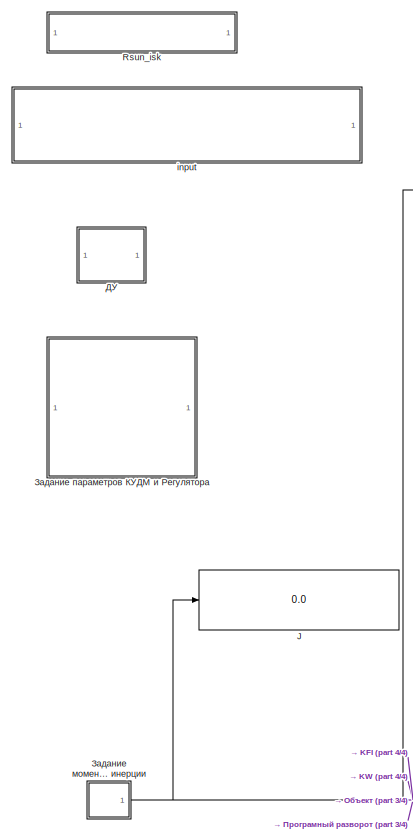
[diagram: root canvas - part 1/4, top left region]
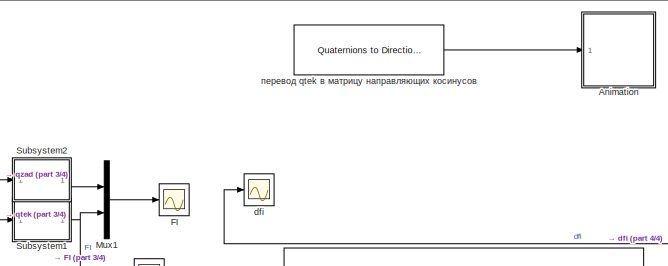
[diagram: root canvas - part 2/4, top center region]
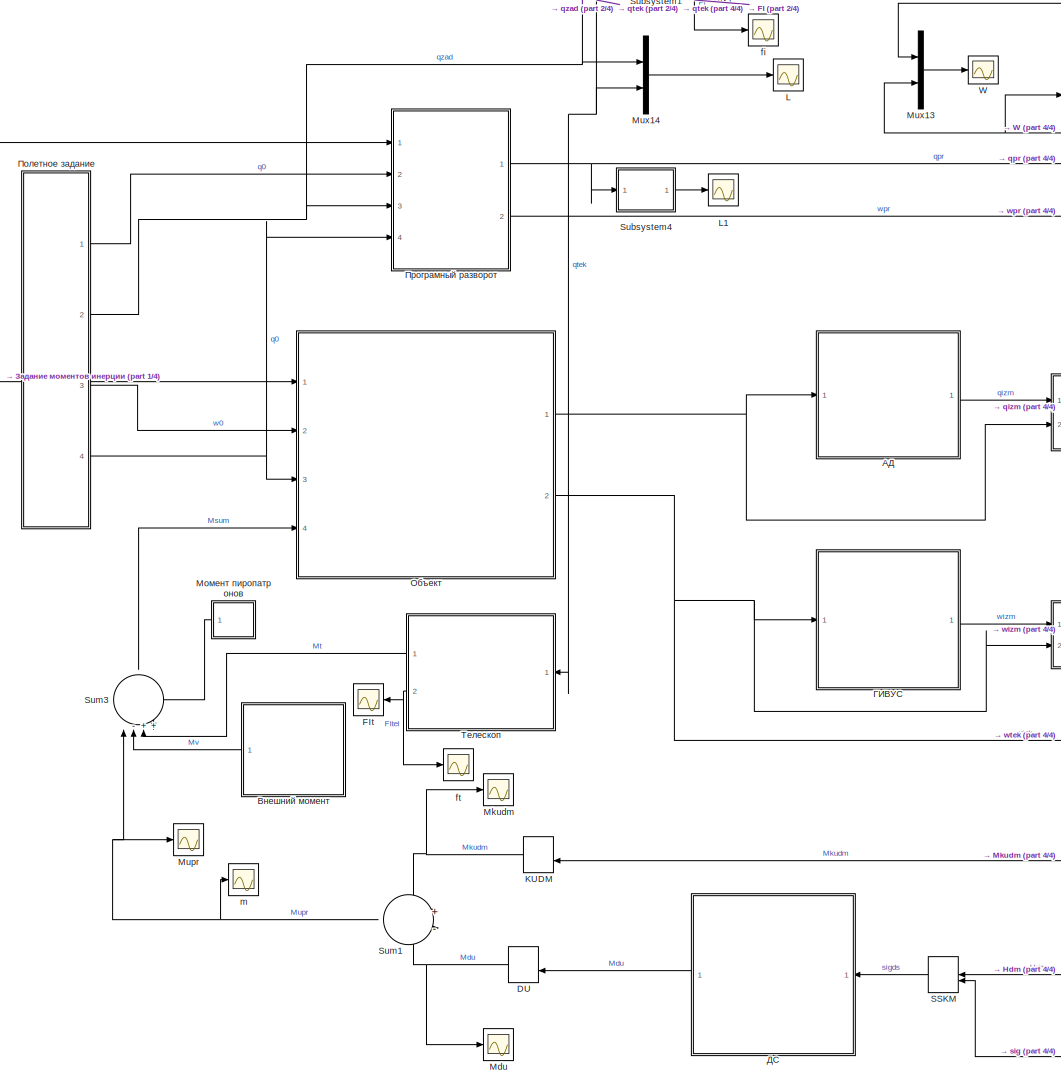
[diagram: root canvas - part 3/4, central region]
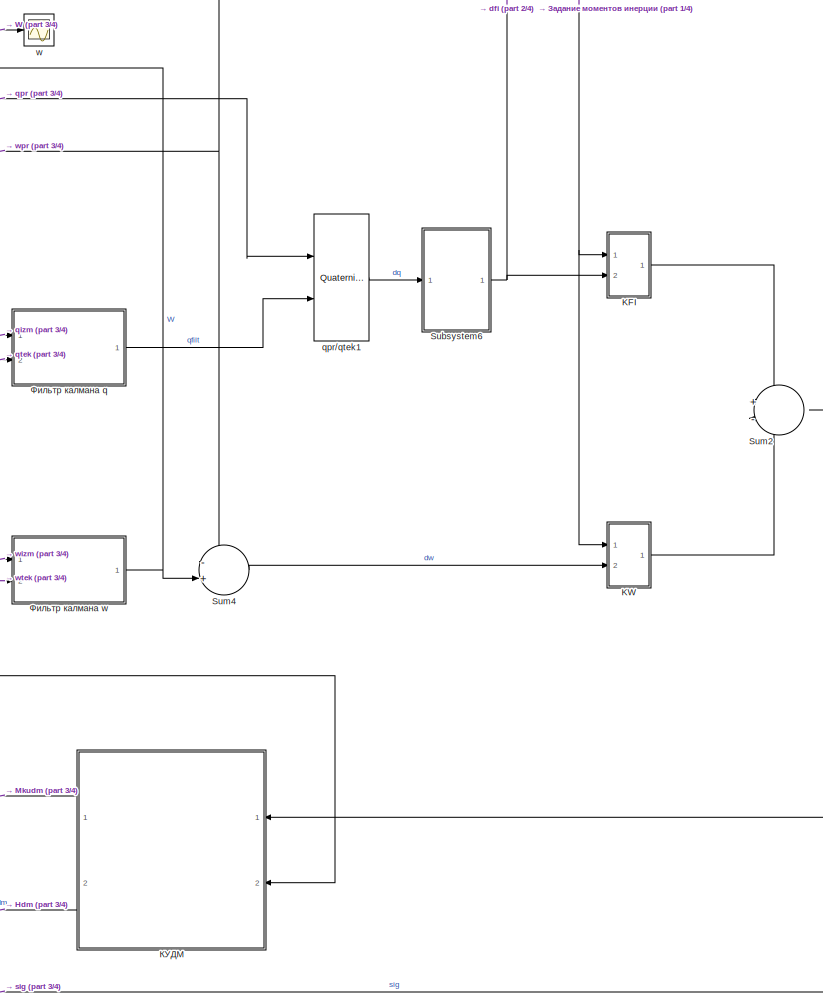
[diagram: root canvas - part 4/4, middle right region]
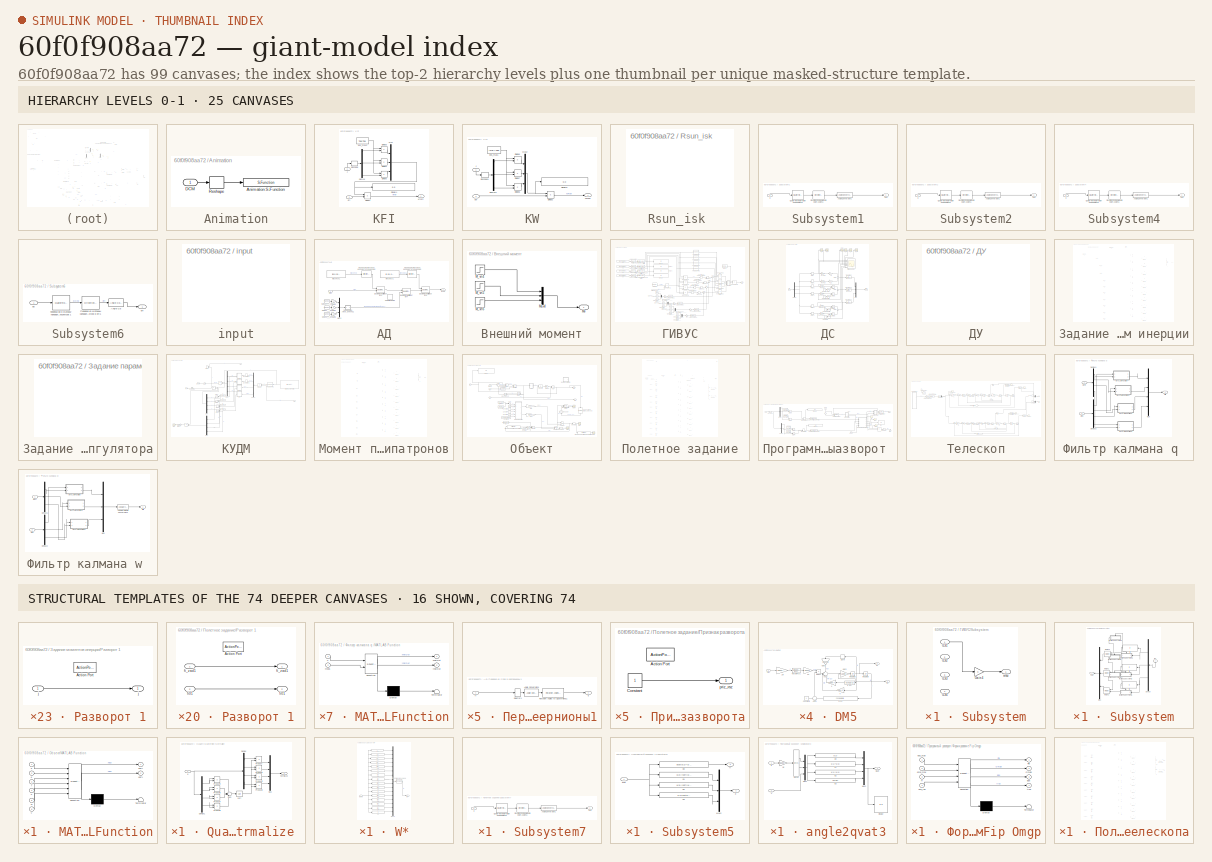
[diagram: thumbnail index - top-2 hierarchy levels (25 canvases) + 16 structural-template representatives of the remaining 74 canvases]
MODEL slx_60f0f908aa72
KIND model
BLOCK [SubSystem] Animation
  AncestorBlock = aerolibanim/6DoF Animation
  Commented = on
  Ports = [1]
  RequestExecContextInheritance = off
BLOCK [S-Function] Animation/Animation S-Function
  EnableBusSupport = off
  FunctionName = saeroanim
  Parameters = Config
  Ports = [1, 1]
BLOCK [Inport] Animation/DCM
  IconDisplay = Port number
BLOCK [Reshape] Animation/Reshape
  Ports = [1, 1]
BLOCK [ManualSwitch] DU
BLOCK [Scope] FI
  Floating = off
  LimitDataPoints = off
  NumInputPorts = 1
  Ports = [1]
  SampleInput = on
  SaveName = FI
  SaveToWorkspace = on
  ShowLegends = off
  TickLabels = on
  YMax = 30
BLOCK [Scope] FIt
  Commented = on
  Floating = off
  LimitDataPoints = off
  NumInputPorts = 1
  Ports = [1]
  SaveName = FIt
  SaveToWorkspace = on
  ShowLegends = off
  YMax = 100
  YMin = -20
BLOCK [Display] J
  Decimation = 1
  Ports = [1]
BLOCK [SubSystem] KFI
  Ports = [2, 1]
  RequestExecContextInheritance = off
BLOCK [Demux] KFI/Demux
  DisplayOption = bar
  Outputs = 9
  Ports = [1, 9]
BLOCK [Display] KFI/Display4
  Decimation = 1
  Ports = [1]
BLOCK [Product] KFI/Divide1
  InputSameDT = off
  Inputs = **
  OutDataTypeStr = Inherit: Inherit via internal rule
  Ports = [2, 1]
  RndMeth = Floor
  SaturateOnIntegerOverflow = off
BLOCK [Product] KFI/Divide3
  InputSameDT = off
  Inputs = /*
  OutDataTypeStr = Inherit: Inherit via internal rule
  Ports = [2, 1]
  RndMeth = Floor
  SaturateOnIntegerOverflow = off
BLOCK [Product] KFI/Divide4
  InputSameDT = off
  Inputs = /*
  OutDataTypeStr = Inherit: Inherit via internal rule
  Ports = [2, 1]
  RndMeth = Floor
  SaturateOnIntegerOverflow = off
BLOCK [Product] KFI/Divide5
  InputSameDT = off
  Inputs = /*
  OutDataTypeStr = Inherit: Inherit via internal rule
  Ports = [2, 1]
  RndMeth = Floor
  SaturateOnIntegerOverflow = off
BLOCK [Inport] KFI/J
  IconDisplay = Port number
BLOCK [Mux] KFI/Mux
  DisplayOption = bar
  Inputs = 3
  Ports = [3, 1]
BLOCK [Reshape] KFI/Reshape
  OutputDimensionality = Column vector (2-D)
  Ports = [1, 1]
BLOCK [Inport] KFI/dfi
  IconDisplay = Port number
  Port = 2
BLOCK [Constant] KFI/eps_max3
  Value = Tpp*Tpp
BLOCK [Outport] KFI/kfi*dfi
  IconDisplay = Port number
BLOCK [ManualSwitch] KUDM
  CurrentSetting = 0
BLOCK [SubSystem] KW
  Ports = [2, 1]
  RequestExecContextInheritance = off
BLOCK [Demux] KW/Demux1
  DisplayOption = bar
  Outputs = 9
  Ports = [1, 9]
BLOCK [Display] KW/Display5
  Decimation = 1
  Ports = [1]
BLOCK [Product] KW/Divide2
  InputSameDT = off
  Inputs = **
  OutDataTypeStr = Inherit: Inherit via internal rule
  Ports = [2, 1]
  RndMeth = Floor
  SaturateOnIntegerOverflow = off
BLOCK [Product] KW/Divide6
  InputSameDT = off
  Inputs = **
  OutDataTypeStr = Inherit: Inherit via internal rule
  Ports = [2, 1]
  RndMeth = Floor
  SaturateOnIntegerOverflow = off
BLOCK [Product] KW/Divide7
  InputSameDT = off
  Inputs = **
  OutDataTypeStr = Inherit: Inherit via internal rule
  Ports = [2, 1]
  RndMeth = Floor
  SaturateOnIntegerOverflow = off
BLOCK [Product] KW/Divide8
  InputSameDT = off
  Inputs = **
  OutDataTypeStr = Inherit: Inherit via internal rule
  Ports = [2, 1]
  RndMeth = Floor
  SaturateOnIntegerOverflow = off
BLOCK [Inport] KW/J
  IconDisplay = Port number
BLOCK [Mux] KW/Mux2
  DisplayOption = bar
  Inputs = 3
  Ports = [3, 1]
BLOCK [Reshape] KW/Reshape1
  OutputDimensionality = Column vector (2-D)
  Ports = [1, 1]
BLOCK [Inport] KW/dw
  IconDisplay = Port number
  Port = 2
BLOCK [Constant] KW/eps_max1
  Value = (2*E)/Tpp
BLOCK [Outport] KW/kw*dw
  IconDisplay = Port number
BLOCK [Scope] L
  Floating = off
  LimitDataPoints = off
  NumInputPorts = 1
  Ports = [1]
  SaveName = L
  SaveToWorkspace = on
  ShowLegends = off
  YMax = 1
  YMin = 0
BLOCK [Scope] L1
  Floating = off
  LimitDataPoints = off
  NumInputPorts = 1
  Ports = [1]
  SaveName = L1
  SaveToWorkspace = on
  ShowLegends = off
  YMax = 8
  YMin = 0
BLOCK [Scope] Mdu
  Floating = off
  LimitDataPoints = off
  NumInputPorts = 1
  Ports = [1]
  SaveName = Mdu
  SaveToWorkspace = on
  ShowLegends = off
  YMax = 1
  YMin = -0.2
BLOCK [Scope] Mkudm
  Floating = off
  LimitDataPoints = off
  NumInputPorts = 1
  Ports = [1]
  SaveName = Mkudm
  SaveToWorkspace = on
  ShowLegends = off
  YMax = 0.05
  YMin = -0.25
BLOCK [Scope] Mupr
  Floating = off
  LimitDataPoints = off
  NumInputPorts = 1
  Ports = [1]
  SaveName = Mupr
  SaveToWorkspace = on
  ShowLegends = off
  YMax = 1
  YMin = -0.2
BLOCK [Mux] Mux1
  DisplayOption = bar
  Inputs = 2
  Ports = [2, 1]
BLOCK [Mux] Mux13
  DisplayOption = bar
  Inputs = 2
  Ports = [2, 1]
BLOCK [Mux] Mux14
  DisplayOption = bar
  Inputs = 2
  Ports = [2, 1]
BLOCK [SubSystem] Rsun_isk 
  Ports = []
  RequestExecContextInheritance = off
BLOCK [ManualSwitch] SSKM
  CurrentSetting = 0
BLOCK [SubSystem] Subsystem1
  Ports = [1, 1]
  RequestExecContextInheritance = off
BLOCK [Reference] Subsystem1/Angle Conversion1  REF=aerolibconvert2/Angle Conversion
  IU = rad
  OU = deg
  Ports = [1, 1]
  SourceBlock = aerolibconvert2/Angle Conversion
  SourceType = Angle Conversion
BLOCK [Reference] Subsystem1/Direction Cosine Matrix to Euler Angles1  REF=aerolibobsolete/Direction Cosine Matrix to
Euler Angles
  Ports = [1, 1]
  SourceBlock = aerolibobsolete/Direction Cosine Matrix to\nEuler Angles
  SourceType = DCM2Euler
BLOCK [Reference] Subsystem1/Quaternions to Direction Cosine Matrix3  REF=aerolibtransform2/Quaternions to 
Direction Cosine Matrix
  Ports = [1, 1]
  SourceBlock = aerolibtransform2/Quaternions to \nDirection Cosine Matrix
  SourceType = Quaternion2DCM
BLOCK [Outport] Subsystem1/deg
  IconDisplay = Port number
BLOCK [Inport] Subsystem1/q
  IconDisplay = Port number
BLOCK [SubSystem] Subsystem2
  Ports = [1, 1]
  RequestExecContextInheritance = off
BLOCK [Reference] Subsystem2/Angle Conversion1  REF=aerolibconvert2/Angle Conversion
  IU = rad
  OU = deg
  Ports = [1, 1]
  SourceBlock = aerolibconvert2/Angle Conversion
  SourceType = Angle Conversion
BLOCK [Reference] Subsystem2/Direction Cosine Matrix to Euler Angles1  REF=aerolibobsolete/Direction Cosine Matrix to
Euler Angles
  Ports = [1, 1]
  SourceBlock = aerolibobsolete/Direction Cosine Matrix to\nEuler Angles
  SourceType = DCM2Euler
BLOCK [Reference] Subsystem2/Quaternions to Direction Cosine Matrix3  REF=aerolibtransform2/Quaternions to 
Direction Cosine Matrix
  Ports = [1, 1]
  SourceBlock = aerolibtransform2/Quaternions to \nDirection Cosine Matrix
  SourceType = Quaternion2DCM
BLOCK [Outport] Subsystem2/deg
  IconDisplay = Port number
BLOCK [Inport] Subsystem2/q
  IconDisplay = Port number
BLOCK [SubSystem] Subsystem4
  Ports = [1, 1]
  RequestExecContextInheritance = off
BLOCK [Reference] Subsystem4/Angle Conversion1  REF=aerolibconvert2/Angle Conversion
  IU = rad
  OU = deg
  Ports = [1, 1]
  SourceBlock = aerolibconvert2/Angle Conversion
  SourceType = Angle Conversion
BLOCK [Reference] Subsystem4/Direction Cosine Matrix to Euler Angles1  REF=aerolibobsolete/Direction Cosine Matrix to
Euler Angles
  Ports = [1, 1]
  SourceBlock = aerolibobsolete/Direction Cosine Matrix to\nEuler Angles
  SourceType = DCM2Euler
BLOCK [Reference] Subsystem4/Quaternions to Direction Cosine Matrix3  REF=aerolibtransform2/Quaternions to 
Direction Cosine Matrix
  Ports = [1, 1]
  SourceBlock = aerolibtransform2/Quaternions to \nDirection Cosine Matrix
  SourceType = Quaternion2DCM
BLOCK [Outport] Subsystem4/deg
  IconDisplay = Port number
BLOCK [Inport] Subsystem4/q
  IconDisplay = Port number
BLOCK [SubSystem] Subsystem6
  Ports = [1, 1]
  RequestExecContextInheritance = off
BLOCK [Reference] Subsystem6/Angle C5  REF=aerolibconvert2/Angle Conversion
  IU = rad
  OU = deg
  Ports = [1, 1]
  SourceBlock = aerolibconvert2/Angle Conversion
  SourceType = Angle Conversion
BLOCK [Outport] Subsystem6/dfi
  IconDisplay = Port number
BLOCK [Inport] Subsystem6/dq
  IconDisplay = Port number
BLOCK [Reference] Subsystem6/Перевод из матрицы направляющих косинусов в dfi1  REF=aerolibobsolete/Direction Cosine Matrix to
Euler Angles
  Ports = [1, 1]
  SourceBlock = aerolibobsolete/Direction Cosine Matrix to\nEuler Angles
  SourceType = DCM2Euler
BLOCK [Reference] Subsystem6/перевод dq в матрицу направляющих косинусов 1  REF=aerolibtransform2/Quaternions to 
Direction Cosine Matrix
  Ports = [1, 1]
  SourceBlock = aerolibtransform2/Quaternions to \nDirection Cosine Matrix
  SourceType = Quaternion2DCM
BLOCK [Sum] Sum1
  IconShape = round
  InputSameDT = off
  Inputs = +-
  OutDataTypeStr = Inherit: Inherit via internal rule
  Ports = [2, 1]
  SaturateOnIntegerOverflow = off
BLOCK [Sum] Sum2
  IconShape = round
  InputSameDT = off
  Inputs = +-
  OutDataTypeStr = Inherit: Inherit via internal rule
  Ports = [2, 1]
  SaturateOnIntegerOverflow = off
BLOCK [Sum] Sum3
  IconShape = round
  InputSameDT = off
  Inputs = |-+++
  OutDataTypeStr = Inherit: Inherit via internal rule
  Ports = [4, 1]
  SaturateOnIntegerOverflow = off
BLOCK [Sum] Sum4
  IconShape = round
  InputSameDT = off
  Inputs = -+|
  OutDataTypeStr = Inherit: Inherit via internal rule
  Ports = [2, 1]
  SaturateOnIntegerOverflow = off
BLOCK [Scope] W
  Floating = off
  LimitDataPoints = off
  NumInputPorts = 1
  Ports = [1]
  SaveName = W
  SaveToWorkspace = on
  ShowLegends = off
  TimeRange = 350
  YMax = 0.25
  YMin = -0.05
BLOCK [Scope] dfi
  Floating = off
  LimitDataPoints = off
  NumInputPorts = 1
  Ports = [1]
  SaveName = dfi
  SaveToWorkspace = on
  ShowLegends = off
  YMax = 0.1
  YMin = -0.2
BLOCK [Scope] fi
  Floating = off
  LimitDataPoints = off
  NumInputPorts = 1
  Ports = [1]
  SaveName = ScopeData2
  ShowLegends = on
  YMax = 35
BLOCK [Scope] ft
  Commented = on
  Floating = off
  LegendLocations = 0.69769     0.68662      0.1721     0.12321
  LimitDataPoints = off
  NumInputPorts = 1
  Ports = [1]
  SaveName = ScopeData8
  ShowLegends = on
  YMax = 200
  YMin = -50
BLOCK [SubSystem] input
  Ports = []
  RequestExecContextInheritance = off
BLOCK [Scope] m
  Floating = off
  LimitDataPoints = off
  NumInputPorts = 1
  Ports = [1]
  SaveName = ScopeData7
  ShowLegends = on
  TimeRange = 400
  YMax = 0.25
  YMin = -0.25
BLOCK [Reference] qpr//qtek1  REF=aerolibutil/Quaternion
Division
  Ports = [2, 1]
  SourceBlock = aerolibutil/Quaternion\nDivision
  SourceType = Quaternion Division
BLOCK [Scope] w
  Floating = off
  LimitDataPoints = off
  NumInputPorts = 1
  Ports = [1]
  SaveName = ScopeData5
  ShowLegends = on
  YMax = 0.4
  YMin = -0.4
BLOCK [SubSystem] АД
  Ports = [1, 1]
  RequestExecContextInheritance = off
BLOCK [Gain] АД/Gain3
  Gain = 3
  OutDataTypeStr = Inherit: Inherit via internal rule
  ParamDataTypeStr = Inherit: Inherit via internal rule
  SaturateOnIntegerOverflow = off
BLOCK [Gain] АД/Gain4
  Gain = 3
  OutDataTypeStr = Inherit: Inherit via internal rule
  ParamDataTypeStr = Inherit: Inherit via internal rule
  SaturateOnIntegerOverflow = off
BLOCK [Gain] АД/Gain5
  Gain = 3
  OutDataTypeStr = Inherit: Inherit via internal rule
  ParamDataTypeStr = Inherit: Inherit via internal rule
  SaturateOnIntegerOverflow = off
BLOCK [Mux] АД/Mux2
  DisplayOption = bar
  Inputs = 3
  Ports = [3, 1]
BLOCK [RandomNumber] АД/Noise1____5''1
  Seed = 23456
  Variance = 0.0013888888888889
BLOCK [RandomNumber] АД/Noise2___5''1
  Seed = 23455
  Variance = 0.0013888888888889
BLOCK [RandomNumber] АД/Noise3___5''1
  Seed = 23457
  Variance = 0.0013888888888889
BLOCK [Reference] АД/Quaternion Multiplication3  REF=aerolibutil/Quaternion
Multiplication
  Ports = [2, 1]
  SourceBlock = aerolibutil/Quaternion\nMultiplication
  SourceType = Quaternion Multiplication
BLOCK [Reference] АД/Quaternion Multiplication4  REF=aerolibutil/Quaternion
Multiplication
  Ports = [2, 1]
  SourceBlock = aerolibutil/Quaternion\nMultiplication
  SourceType = Quaternion Multiplication
BLOCK [Reference] АД/Quaternion Multiplication5  REF=aerolibutil/Quaternion
Multiplication
  Ports = [2, 1]
  SourceBlock = aerolibutil/Quaternion\nMultiplication
  SourceType = Quaternion Multiplication
BLOCK [ZeroOrderHold] АД/Zero-Order Hold8
  SampleTime = 0.1
BLOCK [Outport] АД/q тек
  IconDisplay = Port number
BLOCK [Inport] АД/qtek 
  IconDisplay = Port number
BLOCK [Constant] АД/Мвск-пск 1
  Value = [0 0 1;-0.5 0.87 0;-0.87 -0.5 0]
BLOCK [Constant] АД/Мпск-вск1
  Value = [0 -0.5 -0.85; 0 0.85 -0.5; 1 0 0]
BLOCK [Reference] АД/Перевод из матрицы направляющих косинусов в кватернионы2  REF=aerolibtransform2/Direction Cosine Matrix 
to Quaternions
  Ports = [1, 1]
  SourceBlock = aerolibtransform2/Direction Cosine Matrix \nto Quaternions
  SourceType = DCM2Quaternion
BLOCK [Reference] АД/Перевод из матрицы направляющих косинусов в кватернионы3  REF=aerolibtransform2/Direction Cosine Matrix 
to Quaternions
  Ports = [1, 1]
  SourceBlock = aerolibtransform2/Direction Cosine Matrix \nto Quaternions
  SourceType = DCM2Quaternion
BLOCK [SubSystem] АД/Перевод из углов в кватернионы1
  Ports = [1, 1]
  RequestExecContextInheritance = off
BLOCK [Reference] АД/Перевод из углов в кватернионы1/Angle Conversion1  REF=aerolibconvert2/Angle Conversion
  IU = deg
  OU = rad
  Ports = [1, 1]
  SourceBlock = aerolibconvert2/Angle Conversion
  SourceType = Angle Conversion
BLOCK [Reference] АД/Перевод из углов в кватернионы1/Rotation Angles to Quaternions1  REF=aerolibtransform2/Rotation Angles to Quaternions
  AttributesFormatString = Rotation Order: %<rotationOrder>
  Ports = [1, 1]
  SourceBlock = aerolibtransform2/Rotation Angles to Quaternions
  SourceType = Ang2Quat
  rotationOrder = ZYX
BLOCK [Selector] АД/Перевод из углов в кватернионы1/Selector1
  Indices = [3 2 1]
  InputPortWidth = 3
  Ports = [1, 1]
BLOCK [Inport] АД/Перевод из углов в кватернионы1/fi
  IconDisplay = Port number
BLOCK [Outport] АД/Перевод из углов в кватернионы1/q
  IconDisplay = Port number
BLOCK [SubSystem] Внешний момент
  Ports = [0, 1]
  RequestExecContextInheritance = off
BLOCK [Step] Внешний момент/M_vn4
  After = 0.00001
  SampleTime = 0
  Time = 0
BLOCK [Step] Внешний момент/M_vn5
  After = 0.00008
  SampleTime = 0
  Time = 0
BLOCK [Step] Внешний момент/M_vn6
  After = 0.00006
  SampleTime = 0
  Time = 0
BLOCK [Mux] Внешний момент/Mux4
  DisplayOption = bar
  Inputs = 3
  Ports = [3, 1]
BLOCK [Outport] Внешний момент/Mv 
  IconDisplay = Port number
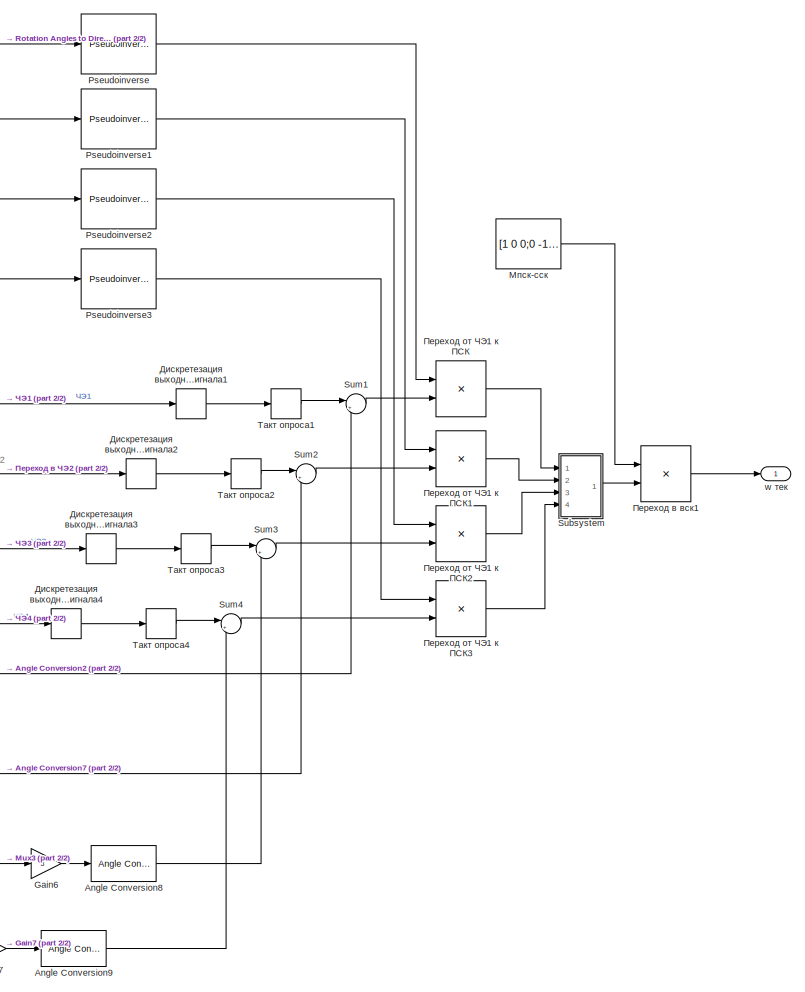
[diagram: ГИВУС - part 1/2, right side, full height]
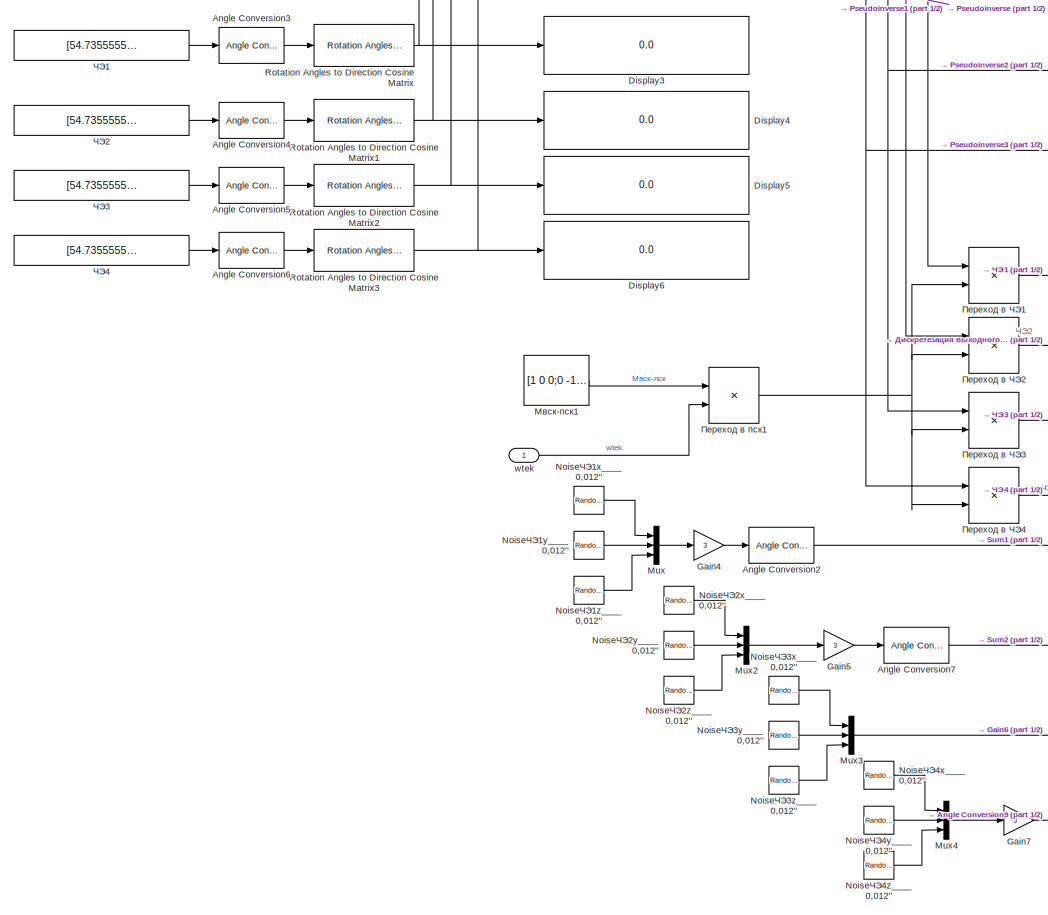
[diagram: ГИВУС - part 2/2, left side, full height]
BLOCK [SubSystem] ГИВУС
  Ports = [1, 1]
  RequestExecContextInheritance = off
BLOCK [Reference] ГИВУС/Angle Conversion2  REF=aerolibconvert2/Angle Conversion
  IU = deg
  OU = rad
  Ports = [1, 1]
  SourceBlock = aerolibconvert2/Angle Conversion
  SourceType = Angle Conversion
BLOCK [Reference] ГИВУС/Angle Conversion3  REF=aerolibconvert2/Angle Conversion
  IU = deg
  OU = rad
  Ports = [1, 1]
  SourceBlock = aerolibconvert2/Angle Conversion
  SourceType = Angle Conversion
BLOCK [Reference] ГИВУС/Angle Conversion4  REF=aerolibconvert2/Angle Conversion
  IU = deg
  OU = rad
  Ports = [1, 1]
  SourceBlock = aerolibconvert2/Angle Conversion
  SourceType = Angle Conversion
BLOCK [Reference] ГИВУС/Angle Conversion5  REF=aerolibconvert2/Angle Conversion
  IU = deg
  OU = rad
  Ports = [1, 1]
  SourceBlock = aerolibconvert2/Angle Conversion
  SourceType = Angle Conversion
BLOCK [Reference] ГИВУС/Angle Conversion6  REF=aerolibconvert2/Angle Conversion
  IU = deg
  OU = rad
  Ports = [1, 1]
  SourceBlock = aerolibconvert2/Angle Conversion
  SourceType = Angle Conversion
BLOCK [Reference] ГИВУС/Angle Conversion7  REF=aerolibconvert2/Angle Conversion
  IU = deg
  OU = rad
  Ports = [1, 1]
  SourceBlock = aerolibconvert2/Angle Conversion
  SourceType = Angle Conversion
BLOCK [Reference] ГИВУС/Angle Conversion8  REF=aerolibconvert2/Angle Conversion
  IU = deg
  OU = rad
  Ports = [1, 1]
  SourceBlock = aerolibconvert2/Angle Conversion
  SourceType = Angle Conversion
BLOCK [Reference] ГИВУС/Angle Conversion9  REF=aerolibconvert2/Angle Conversion
  IU = deg
  OU = rad
  Ports = [1, 1]
  SourceBlock = aerolibconvert2/Angle Conversion
  SourceType = Angle Conversion
BLOCK [Display] ГИВУС/Display3
  Decimation = 1
  Ports = [1]
BLOCK [Display] ГИВУС/Display4
  Decimation = 1
  Ports = [1]
BLOCK [Display] ГИВУС/Display5
  Decimation = 1
  Ports = [1]
BLOCK [Display] ГИВУС/Display6
  Decimation = 1
  Ports = [1]
BLOCK [Gain] ГИВУС/Gain4
  Gain = 3
  OutDataTypeStr = Inherit: Inherit via internal rule
  ParamDataTypeStr = Inherit: Inherit via internal rule
  SaturateOnIntegerOverflow = off
BLOCK [Gain] ГИВУС/Gain5
  Gain = 3
  OutDataTypeStr = Inherit: Inherit via internal rule
  ParamDataTypeStr = Inherit: Inherit via internal rule
  SaturateOnIntegerOverflow = off
BLOCK [Gain] ГИВУС/Gain6
  Gain = 3
  OutDataTypeStr = Inherit: Inherit via internal rule
  ParamDataTypeStr = Inherit: Inherit via internal rule
  SaturateOnIntegerOverflow = off
BLOCK [Gain] ГИВУС/Gain7
  Gain = 3
  OutDataTypeStr = Inherit: Inherit via internal rule
  ParamDataTypeStr = Inherit: Inherit via internal rule
  SaturateOnIntegerOverflow = off
BLOCK [Mux] ГИВУС/Mux
  DisplayOption = bar
  Inputs = 3
  Ports = [3, 1]
BLOCK [Mux] ГИВУС/Mux2
  DisplayOption = bar
  Inputs = 3
  Ports = [3, 1]
BLOCK [Mux] ГИВУС/Mux3
  DisplayOption = bar
  Inputs = 3
  Ports = [3, 1]
BLOCK [Mux] ГИВУС/Mux4
  DisplayOption = bar
  Inputs = 3
  Ports = [3, 1]
BLOCK [RandomNumber] ГИВУС/NoiseЧЭ1x____0,012''
  Seed = 23456
  Variance = 0.0000033333333333333
BLOCK [RandomNumber] ГИВУС/NoiseЧЭ1y____0,012''
  Seed = 23456
  Variance = 0.0000033333333333333
BLOCK [RandomNumber] ГИВУС/NoiseЧЭ1z____0,012''
  Seed = 23456
  Variance = 0.0000033333333333333
BLOCK [RandomNumber] ГИВУС/NoiseЧЭ2x____0,012''
  Seed = 23456
  Variance = 0.0000033333333333333
BLOCK [RandomNumber] ГИВУС/NoiseЧЭ2y____0,012''
  Seed = 23456
  Variance = 0.0000033333333333333
BLOCK [RandomNumber] ГИВУС/NoiseЧЭ2z____0,012''
  Seed = 23456
  Variance = 0.0000033333333333333
BLOCK [RandomNumber] ГИВУС/NoiseЧЭ3x____0,012''
  Seed = 23456
  Variance = 0.0000033333333333333
BLOCK [RandomNumber] ГИВУС/NoiseЧЭ3y____0,012''
  Seed = 23456
  Variance = 0.0000033333333333333
BLOCK [RandomNumber] ГИВУС/NoiseЧЭ3z____0,012''
  Seed = 23456
  Variance = 0.0000033333333333333
BLOCK [RandomNumber] ГИВУС/NoiseЧЭ4x____0,012''
  Seed = 23456
  Variance = 0.0000033333333333333
BLOCK [RandomNumber] ГИВУС/NoiseЧЭ4y____0,012''
  Seed = 23456
  Variance = 0.0000033333333333333
BLOCK [RandomNumber] ГИВУС/NoiseЧЭ4z____0,012''
  Seed = 23456
  Variance = 0.0000033333333333333
BLOCK [Reference] ГИВУС/Pseudoinverse  REF=dspinverses/Pseudoinverse
  Ports = [1, 1]
  SourceBlock = dspinverses/Pseudoinverse
  SourceType = Pseudoinverse
  wanterr = off
BLOCK [Reference] ГИВУС/Pseudoinverse1  REF=dspinverses/Pseudoinverse
  Ports = [1, 1]
  SourceBlock = dspinverses/Pseudoinverse
  SourceType = Pseudoinverse
  wanterr = off
BLOCK [Reference] ГИВУС/Pseudoinverse2  REF=dspinverses/Pseudoinverse
  Ports = [1, 1]
  SourceBlock = dspinverses/Pseudoinverse
  SourceType = Pseudoinverse
  wanterr = off
BLOCK [Reference] ГИВУС/Pseudoinverse3  REF=dspinverses/Pseudoinverse
  Ports = [1, 1]
  SourceBlock = dspinverses/Pseudoinverse
  SourceType = Pseudoinverse
  wanterr = off
BLOCK [Reference] ГИВУС/Rotation Angles to Direction Cosine Matrix  REF=aerolibtransform2/Rotation Angles to
Direction Cosine Matrix
  AttributesFormatString = Rotation Order: %<rotationOrder>
  Ports = [1, 1]
  SourceBlock = aerolibtransform2/Rotation Angles to\nDirection Cosine Matrix
  SourceType = Ang2DCM
  rotationOrder = XYZ
BLOCK [Reference] ГИВУС/Rotation Angles to Direction Cosine Matrix1  REF=aerolibtransform2/Rotation Angles to
Direction Cosine Matrix
  AttributesFormatString = Rotation Order: %<rotationOrder>
  Ports = [1, 1]
  SourceBlock = aerolibtransform2/Rotation Angles to\nDirection Cosine Matrix
  SourceType = Ang2DCM
  rotationOrder = XYZ
BLOCK [Reference] ГИВУС/Rotation Angles to Direction Cosine Matrix2  REF=aerolibtransform2/Rotation Angles to
Direction Cosine Matrix
  AttributesFormatString = Rotation Order: %<rotationOrder>
  Ports = [1, 1]
  SourceBlock = aerolibtransform2/Rotation Angles to\nDirection Cosine Matrix
  SourceType = Ang2DCM
  rotationOrder = XYZ
BLOCK [Reference] ГИВУС/Rotation Angles to Direction Cosine Matrix3  REF=aerolibtransform2/Rotation Angles to
Direction Cosine Matrix
  AttributesFormatString = Rotation Order: %<rotationOrder>
  Ports = [1, 1]
  SourceBlock = aerolibtransform2/Rotation Angles to\nDirection Cosine Matrix
  SourceType = Ang2DCM
  rotationOrder = XYZ
BLOCK [SubSystem] ГИВУС/Subsystem
  Ports = [4, 1]
  RequestExecContextInheritance = off
BLOCK [Gain] ГИВУС/Subsystem/Gain4
  OutDataTypeStr = Inherit: Inherit via internal rule
  ParamDataTypeStr = Inherit: Inherit via internal rule
  SaturateOnIntegerOverflow = off
BLOCK [Outport] ГИВУС/Subsystem/wпск
  IconDisplay = Port number
BLOCK [Inport] ГИВУС/Subsystem/ЧЭ1
  IconDisplay = Port number
BLOCK [Inport] ГИВУС/Subsystem/ЧЭ2
  IconDisplay = Port number
  Port = 2
BLOCK [Inport] ГИВУС/Subsystem/ЧЭ3
  IconDisplay = Port number
  Port = 3
BLOCK [Inport] ГИВУС/Subsystem/ЧЭ4
  IconDisplay = Port number
  Port = 4
BLOCK [Sum] ГИВУС/Sum1
  IconShape = round
  InputSameDT = off
  Inputs = |++
  OutDataTypeStr = Inherit: Inherit via internal rule
  Ports = [2, 1]
  SaturateOnIntegerOverflow = off
BLOCK [Sum] ГИВУС/Sum2
  IconShape = round
  InputSameDT = off
  Inputs = |++
  OutDataTypeStr = Inherit: Inherit via internal rule
  Ports = [2, 1]
  SaturateOnIntegerOverflow = off
BLOCK [Sum] ГИВУС/Sum3
  IconShape = round
  InputSameDT = off
  Inputs = |++
  OutDataTypeStr = Inherit: Inherit via internal rule
  Ports = [2, 1]
  SaturateOnIntegerOverflow = off
BLOCK [Sum] ГИВУС/Sum4
  IconShape = round
  InputSameDT = off
  Inputs = |++
  OutDataTypeStr = Inherit: Inherit via internal rule
  Ports = [2, 1]
  SaturateOnIntegerOverflow = off
BLOCK [Outport] ГИВУС/w тек
  IconDisplay = Port number
BLOCK [Inport] ГИВУС/wtek
  IconDisplay = Port number
BLOCK [Quantizer] ГИВУС/Дискретезация выходного сигнала1
  QuantizationInterval = 0.000000048481368110954
BLOCK [Quantizer] ГИВУС/Дискретезация выходного сигнала2
  QuantizationInterval = 0.000000048481368110954
BLOCK [Quantizer] ГИВУС/Дискретезация выходного сигнала3
  QuantizationInterval = 0.000000048481368110954
BLOCK [Quantizer] ГИВУС/Дискретезация выходного сигнала4
  QuantizationInterval = 0.000000048481368110954
BLOCK [Constant] ГИВУС/Мвск-пск1
  Value = [1 0 0;0 -1 0;0 0 -1]
  VectorParams1D = off
BLOCK [Constant] ГИВУС/Мпск-сск
  Value = [1 0 0;0 -1 0;0 0 -1]
  VectorParams1D = off
BLOCK [Product] ГИВУС/Переход в ЧЭ1
  Multiplication = Matrix(*)
  Ports = [2, 1]
BLOCK [Product] ГИВУС/Переход в ЧЭ2
  Multiplication = Matrix(*)
  Ports = [2, 1]
BLOCK [Product] ГИВУС/Переход в ЧЭ3
  Multiplication = Matrix(*)
  Ports = [2, 1]
BLOCK [Product] ГИВУС/Переход в ЧЭ4
  Multiplication = Matrix(*)
  Ports = [2, 1]
BLOCK [Product] ГИВУС/Переход в вск1
  Multiplication = Matrix(*)
  Ports = [2, 1]
BLOCK [Product] ГИВУС/Переход в пск1
  Multiplication = Matrix(*)
  Ports = [2, 1]
BLOCK [Product] ГИВУС/Переход от ЧЭ1 к ПСК
  Multiplication = Matrix(*)
  Ports = [2, 1]
BLOCK [Product] ГИВУС/Переход от ЧЭ1 к ПСК1
  Multiplication = Matrix(*)
  Ports = [2, 1]
BLOCK [Product] ГИВУС/Переход от ЧЭ1 к ПСК2
  Multiplication = Matrix(*)
  Ports = [2, 1]
BLOCK [Product] ГИВУС/Переход от ЧЭ1 к ПСК3
  Multiplication = Matrix(*)
  Ports = [2, 1]
BLOCK [TransportDelay] ГИВУС/Такт опроса1
  DelayTime = 0.1
  Ports = [1, 1]
BLOCK [TransportDelay] ГИВУС/Такт опроса2
  DelayTime = 0.1
  Ports = [1, 1]
BLOCK [TransportDelay] ГИВУС/Такт опроса3
  DelayTime = 0.1
  Ports = [1, 1]
BLOCK [TransportDelay] ГИВУС/Такт опроса4
  DelayTime = 0.1
  Ports = [1, 1]
BLOCK [Constant] ГИВУС/ЧЭ1
  Value = [54.73555555555555 45 45]
BLOCK [Constant] ГИВУС/ЧЭ2
  Value = [54.73555555555555 -45 45]
BLOCK [Constant] ГИВУС/ЧЭ3
  Value = [54.73555555555555 -45 -45]
BLOCK [Constant] ГИВУС/ЧЭ4
  Value = [54.73555555555555 45 -45]
BLOCK [SubSystem] ДC
  Ports = [1, 1]
  RequestExecContextInheritance = off
BLOCK [Scope] ДC/10_11
  Floating = off
  LimitDataPoints = off
  NumInputPorts = 1
  Ports = [1]
  SaveName = P1011
  SaveToWorkspace = on
  ShowLegends = off
BLOCK [Scope] ДC/11_12
  Floating = off
  LimitDataPoints = off
  NumInputPorts = 1
  Ports = [1]
  SaveName = P1112
  SaveToWorkspace = on
  ShowLegends = off
BLOCK [Scope] ДC/1_5
  Floating = off
  LimitDataPoints = off
  NumInputPorts = 1
  Ports = [1]
  SaveName = P15
  SaveToWorkspace = on
  ShowLegends = off
  YMax = 1
  YMin = 0
  ZoomMode = yonly
BLOCK [Scope] ДC/2_6
  Floating = off
  LimitDataPoints = off
  NumInputPorts = 1
  Ports = [1]
  SaveName = P26
  SaveToWorkspace = on
  ShowLegends = off
  YMax = 0
  YMin = -1
BLOCK [Scope] ДC/4_9
  Floating = off
  LimitDataPoints = off
  NumInputPorts = 1
  Ports = [1]
  SaveName = P49
  SaveToWorkspace = on
  ShowLegends = off
BLOCK [Scope] ДC/9_12
  Floating = off
  LimitDataPoints = off
  NumInputPorts = 1
  Ports = [1]
  SaveName = P912
  SaveToWorkspace = on
  ShowLegends = off
BLOCK [Constant] ДC/Constant
  Value = L
BLOCK [Constant] ДC/Constant1
  Value = L
BLOCK [Constant] ДC/Constant2
  Value = L
BLOCK [Constant] ДC/Constant3
  Value = L
BLOCK [Demux] ДC/Demux
  DisplayOption = bar
  Outputs = 3
  Ports = [1, 3]
BLOCK [Product] ДC/Divide
  InputSameDT = off
  Inputs = */
  OutDataTypeStr = Inherit: Inherit via internal rule
  Ports = [2, 1]
  RndMeth = Floor
  SaturateOnIntegerOverflow = off
BLOCK [Product] ДC/Divide1
  InputSameDT = off
  Inputs = */
  OutDataTypeStr = Inherit: Inherit via internal rule
  Ports = [2, 1]
  RndMeth = Floor
  SaturateOnIntegerOverflow = off
BLOCK [Product] ДC/Divide2
  InputSameDT = off
  Inputs = */
  OutDataTypeStr = Inherit: Inherit via internal rule
  Ports = [2, 1]
  RndMeth = Floor
  SaturateOnIntegerOverflow = off
BLOCK [Product] ДC/Divide3
  InputSameDT = off
  Inputs = */
  OutDataTypeStr = Inherit: Inherit via internal rule
  Ports = [2, 1]
  RndMeth = Floor
  SaturateOnIntegerOverflow = off
BLOCK [Gain] ДC/L, Н
  Gain = L
BLOCK [Gain] ДC/L, Н1
  Gain = L
BLOCK [Outport] ДC/Mdu
  IconDisplay = Port number
BLOCK [Mux] ДC/Mux
  DisplayOption = bar
  Inputs = 3
  Ports = [3, 1]
BLOCK [Gain] ДC/P1+P5, Н
  Gain = P+P
BLOCK [Gain] ДC/P10+P11, Н2
  Gain = P+P
BLOCK [Gain] ДC/P11+P12, Н
  Gain = P+P
BLOCK [Gain] ДC/P2+P6, Н
  Gain = P+P
BLOCK [Gain] ДC/P4+P9, Н
  Gain = P+P
BLOCK [Gain] ДC/P9+P12, Н2
  Gain = P+P
BLOCK [Relay] ДC/Relay
  InputProcessing = Elements as channels (sample based)
  OffSwitchValue = eps_max
  OnOutputValue = y_out
  OnSwitchValue = eps_min
BLOCK [Relay] ДC/Relay1
  InputProcessing = Elements as channels (sample based)
  OffOutputValue = -y_out
  OffSwitchValue = -eps_min
  OnOutputValue = 0
  OnSwitchValue = -eps_max
BLOCK [Relay] ДC/Relay2
  InputProcessing = Elements as channels (sample based)
  OffSwitchValue = eps_max
  OnOutputValue = y_out
  OnSwitchValue = eps_min
BLOCK [Relay] ДC/Relay3
  InputProcessing = Elements as channels (sample based)
  OffOutputValue = -y_out
  OffSwitchValue = -eps_min
  OnOutputValue = 0
  OnSwitchValue = -eps_max
BLOCK [Relay] ДC/Relay4
  InputProcessing = Elements as channels (sample based)
  OffSwitchValue = eps_max
  OnOutputValue = y_out
  OnSwitchValue = eps_min
BLOCK [Relay] ДC/Relay5
  InputProcessing = Elements as channels (sample based)
  OffOutputValue = -y_out
  OffSwitchValue = -eps_min
  OnOutputValue = 0
  OnSwitchValue = -eps_max
BLOCK [Sqrt] ДC/Sqrt
BLOCK [Sqrt] ДC/Sqrt1
BLOCK [Sqrt] ДC/Sqrt2
BLOCK [Sqrt] ДC/Sqrt3
BLOCK [Sum] ДC/Sum1
  IconShape = round
  InputSameDT = off
  OutDataTypeStr = Inherit: Inherit via internal rule
  Ports = [2, 1]
  SaturateOnIntegerOverflow = off
BLOCK [Sum] ДC/Sum2
  IconShape = round
  InputSameDT = off
  OutDataTypeStr = Inherit: Inherit via internal rule
  Ports = [2, 1]
  SaturateOnIntegerOverflow = off
BLOCK [Sum] ДC/Sum3
  IconShape = round
  InputSameDT = off
  OutDataTypeStr = Inherit: Inherit via internal rule
  Ports = [2, 1]
  SaturateOnIntegerOverflow = off
BLOCK [TransferFcn] ДC/Transfer Fcn
  Denominator = [Td 1]
BLOCK [TransferFcn] ДC/Transfer Fcn1
  Denominator = [Td 1]
BLOCK [TransferFcn] ДC/Transfer Fcn2
  Denominator = [Td 1]
BLOCK [Inport] ДC/sig
  IconDisplay = Port number
BLOCK [Scope] ДC/включение ду
  Floating = off
  LimitDataPoints = off
  NumInputPorts = 6
  Ports = [6]
  SampleTime = 0
  SaveName = M12
  ShowLegends = off
  TimeRange = 500
  YMax = 1~1~1~1~1~1
  YMin = -1~-1~-1~-1~-1~-1
BLOCK [SubSystem] ДУ
  Ports = []
  RequestExecContextInheritance = off
BLOCK [SubSystem] Задание моментов инерции
  Ports = [0, 1]
  RequestExecContextInheritance = off
BLOCK [Clock] Задание моментов инерции/Clock1
BLOCK [If] Задание моментов инерции/If1
  IfExpression = (u1 == u2(1))
  NumInputs = 2
  Ports = [2, 1]
  ShowElse = off
BLOCK [If] Задание моментов инерции/If10
  IfExpression = (u1 == u2(10))
  NumInputs = 2
  Ports = [2, 1]
  ShowElse = off
BLOCK [If] Задание моментов инерции/If2
  IfExpression = (u1 == u2(2))
  NumInputs = 2
  Ports = [2, 1]
  ShowElse = off
BLOCK [If] Задание моментов инерции/If3
  IfExpression = (u1 == u2(3))
  NumInputs = 2
  Ports = [2, 1]
  ShowElse = off
BLOCK [If] Задание моментов инерции/If4
  IfExpression = (u1 == u2(4))
  NumInputs = 2
  Ports = [2, 1]
  ShowElse = off
BLOCK [If] Задание моментов инерции/If5
  IfExpression = (u1 == u2(5))
  NumInputs = 2
  Ports = [2, 1]
  ShowElse = off
BLOCK [If] Задание моментов инерции/If6
  IfExpression = (u1 == u2(6))
  NumInputs = 2
  Ports = [2, 1]
  ShowElse = off
BLOCK [If] Задание моментов инерции/If7
  IfExpression = (u1 == u2(7))
  NumInputs = 2
  Ports = [2, 1]
  ShowElse = off
BLOCK [If] Задание моментов инерции/If8
  IfExpression = (u1 == u2(8))
  NumInputs = 2
  Ports = [2, 1]
  ShowElse = off
BLOCK [If] Задание моментов инерции/If9
  IfExpression = (u1 == u2(9))
  NumInputs = 2
  Ports = [2, 1]
  ShowElse = off
BLOCK [Outport] Задание моментов инерции/J
  IconDisplay = Port number
BLOCK [Constant] Задание моментов инерции/J1
  Value = [3500 -69 2;-69 2100 -21;2 -21 1900]
BLOCK [Constant] Задание моментов инерции/J1 
  Value = [12469.75 3313.11 5894.05;3312.11 13989.03 4697.86;5894.05 4697.86 8023.73]
BLOCK [Constant] Задание моментов инерции/J10
  Value = [3500 -69 2;-69 2100 -21;2 -21 1900]
BLOCK [Constant] Задание моментов инерции/J2
  Value = [10734.72 3180.77 4803.85;3180.77 11518.24 4504.76;4803.85 4504.76 7226.24]
BLOCK [Constant] Задание моментов инерции/J3
  Value = [588.32 2.55 -52.62; 2.55 601.27 -9.29; -52.62 -9.29 27.34]
BLOCK [Constant] Задание моментов инерции/J4
  Value = [3500 -69 2;-69 2100 -21;2 -21 1900]
BLOCK [Constant] Задание моментов инерции/J5
  Value = [2070 -69 2;-69 1400 -21;2 -21 1030]
BLOCK [Constant] Задание моментов инерции/J6
  Value = [3500 -69 2;-69 2100 -21;2 -21 1900]
BLOCK [Constant] Задание моментов инерции/J7
  Value = [3500 -69 2;-69 2100 -21;2 -21 1900]
BLOCK [Constant] Задание моментов инерции/J8
  Value = [3500 -69 2;-69 2100 -21;2 -21 1900]
BLOCK [Constant] Задание моментов инерции/J9
  Value = [3500 -69 2;-69 2100 -21;2 -21 1900]
BLOCK [Constant] Задание моментов инерции/T_j
  Value = [0 1000 40000  41000 42000 43000 44000 45000 46000 47000]
BLOCK [Merge] Задание моментов инерции/j
  Inputs = 10
  Ports = [10, 1]
BLOCK [SubSystem] Задание моментов инерции/Разворот 1
  Ports = [1, 1, 0, 0, 0, 0, 0, 1]
  RequestExecContextInheritance = off
  TreatAsAtomicUnit = on
BLOCK [ActionPort] Задание моментов инерции/Разворот 1/Action Port
  ActionType = then
BLOCK [Inport] Задание моментов инерции/Разворот 1/j
  IconDisplay = Port number
BLOCK [Outport] Задание моментов инерции/Разворот 1/j  
  IconDisplay = Port number
BLOCK [SubSystem] Задание моментов инерции/Разворот 10
  Ports = [1, 1, 0, 0, 0, 0, 0, 1]
  RequestExecContextInheritance = off
  TreatAsAtomicUnit = on
BLOCK [ActionPort] Задание моментов инерции/Разворот 10/Action Port
  ActionType = then
BLOCK [Inport] Задание моментов инерции/Разворот 10/j 
  IconDisplay = Port number
BLOCK [Outport] Задание моментов инерции/Разворот 10/j  
  IconDisplay = Port number
BLOCK [SubSystem] Задание моментов инерции/Разворот 2
  Ports = [1, 1, 0, 0, 0, 0, 0, 1]
  RequestExecContextInheritance = off
  TreatAsAtomicUnit = on
BLOCK [ActionPort] Задание моментов инерции/Разворот 2/Action Port
  ActionType = then
BLOCK [Inport] Задание моментов инерции/Разворот 2/j
  IconDisplay = Port number
BLOCK [Outport] Задание моментов инерции/Разворот 2/j  
  IconDisplay = Port number
BLOCK [SubSystem] Задание моментов инерции/Разворот 3
  Ports = [1, 1, 0, 0, 0, 0, 0, 1]
  RequestExecContextInheritance = off
  TreatAsAtomicUnit = on
BLOCK [ActionPort] Задание моментов инерции/Разворот 3/Action Port
  ActionType = then
BLOCK [Inport] Задание моментов инерции/Разворот 3/j
  IconDisplay = Port number
BLOCK [Outport] Задание моментов инерции/Разворот 3/j  
  IconDisplay = Port number
BLOCK [SubSystem] Задание моментов инерции/Разворот 4
  Ports = [1, 1, 0, 0, 0, 0, 0, 1]
  RequestExecContextInheritance = off
  TreatAsAtomicUnit = on
BLOCK [ActionPort] Задание моментов инерции/Разворот 4/Action Port
  ActionType = then
BLOCK [Inport] Задание моментов инерции/Разворот 4/j 
  IconDisplay = Port number
BLOCK [Outport] Задание моментов инерции/Разворот 4/j  
  IconDisplay = Port number
BLOCK [SubSystem] Задание моментов инерции/Разворот 5
  Ports = [1, 1, 0, 0, 0, 0, 0, 1]
  RequestExecContextInheritance = off
  TreatAsAtomicUnit = on
BLOCK [ActionPort] Задание моментов инерции/Разворот 5/Action Port
  ActionType = then
BLOCK [Inport] Задание моментов инерции/Разворот 5/j 
  IconDisplay = Port number
BLOCK [Outport] Задание моментов инерции/Разворот 5/j  
  IconDisplay = Port number
BLOCK [SubSystem] Задание моментов инерции/Разворот 6
  Ports = [1, 1, 0, 0, 0, 0, 0, 1]
  RequestExecContextInheritance = off
  TreatAsAtomicUnit = on
BLOCK [ActionPort] Задание моментов инерции/Разворот 6/Action Port
  ActionType = then
BLOCK [Inport] Задание моментов инерции/Разворот 6/j 
  IconDisplay = Port number
BLOCK [Outport] Задание моментов инерции/Разворот 6/j  
  IconDisplay = Port number
BLOCK [SubSystem] Задание моментов инерции/Разворот 7
  Ports = [1, 1, 0, 0, 0, 0, 0, 1]
  RequestExecContextInheritance = off
  TreatAsAtomicUnit = on
BLOCK [ActionPort] Задание моментов инерции/Разворот 7/Action Port
  ActionType = then
BLOCK [Inport] Задание моментов инерции/Разворот 7/j 
  IconDisplay = Port number
BLOCK [Outport] Задание моментов инерции/Разворот 7/j  
  IconDisplay = Port number
BLOCK [SubSystem] Задание моментов инерции/Разворот 8
  Ports = [1, 1, 0, 0, 0, 0, 0, 1]
  RequestExecContextInheritance = off
  TreatAsAtomicUnit = on
BLOCK [ActionPort] Задание моментов инерции/Разворот 8/Action Port
  ActionType = then
BLOCK [Inport] Задание моментов инерции/Разворот 8/j 
  IconDisplay = Port number
BLOCK [Outport] Задание моментов инерции/Разворот 8/j  
  IconDisplay = Port number
BLOCK [SubSystem] Задание моментов инерции/Разворот 9
  Ports = [1, 1, 0, 0, 0, 0, 0, 1]
  RequestExecContextInheritance = off
  TreatAsAtomicUnit = on
BLOCK [ActionPort] Задание моментов инерции/Разворот 9/Action Port
  ActionType = then
BLOCK [Inport] Задание моментов инерции/Разворот 9/j 
  IconDisplay = Port number
BLOCK [Outport] Задание моментов инерции/Разворот 9/j  
  IconDisplay = Port number
BLOCK [SubSystem] Задание параметров КУДМ и Регулятора
  Ports = []
  RequestExecContextInheritance = off
BLOCK [SubSystem] КУДМ
  Ports = [2, 2]
  RequestExecContextInheritance = off
BLOCK [Product] КУДМ/ 3
  InputSameDT = off
  Multiplication = Matrix(*)
  OutDataTypeStr = Inherit: Inherit via internal rule
  Ports = [2, 1]
  RndMeth = Floor
  SaturateOnIntegerOverflow = off
BLOCK [Product] КУДМ/ 4
  InputSameDT = off
  Multiplication = Matrix(*)
  OutDataTypeStr = Inherit: Inherit via internal rule
  Ports = [2, 1]
  RndMeth = Floor
  SaturateOnIntegerOverflow = off
BLOCK [Product] КУДМ/ 5
  InputSameDT = off
  Multiplication = Matrix(*)
  OutDataTypeStr = Inherit: Inherit via internal rule
  Ports = [2, 1]
  RndMeth = Floor
  SaturateOnIntegerOverflow = off
BLOCK [SubSystem] КУДМ/DM5
  Ports = [1, 2]
  RequestExecContextInheritance = off
BLOCK [Gain] КУДМ/DM5/1//m
  Gain = 1/0.0010464
  OutDataTypeStr = Inherit: Inherit via internal rule
  ParamDataTypeStr = Inherit: Inherit via internal rule
  SaturateOnIntegerOverflow = off
BLOCK [Sum] КУДМ/DM5/Add2
  IconShape = round
  InputSameDT = off
  Inputs = -+--
  OutDataTypeStr = Inherit: Inherit via internal rule
  Ports = [4, 1]
  SaturateOnIntegerOverflow = off
BLOCK [Sum] КУДМ/DM5/Add3
  IconShape = round
  InputSameDT = off
  OutDataTypeStr = Inherit: Inherit via internal rule
  Ports = [2, 1]
  SaturateOnIntegerOverflow = off
BLOCK [Constant] КУДМ/DM5/Constant1
BLOCK [Product] КУДМ/DM5/Divide1
  InputSameDT = off
  Inputs = **
  OutDataTypeStr = Inherit: Inherit via internal rule
  Ports = [2, 1]
  RndMeth = Floor
  SaturateOnIntegerOverflow = off
BLOCK [Fcn] КУДМ/DM5/Fcn2
  Expr = cos(48*u[1])/17.5-cos(96*u[1])/71.5
BLOCK [Gain] КУДМ/DM5/Gain1
  Gain = 0.00095
  OutDataTypeStr = Inherit: Inherit via internal rule
  ParamDataTypeStr = Inherit: Inherit via internal rule
  SaturateOnIntegerOverflow = off
BLOCK [Gain] КУДМ/DM5/Gain3
  Gain = 1/Jdm
  OutDataTypeStr = Inherit: Inherit via internal rule
  ParamDataTypeStr = Inherit: Inherit via internal rule
  SaturateOnIntegerOverflow = off
BLOCK [Integrator] КУДМ/DM5/Integrator2
  Ports = [1, 1]
BLOCK [Integrator] КУДМ/DM5/Integrator3
  Ports = [1, 1]
BLOCK [Gain] КУДМ/DM5/Kd
  Gain = 0.0327
  OutDataTypeStr = Inherit: Inherit via internal rule
  ParamDataTypeStr = Inherit: Inherit via internal rule
  SaturateOnIntegerOverflow = off
BLOCK [Outport] КУДМ/DM5/M1
  IconDisplay = Port number
BLOCK [Signum] КУДМ/DM5/Signw
  ZeroCross = off
BLOCK [TransferFcn] КУДМ/DM5/Transfer Fcn1
  Denominator = [0.3 1]
  Numerator = [0.032]
BLOCK [Gain] КУДМ/DM5/e
  Gain = 1.65e-7
  OutDataTypeStr = Inherit: Inherit via internal rule
  ParamDataTypeStr = Inherit: Inherit via internal rule
  SaturateOnIntegerOverflow = off
BLOCK [Gain] КУДМ/DM5/h
  Gain = 16e-6
  OutDataTypeStr = Inherit: Inherit via internal rule
  ParamDataTypeStr = Inherit: Inherit via internal rule
  SaturateOnIntegerOverflow = off
BLOCK [Inport] КУДМ/DM5/sig1
  IconDisplay = Port number
BLOCK [Outport] КУДМ/DM5/w1
  IconDisplay = Port number
  Port = 2
BLOCK [Fcn] КУДМ/DM5/w^(1//2)
  Expr = abs(u[1])^1.5
BLOCK [SubSystem] КУДМ/DM6
  Ports = [1, 2]
  RequestExecContextInheritance = off
BLOCK [Gain] КУДМ/DM6/1//m
  Gain = 1/0.0010464
  OutDataTypeStr = Inherit: Inherit via internal rule
  ParamDataTypeStr = Inherit: Inherit via internal rule
  SaturateOnIntegerOverflow = off
BLOCK [Sum] КУДМ/DM6/Add2
  IconShape = round
  InputSameDT = off
  Inputs = -+--
  OutDataTypeStr = Inherit: Inherit via internal rule
  Ports = [4, 1]
  SaturateOnIntegerOverflow = off
BLOCK [Sum] КУДМ/DM6/Add3
  IconShape = round
  InputSameDT = off
  OutDataTypeStr = Inherit: Inherit via internal rule
  Ports = [2, 1]
  SaturateOnIntegerOverflow = off
BLOCK [Constant] КУДМ/DM6/Constant1
BLOCK [Product] КУДМ/DM6/Divide1
  InputSameDT = off
  Inputs = **
  OutDataTypeStr = Inherit: Inherit via internal rule
  Ports = [2, 1]
  RndMeth = Floor
  SaturateOnIntegerOverflow = off
BLOCK [Fcn] КУДМ/DM6/Fcn2
  Expr = cos(48*u[1])/17.5-cos(96*u[1])/71.5
BLOCK [Gain] КУДМ/DM6/Gain1
  Gain = 0.00095
  OutDataTypeStr = Inherit: Inherit via internal rule
  ParamDataTypeStr = Inherit: Inherit via internal rule
  SaturateOnIntegerOverflow = off
BLOCK [Gain] КУДМ/DM6/Gain3
  Gain = 1/Jdm
  OutDataTypeStr = Inherit: Inherit via internal rule
  ParamDataTypeStr = Inherit: Inherit via internal rule
  SaturateOnIntegerOverflow = off
BLOCK [Integrator] КУДМ/DM6/Integrator2
  Ports = [1, 1]
BLOCK [Integrator] КУДМ/DM6/Integrator3
  Ports = [1, 1]
BLOCK [Gain] КУДМ/DM6/Kd
  Gain = 0.0327
  OutDataTypeStr = Inherit: Inherit via internal rule
  ParamDataTypeStr = Inherit: Inherit via internal rule
  SaturateOnIntegerOverflow = off
BLOCK [Outport] КУДМ/DM6/M2
  IconDisplay = Port number
BLOCK [Signum] КУДМ/DM6/Signw
  ZeroCross = off
BLOCK [TransferFcn] КУДМ/DM6/Transfer Fcn1
  Denominator = [0.3 1]
  Numerator = [0.032]
BLOCK [Gain] КУДМ/DM6/e
  Gain = 1.65e-7
  OutDataTypeStr = Inherit: Inherit via internal rule
  ParamDataTypeStr = Inherit: Inherit via internal rule
  SaturateOnIntegerOverflow = off
BLOCK [Gain] КУДМ/DM6/h
  Gain = 16e-6
  OutDataTypeStr = Inherit: Inherit via internal rule
  ParamDataTypeStr = Inherit: Inherit via internal rule
  SaturateOnIntegerOverflow = off
BLOCK [Inport] КУДМ/DM6/sig2
  IconDisplay = Port number
BLOCK [Outport] КУДМ/DM6/w2
  IconDisplay = Port number
  Port = 2
BLOCK [Fcn] КУДМ/DM6/w^(1//2)
  Expr = abs(u[1])^1.5
BLOCK [SubSystem] КУДМ/DM7
  Ports = [1, 2]
  RequestExecContextInheritance = off
BLOCK [Gain] КУДМ/DM7/1//m
  Gain = 1/0.0010464
  OutDataTypeStr = Inherit: Inherit via internal rule
  ParamDataTypeStr = Inherit: Inherit via internal rule
  SaturateOnIntegerOverflow = off
BLOCK [Sum] КУДМ/DM7/Add2
  IconShape = round
  InputSameDT = off
  Inputs = -+--
  OutDataTypeStr = Inherit: Inherit via internal rule
  Ports = [4, 1]
  SaturateOnIntegerOverflow = off
BLOCK [Sum] КУДМ/DM7/Add3
  IconShape = round
  InputSameDT = off
  OutDataTypeStr = Inherit: Inherit via internal rule
  Ports = [2, 1]
  SaturateOnIntegerOverflow = off
BLOCK [Constant] КУДМ/DM7/Constant1
BLOCK [Product] КУДМ/DM7/Divide1
  InputSameDT = off
  Inputs = **
  OutDataTypeStr = Inherit: Inherit via internal rule
  Ports = [2, 1]
  RndMeth = Floor
  SaturateOnIntegerOverflow = off
BLOCK [Fcn] КУДМ/DM7/Fcn2
  Expr = cos(48*u[1])/17.5-cos(96*u[1])/71.5
BLOCK [Gain] КУДМ/DM7/Gain1
  Gain = 0.00095
  OutDataTypeStr = Inherit: Inherit via internal rule
  ParamDataTypeStr = Inherit: Inherit via internal rule
  SaturateOnIntegerOverflow = off
BLOCK [Gain] КУДМ/DM7/Gain3
  Gain = 1/Jdm
  OutDataTypeStr = Inherit: Inherit via internal rule
  ParamDataTypeStr = Inherit: Inherit via internal rule
  SaturateOnIntegerOverflow = off
BLOCK [Integrator] КУДМ/DM7/Integrator2
  Ports = [1, 1]
BLOCK [Integrator] КУДМ/DM7/Integrator3
  Ports = [1, 1]
BLOCK [Gain] КУДМ/DM7/Kd
  Gain = 0.0327
  OutDataTypeStr = Inherit: Inherit via internal rule
  ParamDataTypeStr = Inherit: Inherit via internal rule
  SaturateOnIntegerOverflow = off
BLOCK [Outport] КУДМ/DM7/M3
  IconDisplay = Port number
BLOCK [Signum] КУДМ/DM7/Signw
  ZeroCross = off
BLOCK [TransferFcn] КУДМ/DM7/Transfer Fcn1
  Denominator = [0.3 1]
  Numerator = [0.032]
BLOCK [Gain] КУДМ/DM7/e
  Gain = 1.65e-7
  OutDataTypeStr = Inherit: Inherit via internal rule
  ParamDataTypeStr = Inherit: Inherit via internal rule
  SaturateOnIntegerOverflow = off
BLOCK [Gain] КУДМ/DM7/h
  Gain = 16e-6
  OutDataTypeStr = Inherit: Inherit via internal rule
  ParamDataTypeStr = Inherit: Inherit via internal rule
  SaturateOnIntegerOverflow = off
BLOCK [Inport] КУДМ/DM7/sig3
  IconDisplay = Port number
BLOCK [Outport] КУДМ/DM7/w3
  IconDisplay = Port number
  Port = 2
BLOCK [Fcn] КУДМ/DM7/w^(1//2)
  Expr = abs(u[1])^1.5
BLOCK [SubSystem] КУДМ/DM8
  Ports = [1, 2]
  RequestExecContextInheritance = off
BLOCK [Gain] КУДМ/DM8/1//m
  Gain = 1/0.0010464
  OutDataTypeStr = Inherit: Inherit via internal rule
  ParamDataTypeStr = Inherit: Inherit via internal rule
  SaturateOnIntegerOverflow = off
BLOCK [Sum] КУДМ/DM8/Add2
  IconShape = round
  InputSameDT = off
  Inputs = -+--
  OutDataTypeStr = Inherit: Inherit via internal rule
  Ports = [4, 1]
  SaturateOnIntegerOverflow = off
BLOCK [Sum] КУДМ/DM8/Add3
  IconShape = round
  InputSameDT = off
  OutDataTypeStr = Inherit: Inherit via internal rule
  Ports = [2, 1]
  SaturateOnIntegerOverflow = off
BLOCK [Constant] КУДМ/DM8/Constant1
BLOCK [Product] КУДМ/DM8/Divide1
  InputSameDT = off
  Inputs = **
  OutDataTypeStr = Inherit: Inherit via internal rule
  Ports = [2, 1]
  RndMeth = Floor
  SaturateOnIntegerOverflow = off
BLOCK [Fcn] КУДМ/DM8/Fcn2
  Expr = cos(48*u[1])/17.5-cos(96*u[1])/71.5
BLOCK [Gain] КУДМ/DM8/Gain1
  Gain = 0.00095
  OutDataTypeStr = Inherit: Inherit via internal rule
  ParamDataTypeStr = Inherit: Inherit via internal rule
  SaturateOnIntegerOverflow = off
BLOCK [Gain] КУДМ/DM8/Gain3
  Gain = 1/Jdm
  OutDataTypeStr = Inherit: Inherit via internal rule
  ParamDataTypeStr = Inherit: Inherit via internal rule
  SaturateOnIntegerOverflow = off
BLOCK [Integrator] КУДМ/DM8/Integrator2
  Ports = [1, 1]
BLOCK [Integrator] КУДМ/DM8/Integrator3
  Ports = [1, 1]
BLOCK [Gain] КУДМ/DM8/Kd
  Gain = 0.0327
  OutDataTypeStr = Inherit: Inherit via internal rule
  ParamDataTypeStr = Inherit: Inherit via internal rule
  SaturateOnIntegerOverflow = off
BLOCK [Outport] КУДМ/DM8/M4
  IconDisplay = Port number
BLOCK [Signum] КУДМ/DM8/Signw
  ZeroCross = off
BLOCK [TransferFcn] КУДМ/DM8/Transfer Fcn1
  Denominator = [0.3 1]
  Numerator = [0.032]
BLOCK [Gain] КУДМ/DM8/e
  Gain = 1.65e-7
  OutDataTypeStr = Inherit: Inherit via internal rule
  ParamDataTypeStr = Inherit: Inherit via internal rule
  SaturateOnIntegerOverflow = off
BLOCK [Gain] КУДМ/DM8/h
  Gain = 16e-6
  OutDataTypeStr = Inherit: Inherit via internal rule
  ParamDataTypeStr = Inherit: Inherit via internal rule
  SaturateOnIntegerOverflow = off
BLOCK [Inport] КУДМ/DM8/sig4
  IconDisplay = Port number
BLOCK [Outport] КУДМ/DM8/w4
  IconDisplay = Port number
  Port = 2
BLOCK [Fcn] КУДМ/DM8/w^(1//2)
  Expr = abs(u[1])^1.5
BLOCK [Demux] КУДМ/Demux1
  DisplayOption = bar
  Ports = [1, 4]
BLOCK [Product] КУДМ/Divide10
  InputSameDT = off
  Inputs = **
  OutDataTypeStr = Inherit: Inherit via internal rule
  Ports = [2, 1]
  RndMeth = Floor
  SaturateOnIntegerOverflow = off
BLOCK [Product] КУДМ/Divide6
  InputSameDT = off
  Inputs = **
  OutDataTypeStr = Inherit: Inherit via internal rule
  Ports = [2, 1]
  RndMeth = Floor
  SaturateOnIntegerOverflow = off
BLOCK [Product] КУДМ/Divide7
  InputSameDT = off
  Inputs = **
  OutDataTypeStr = Inherit: Inherit via internal rule
  Ports = [2, 1]
  RndMeth = Floor
  SaturateOnIntegerOverflow = off
BLOCK [Product] КУДМ/Divide8
  InputSameDT = off
  Inputs = **
  OutDataTypeStr = Inherit: Inherit via internal rule
  Ports = [2, 1]
  RndMeth = Floor
  SaturateOnIntegerOverflow = off
BLOCK [Product] КУДМ/Divide9
  InputSameDT = off
  Inputs = **
  OutDataTypeStr = Inherit: Inherit via internal rule
  Ports = [2, 1]
  RndMeth = Floor
  SaturateOnIntegerOverflow = off
BLOCK [Gain] КУДМ/Gain14
  Gain = 60/2/pi
  OutDataTypeStr = Inherit: Inherit via internal rule
  ParamDataTypeStr = Inherit: Inherit via internal rule
  SaturateOnIntegerOverflow = off
BLOCK [Outport] КУДМ/H
  IconDisplay = Port number
  Port = 2
BLOCK [Constant] КУДМ/J5
  Value = Jdm
BLOCK [Constant] КУДМ/J6
  Value = Jdm
BLOCK [Constant] КУДМ/J7
  Value = Jdm
BLOCK [Constant] КУДМ/J8
  Value = Jdm
BLOCK [ManualSwitch] КУДМ/Manual Switch1
  CurrentSetting = 0
BLOCK [ManualSwitch] КУДМ/Manual Switch3
  CurrentSetting = 0
BLOCK [Outport] КУДМ/Mkudm
  IconDisplay = Port number
BLOCK [Mux] КУДМ/Mux4
  DisplayOption = bar
  Ports = [4, 1]
BLOCK [Mux] КУДМ/Mux5
  DisplayOption = bar
  Ports = [4, 1]
BLOCK [Mux] КУДМ/Mux6
  DisplayOption = bar
  Ports = [4, 1]
BLOCK [Product] КУДМ/Product2
  InputSameDT = off
  Multiplication = Matrix(*)
  Ports = [2, 1]
  RndMeth = Floor
BLOCK [Reference] КУДМ/Pseudoinverse1  REF=dspinverses/Pseudoinverse
  Ports = [1, 1]
  SourceBlock = dspinverses/Pseudoinverse
  SourceType = Pseudoinverse
  wanterr = off
BLOCK [SubSystem] КУДМ/Subsystem
  Ports = [1, 1]
  RequestExecContextInheritance = off
BLOCK [Demux] КУДМ/Subsystem/Demux
  DisplayOption = bar
  Outputs = 3
  Ports = [1, 3]
BLOCK [SubSystem] КУДМ/Subsystem/If Action Subsystem1
  Ports = [1, 1, 0, 0, 0, 0, 0, 1]
  RequestExecContextInheritance = off
  TreatAsAtomicUnit = on
BLOCK [ActionPort] КУДМ/Subsystem/If Action Subsystem1/Action Port
  ActionType = then
BLOCK [Outport] КУДМ/Subsystem/If Action Subsystem1/B11
  IconDisplay = Port number
BLOCK [Inport] КУДМ/Subsystem/If Action Subsystem1/in
  IconDisplay = Port number
BLOCK [SubSystem] КУДМ/Subsystem/If Action Subsystem2
  Ports = [1, 1, 0, 0, 0, 0, 0, 1]
  RequestExecContextInheritance = off
  TreatAsAtomicUnit = on
BLOCK [ActionPort] КУДМ/Subsystem/If Action Subsystem2/Action Port
  ActionType = then
BLOCK [Outport] КУДМ/Subsystem/If Action Subsystem2/B11
  IconDisplay = Port number
BLOCK [Inport] КУДМ/Subsystem/If Action Subsystem2/in
  IconDisplay = Port number
BLOCK [SubSystem] КУДМ/Subsystem/If Action Subsystem3
  Ports = [0, 1, 0, 0, 0, 0, 0, 1]
  RequestExecContextInheritance = off
  TreatAsAtomicUnit = on
BLOCK [ActionPort] КУДМ/Subsystem/If Action Subsystem3/Action Port
  ActionType = else
BLOCK [Outport] КУДМ/Subsystem/If Action Subsystem3/B11
  IconDisplay = Port number
BLOCK [Constant] КУДМ/Subsystem/If Action Subsystem3/Constant
  Value = 0
BLOCK [SubSystem] КУДМ/Subsystem/If Action Subsystem4
  Ports = [0, 1, 0, 0, 0, 0, 0, 1]
  RequestExecContextInheritance = off
  TreatAsAtomicUnit = on
BLOCK [ActionPort] КУДМ/Subsystem/If Action Subsystem4/Action Port
  ActionType = else
BLOCK [Outport] КУДМ/Subsystem/If Action Subsystem4/B11
  IconDisplay = Port number
BLOCK [Constant] КУДМ/Subsystem/If Action Subsystem4/Constant
  Value = 0
BLOCK [SubSystem] КУДМ/Subsystem/If Action Subsystem5
  Ports = [1, 1, 0, 0, 0, 0, 0, 1]
  RequestExecContextInheritance = off
  TreatAsAtomicUnit = on
BLOCK [ActionPort] КУДМ/Subsystem/If Action Subsystem5/Action Port
  ActionType = then
BLOCK [Outport] КУДМ/Subsystem/If Action Subsystem5/B11
  IconDisplay = Port number
BLOCK [Inport] КУДМ/Subsystem/If Action Subsystem5/in
  IconDisplay = Port number
BLOCK [SubSystem] КУДМ/Subsystem/If Action Subsystem6
  Ports = [0, 1, 0, 0, 0, 0, 0, 1]
  RequestExecContextInheritance = off
  TreatAsAtomicUnit = on
BLOCK [ActionPort] КУДМ/Subsystem/If Action Subsystem6/Action Port
  ActionType = else
BLOCK [Outport] КУДМ/Subsystem/If Action Subsystem6/B11
  IconDisplay = Port number
BLOCK [Constant] КУДМ/Subsystem/If Action Subsystem6/Constant
  Value = 0
BLOCK [If] КУДМ/Subsystem/If1
  IfExpression = (u1 > 1) | (u1 < -1)
  Ports = [1, 2]
BLOCK [If] КУДМ/Subsystem/If2
  IfExpression = (u1 > 1) | (u1 < -1)
  Ports = [1, 2]
BLOCK [If] КУДМ/Subsystem/If3
  IfExpression = (u1 > 1) | (u1 < -1)
  Ports = [1, 2]
BLOCK [Inport] КУДМ/Subsystem/In1
  IconDisplay = Port number
BLOCK [Merge] КУДМ/Subsystem/Merge1
  Ports = [2, 1]
BLOCK [Merge] КУДМ/Subsystem/Merge2
  Ports = [2, 1]
BLOCK [Merge] КУДМ/Subsystem/Merge3
  Ports = [2, 1]
BLOCK [Mux] КУДМ/Subsystem/Mux
  DisplayOption = bar
  Inputs = 3
  Ports = [3, 1]
BLOCK [Outport] КУДМ/Subsystem/Out1
  IconDisplay = Port number
BLOCK [Sum] КУДМ/Sum2
  IconShape = round
  InputSameDT = off
  Inputs = +-|
  OutDataTypeStr = Inherit: Inherit via internal rule
  Ports = [2, 1]
  SaturateOnIntegerOverflow = off
BLOCK [Inport] КУДМ/sig
  IconDisplay = Port number
BLOCK [Inport] КУДМ/w
  IconDisplay = Port number
  Port = 2
BLOCK [Scope] КУДМ/wdm
  Floating = off
  LimitDataPoints = off
  NumInputPorts = 1
  Ports = [1]
  SampleTime = 0
  SaveName = wdm
  SaveToWorkspace = on
  ShowLegends = off
  TimeRange = 250
  YMax = 1500
  YMin = -2000
BLOCK [Constant] КУДМ/А (матрица установки)1
  Value = [-0.61237 -0.61237 0.61237 0.61237;0.5 0.5 0.5 0.5;-0.61237 0.61237 0.61237 -0.61237]
BLOCK [SubSystem] Момент пиропатронов
  Ports = [0, 1]
  RequestExecContextInheritance = off
BLOCK [Clock] Момент пиропатронов/Clock1
BLOCK [If] Момент пиропатронов/If1
  IfExpression = (u1 == u2(1))
  NumInputs = 2
  Ports = [2, 1]
  ShowElse = off
BLOCK [If] Момент пиропатронов/If10
  IfExpression = (u1 == u2(10))
  NumInputs = 2
  Ports = [2, 1]
  ShowElse = off
BLOCK [If] Момент пиропатронов/If2
  IfExpression = (u1 == u2(2))
  NumInputs = 2
  Ports = [2, 1]
  ShowElse = off
BLOCK [If] Момент пиропатронов/If3
  IfExpression = (u1 == u2(3))
  NumInputs = 2
  Ports = [2, 1]
  ShowElse = off
BLOCK [If] Момент пиропатронов/If4
  IfExpression = (u1 == u2(4))
  NumInputs = 2
  Ports = [2, 1]
  ShowElse = off
BLOCK [If] Момент пиропатронов/If5
  IfExpression = (u1 == u2(5))
  NumInputs = 2
  Ports = [2, 1]
  ShowElse = off
BLOCK [If] Момент пиропатронов/If6
  IfExpression = (u1 == u2(6))
  NumInputs = 2
  Ports = [2, 1]
  ShowElse = off
BLOCK [If] Момент пиропатронов/If7
  IfExpression = (u1 == u2(7))
  NumInputs = 2
  Ports = [2, 1]
  ShowElse = off
BLOCK [If] Момент пиропатронов/If8
  IfExpression = (u1 == u2(8))
  NumInputs = 2
  Ports = [2, 1]
  ShowElse = off
BLOCK [If] Момент пиропатронов/If9
  IfExpression = (u1 == u2(9))
  NumInputs = 2
  Ports = [2, 1]
  ShowElse = off
BLOCK [Constant] Момент пиропатронов/M1
  Value = [0 0 0]
BLOCK [Constant] Момент пиропатронов/M10
  Value = [0 0 0]
BLOCK [Constant] Момент пиропатронов/M2
  Value = [1 1 1]
BLOCK [Constant] Момент пиропатронов/M3
  Value = [0 0 0]
BLOCK [Constant] Момент пиропатронов/M4
  Value = [0 0 0]
BLOCK [Constant] Момент пиропатронов/M5
  Value = [0 0 0]
BLOCK [Constant] Момент пиропатронов/M6
  Value = [0 0 0]
BLOCK [Constant] Момент пиропатронов/M7
  Value = [0 0 0]
BLOCK [Constant] Момент пиропатронов/M8
  Value = [0 0 0]
BLOCK [Constant] Момент пиропатронов/M9
  Value = [0 0 0]
BLOCK [Outport] Момент пиропатронов/Mp
  IconDisplay = Port number
BLOCK [Constant] Момент пиропатронов/T_
  Value = [0 1000 1001  41000 42000 43000 44000 45000 46000 47000]
BLOCK [Merge] Момент пиропатронов/w 
  Inputs = 10
  Ports = [10, 1]
BLOCK [SubSystem] Момент пиропатронов/Разворот 1
  Ports = [1, 1, 0, 0, 0, 0, 0, 1]
  RequestExecContextInheritance = off
  TreatAsAtomicUnit = on
BLOCK [ActionPort] Момент пиропатронов/Разворот 1/Action Port
  ActionType = then
BLOCK [Inport] Момент пиропатронов/Разворот 1/M
  IconDisplay = Port number
BLOCK [Outport] Момент пиропатронов/Разворот 1/M 
  IconDisplay = Port number
BLOCK [SubSystem] Момент пиропатронов/Разворот 10
  Ports = [1, 1, 0, 0, 0, 0, 0, 1]
  RequestExecContextInheritance = off
  TreatAsAtomicUnit = on
BLOCK [ActionPort] Момент пиропатронов/Разворот 10/Action Port
  ActionType = then
BLOCK [Inport] Момент пиропатронов/Разворот 10/M
  IconDisplay = Port number
BLOCK [Outport] Момент пиропатронов/Разворот 10/M 
  IconDisplay = Port number
BLOCK [SubSystem] Момент пиропатронов/Разворот 2
  Ports = [1, 1, 0, 0, 0, 0, 0, 1]
  RequestExecContextInheritance = off
  TreatAsAtomicUnit = on
BLOCK [ActionPort] Момент пиропатронов/Разворот 2/Action Port
  ActionType = then
BLOCK [Inport] Момент пиропатронов/Разворот 2/M
  IconDisplay = Port number
BLOCK [Outport] Момент пиропатронов/Разворот 2/M 
  IconDisplay = Port number
BLOCK [SubSystem] Момент пиропатронов/Разворот 3
  Ports = [1, 1, 0, 0, 0, 0, 0, 1]
  RequestExecContextInheritance = off
  TreatAsAtomicUnit = on
BLOCK [ActionPort] Момент пиропатронов/Разворот 3/Action Port
  ActionType = then
BLOCK [Inport] Момент пиропатронов/Разворот 3/M
  IconDisplay = Port number
BLOCK [Outport] Момент пиропатронов/Разворот 3/M 
  IconDisplay = Port number
BLOCK [SubSystem] Момент пиропатронов/Разворот 4
  Ports = [1, 1, 0, 0, 0, 0, 0, 1]
  RequestExecContextInheritance = off
  TreatAsAtomicUnit = on
BLOCK [ActionPort] Момент пиропатронов/Разворот 4/Action Port
  ActionType = then
BLOCK [Inport] Момент пиропатронов/Разворот 4/M
  IconDisplay = Port number
BLOCK [Outport] Момент пиропатронов/Разворот 4/M 
  IconDisplay = Port number
BLOCK [SubSystem] Момент пиропатронов/Разворот 5
  Ports = [1, 1, 0, 0, 0, 0, 0, 1]
  RequestExecContextInheritance = off
  TreatAsAtomicUnit = on
BLOCK [ActionPort] Момент пиропатронов/Разворот 5/Action Port
  ActionType = then
BLOCK [Inport] Момент пиропатронов/Разворот 5/M
  IconDisplay = Port number
BLOCK [Outport] Момент пиропатронов/Разворот 5/M 
  IconDisplay = Port number
BLOCK [SubSystem] Момент пиропатронов/Разворот 6
  Ports = [1, 1, 0, 0, 0, 0, 0, 1]
  RequestExecContextInheritance = off
  TreatAsAtomicUnit = on
BLOCK [ActionPort] Момент пиропатронов/Разворот 6/Action Port
  ActionType = then
BLOCK [Inport] Момент пиропатронов/Разворот 6/M
  IconDisplay = Port number
BLOCK [Outport] Момент пиропатронов/Разворот 6/M 
  IconDisplay = Port number
BLOCK [SubSystem] Момент пиропатронов/Разворот 7
  Ports = [1, 1, 0, 0, 0, 0, 0, 1]
  RequestExecContextInheritance = off
  TreatAsAtomicUnit = on
BLOCK [ActionPort] Момент пиропатронов/Разворот 7/Action Port
  ActionType = then
BLOCK [Inport] Момент пиропатронов/Разворот 7/M
  IconDisplay = Port number
BLOCK [Outport] Момент пиропатронов/Разворот 7/M 
  IconDisplay = Port number
BLOCK [SubSystem] Момент пиропатронов/Разворот 8
  Ports = [1, 1, 0, 0, 0, 0, 0, 1]
  RequestExecContextInheritance = off
  TreatAsAtomicUnit = on
BLOCK [ActionPort] Момент пиропатронов/Разворот 8/Action Port
  ActionType = then
BLOCK [Inport] Момент пиропатронов/Разворот 8/M
  IconDisplay = Port number
BLOCK [Outport] Момент пиропатронов/Разворот 8/M 
  IconDisplay = Port number
BLOCK [SubSystem] Момент пиропатронов/Разворот 9
  Ports = [1, 1, 0, 0, 0, 0, 0, 1]
  RequestExecContextInheritance = off
  TreatAsAtomicUnit = on
BLOCK [ActionPort] Момент пиропатронов/Разворот 9/Action Port
  ActionType = then
BLOCK [Inport] Момент пиропатронов/Разворот 9/M
  IconDisplay = Port number
BLOCK [Outport] Момент пиропатронов/Разворот 9/M 
  IconDisplay = Port number
BLOCK [SubSystem] Объект
  Ports = [4, 2]
  RequestExecContextInheritance = off
BLOCK [Reference] Объект/Angular Velocity Conversion1  REF=aerolibconvert2/Angular Velocity
Conversion
  IU = deg/s
  OU = rad/s
  Ports = [1, 1]
  SourceBlock = aerolibconvert2/Angular Velocity\nConversion
  SourceType = Angular Velocity Conversion
BLOCK [Constant] Объект/Constant
  Value = -3
BLOCK [Constant] Объект/Constant2
  Value = 0.002
BLOCK [Constant] Объект/Constant3
  Value = 0
BLOCK [Constant] Объект/Constant4
  Value = 0
BLOCK [Constant] Объект/Constant5
  Value = 0
BLOCK [Constant] Объект/Constant6
  Value = 1.7104226669544
BLOCK [Reference] Объект/Cross Product1  REF=vrlib/Utilities/Cross Product
  Ports = [2, 1]
  SourceBlock = vrlib/Utilities/Cross Product
  SourceType = Cross Product
BLOCK [Display] Объект/Display
  Decimation = 1
  Ports = [1]
BLOCK [Product] Объект/Divide
  InputSameDT = off
  Inputs = **
  Multiplication = Matrix(*)
  OutDataTypeStr = Inherit: Inherit via internal rule
  Ports = [2, 1]
  RndMeth = Floor
  SaturateOnIntegerOverflow = off
BLOCK [Product] Объект/Divide1
  InputSameDT = off
  Inputs = /*
  Multiplication = Matrix(*)
  OutDataTypeStr = Inherit: Inherit via internal rule
  Ports = [2, 1]
  RndMeth = Floor
  SaturateOnIntegerOverflow = off
BLOCK [Gain] Объект/Gain
  Gain = 1000
  OutDataTypeStr = Inherit: Inherit via internal rule
  ParamDataTypeStr = Inherit: Inherit via internal rule
  SaturateOnIntegerOverflow = off
BLOCK [Gain] Объект/Gain13
  Gain = 0.5
  OutDataTypeStr = Inherit: Inherit via internal rule
  ParamDataTypeStr = Inherit: Inherit via internal rule
  SaturateOnIntegerOverflow = off
BLOCK [Gain] Объект/Gain2
  Gain = 1000
  OutDataTypeStr = Inherit: Inherit via internal rule
  ParamDataTypeStr = Inherit: Inherit via internal rule
  SaturateOnIntegerOverflow = off
BLOCK [Constant] Объект/H_орбиты
  Value = 35700
BLOCK [Integrator] Объект/Integrator1
  InitialConditionSource = external
  Ports = [2, 1]
BLOCK [Inport] Объект/J
  IconDisplay = Port number
BLOCK [SubSystem] Объект/MATLAB Function
  ErrorFcn = Stateflow.Translate.translate
  PermitHierarchicalResolution = ExplicitOnly
  Ports = [6, 2]
  RequestExecContextInheritance = off
  SFBlockType = MATLAB Function
  TreatAsAtomicUnit = on
BLOCK [Demux] Объект/MATLAB Function/ Demux 
  Outputs = 1
  Ports = [1, 1]
BLOCK [S-Function] Объект/MATLAB Function/ SFunction 
  EnableBusSupport = on
  FunctionName = sf_sfun
  PortCounts = [6 3]
  Ports = [6, 3]
  Tag = Stateflow S-Function SKKP 9
BLOCK [Terminator] Объект/MATLAB Function/ Terminator 
BLOCK [Inport] Объект/MATLAB Function/a
  IconDisplay = Port number
BLOCK [Inport] Объект/MATLAB Function/e
  IconDisplay = Port number
  Port = 2
BLOCK [Inport] Объект/MATLAB Function/i
  IconDisplay = Port number
  Port = 3
BLOCK [Inport] Объект/MATLAB Function/o
  IconDisplay = Port number
  Port = 4
BLOCK [Inport] Объект/MATLAB Function/v
  IconDisplay = Port number
  Port = 6
BLOCK [Outport] Объект/MATLAB Function/vECI
  IconDisplay = Port number
  Port = 2
BLOCK [Inport] Объект/MATLAB Function/w
  IconDisplay = Port number
  Port = 5
BLOCK [Outport] Объект/MATLAB Function/xECI
  IconDisplay = Port number
BLOCK [Math] Объект/Math Function1
  Operator = pow
  Ports = [2, 1]
BLOCK [Inport] Объект/Msum
  IconDisplay = Port number
  Port = 4
BLOCK [Constant] Объект/Mu
  Value = 0.39862E+15
BLOCK [Product] Объект/Product1
  InputSameDT = off
  Inputs = 3
  Ports = [3, 1]
  RndMeth = Floor
BLOCK [Product] Объект/Product5
  InputSameDT = off
  Multiplication = Matrix(*)
  Ports = [2, 1]
  RndMeth = Floor
BLOCK [SubSystem] Объект/Quaternion Normalize 
  Commented = on
  Ports = [1, 1]
  RequestExecContextInheritance = off
BLOCK [Demux] Объект/Quaternion Normalize /Demux
  DisplayOption = bar
  Ports = [1, 4]
BLOCK [Demux] Объект/Quaternion Normalize /Demux1
  DisplayOption = bar
  Ports = [1, 4]
BLOCK [Mux] Объект/Quaternion Normalize /Mux
  DisplayOption = bar
  Ports = [4, 1]
BLOCK [Product] Объект/Quaternion Normalize /Product
  InputSameDT = off
  Inputs = */
  OutDataTypeStr = Inherit: Inherit via internal rule
  Ports = [2, 1]
  RndMeth = Floor
  SaturateOnIntegerOverflow = off
BLOCK [Product] Объект/Quaternion Normalize /Product1
  InputSameDT = off
  Inputs = */
  OutDataTypeStr = Inherit: Inherit via internal rule
  Ports = [2, 1]
  RndMeth = Floor
  SaturateOnIntegerOverflow = off
BLOCK [Product] Объект/Quaternion Normalize /Product2
  InputSameDT = off
  Inputs = */
  OutDataTypeStr = Inherit: Inherit via internal rule
  Ports = [2, 1]
  RndMeth = Floor
  SaturateOnIntegerOverflow = off
BLOCK [Product] Объект/Quaternion Normalize /Product3
  InputSameDT = off
  Inputs = */
  OutDataTypeStr = Inherit: Inherit via internal rule
  Ports = [2, 1]
  RndMeth = Floor
  SaturateOnIntegerOverflow = off
BLOCK [Product] Объект/Quaternion Normalize /Product4
  InputSameDT = off
  OutDataTypeStr = Inherit: Inherit via internal rule
  Ports = [2, 1]
  RndMeth = Floor
  SaturateOnIntegerOverflow = off
BLOCK [Product] Объект/Quaternion Normalize /Product6
  InputSameDT = off
  OutDataTypeStr = Inherit: Inherit via internal rule
  Ports = [2, 1]
  RndMeth = Floor
  SaturateOnIntegerOverflow = off
BLOCK [Product] Объект/Quaternion Normalize /Product7
  InputSameDT = off
  OutDataTypeStr = Inherit: Inherit via internal rule
  Ports = [2, 1]
  RndMeth = Floor
  SaturateOnIntegerOverflow = off
BLOCK [Product] Объект/Quaternion Normalize /Product8
  InputSameDT = off
  OutDataTypeStr = Inherit: Inherit via internal rule
  Ports = [2, 1]
  RndMeth = Floor
  SaturateOnIntegerOverflow = off
BLOCK [Sum] Объект/Quaternion Normalize /Sum
  IconShape = round
  InputSameDT = off
  Inputs = 4
  OutDataTypeStr = Inherit: Inherit via internal rule
  Ports = [4, 1]
  SaturateOnIntegerOverflow = off
BLOCK [Outport] Объект/Quaternion Normalize /norma(q)
  IconDisplay = Port number
BLOCK [Inport] Объект/Quaternion Normalize /q
  IconDisplay = Port number
BLOCK [Sqrt] Объект/Quaternion Normalize /sqrt
  AlgorithmType = Newton-Raphson
BLOCK [Constant] Объект/R_земли
  Value = 6371.25
BLOCK [Reshape] Объект/Reshape
  Ports = [1, 1]
BLOCK [Reshape] Объект/Reshape1
  Ports = [1, 1]
BLOCK [Scope] Объект/Risk
  Floating = off
  LimitDataPoints = off
  NumInputPorts = 1
  Ports = [1]
  SaveName = Risk
  SaveToWorkspace = on
  ShowLegends = off
BLOCK [Scope] Объект/Rm
  Floating = off
  LimitDataPoints = off
  NumInputPorts = 1
  Ports = [1]
  SaveName = Rm
  SaveToWorkspace = on
  ShowLegends = off
  YMax = 7.8e+06
  YMin = 7e+06
BLOCK [Sum] Объект/Sum2
  InputSameDT = off
  OutDataTypeStr = Inherit: Inherit via internal rule
  Ports = [2, 1]
BLOCK [Sum] Объект/Sum5
  IconShape = round
  InputSameDT = off
  Inputs = |+-
  OutDataTypeStr = Inherit: Inherit via internal rule
  Ports = [2, 1]
  SaturateOnIntegerOverflow = off
BLOCK [Math] Объект/Transpose
  Operator = transpose
  Ports = [1, 1]
BLOCK [Scope] Объект/Visk
  Floating = off
  LimitDataPoints = off
  NumInputPorts = 1
  Ports = [1]
  SaveName = Visk
  SaveToWorkspace = on
  ShowLegends = off
BLOCK [Scope] Объект/Vssk
  Floating = off
  LimitDataPoints = off
  NumInputPorts = 1
  Ports = [1]
  SaveName = Vssk
  SaveToWorkspace = on
  ShowLegends = off
BLOCK [SubSystem] Объект/W*
  Ports = [1, 1]
  RequestExecContextInheritance = off
BLOCK [Fcn] Объект/W*/11
  Expr = 0
BLOCK [Fcn] Объект/W*/12
  Expr = -u(1)
BLOCK [Fcn] Объект/W*/13
  Expr = -u(2)
BLOCK [Fcn] Объект/W*/14
  Expr = -u(3)
BLOCK [Fcn] Объект/W*/21
  Expr = u(1)
BLOCK [Fcn] Объект/W*/22
  Expr = 0
BLOCK [Fcn] Объект/W*/23
  Expr = u(3)
BLOCK [Fcn] Объект/W*/24
  Expr = -u(2)
BLOCK [Fcn] Объект/W*/31
  Expr = u(2)
BLOCK [Fcn] Объект/W*/32
  Expr = -u(3)
BLOCK [Fcn] Объект/W*/33
  Expr = 0
BLOCK [Fcn] Объект/W*/34
  Expr = u(1)
BLOCK [Fcn] Объект/W*/41 
  Expr = u(3)
BLOCK [Fcn] Объект/W*/42
  Expr = u(2)
BLOCK [Fcn] Объект/W*/43
  Expr = -u(1)
BLOCK [Fcn] Объект/W*/44
  Expr = 0
BLOCK [Mux] Объект/W*/Mux4
  DisplayOption = bar
  Inputs = 16
  Ports = [16, 1]
BLOCK [Reshape] Объект/W*/Reshape 16x1->4x4
  OutputDimensionality = Customize
  OutputDimensions = [4,4]
  Ports = [1, 1]
BLOCK [Outport] Объект/W*/w*
  IconDisplay = Port number
BLOCK [Inport] Объект/W*/wssk
  IconDisplay = Port number
BLOCK [Integrator] Объект/q0
  InitialConditionSource = external
  Ports = [2, 1]
BLOCK [Inport] Объект/q0 
  IconDisplay = Port number
  Port = 3
BLOCK [Outport] Объект/qtek
  IconDisplay = Port number
BLOCK [Reference] Объект/transform to Inertial axes   REF=aerolib6dof2/6DOF (Euler Angles)/transform to
Inertial axes 
  FunctionWithSeparateData = off
  GeneratePreprocessorConditionals = off
  Ports = [2, 1]
  ShowPortLabels = none
  SourceBlock = aerolib6dof2/6DOF (Euler Angles)/transform to\nInertial axes
  SourceType = Vector Transformation
  SystemSampleTime = -1
BLOCK [Integrator] Объект/ub,vb,wb
  InitialCondition = convvel(V0,'m/s','m/s')
  InitialConditionSource = external
  Ports = [2, 1]
BLOCK [Inport] Объект/w0
  IconDisplay = Port number
  Port = 2
BLOCK [Outport] Объект/wtek
  IconDisplay = Port number
  Port = 2
BLOCK [Integrator] Объект/xe,ye,ze
  InitialCondition = R0
  InitialConditionSource = external
  Ports = [2, 1]
BLOCK [Fcn] Объект/Скалярное произведение векторов 
  Expr = sqrt(u(1)*u(1)+u(2)*u(2)+u(3)*u(3))
BLOCK [Fcn] Объект/Скалярное произведение векторов 1
  Expr = sqrt(u(1)*u(1)+u(2)*u(2)+u(3)*u(3))
BLOCK [Reference] Объект/перевод qtek в матрицу направляющих косинусов   REF=aerolibtransform2/Quaternions to 
Direction Cosine Matrix
  Ports = [1, 1]
  SourceBlock = aerolibtransform2/Quaternions to \nDirection Cosine Matrix
  SourceType = Quaternion2DCM
BLOCK [SubSystem] Полетное задание
  Ports = [0, 4]
  RequestExecContextInheritance = off
BLOCK [Clock] Полетное задание/Clock1
BLOCK [Display] Полетное задание/Display
  Decimation = 1
  Ports = [1]
BLOCK [If] Полетное задание/If
  IfExpression = (u1 == u2(1)) | (u1 == u2(2)) | (u1 == u2(3)) | (u1 == u2(4)) | (u1 == u2(5)) | (u1 == u2(6)) | (u1 == u2(7)) | (u1 == u2(8)) | (u1 == u2(9)) | (u1 == u2(10))
  NumInputs = 2
  Ports = [2, 2]
BLOCK [If] Полетное задание/If1
  IfExpression = (u1 == u2(1))
  NumInputs = 2
  Ports = [2, 1]
  ShowElse = off
BLOCK [If] Полетное задание/If10
  IfExpression = (u1 == u2(10))
  NumInputs = 2
  Ports = [2, 1]
  ShowElse = off
BLOCK [If] Полетное задание/If2
  IfExpression = (u1 == u2(2))
  NumInputs = 2
  Ports = [2, 1]
  ShowElse = off
BLOCK [If] Полетное задание/If3
  IfExpression = (u1 == u2(3))
  NumInputs = 2
  Ports = [2, 1]
  ShowElse = off
BLOCK [If] Полетное задание/If4
  IfExpression = (u1 == u2(4))
  NumInputs = 2
  Ports = [2, 1]
  ShowElse = off
BLOCK [If] Полетное задание/If5
  IfExpression = (u1 == u2(5))
  NumInputs = 2
  Ports = [2, 1]
  ShowElse = off
BLOCK [If] Полетное задание/If6
  IfExpression = (u1 == u2(6))
  NumInputs = 2
  Ports = [2, 1]
  ShowElse = off
BLOCK [If] Полетное задание/If7
  IfExpression = (u1 == u2(7))
  NumInputs = 2
  Ports = [2, 1]
  ShowElse = off
BLOCK [If] Полетное задание/If8
  IfExpression = (u1 == u2(8))
  NumInputs = 2
  Ports = [2, 1]
  ShowElse = off
BLOCK [If] Полетное задание/If9
  IfExpression = (u1 == u2(9))
  NumInputs = 2
  Ports = [2, 1]
  ShowElse = off
BLOCK [SubSystem] Полетное задание/Subsystem7
  Ports = [1, 1]
  RequestExecContextInheritance = off
BLOCK [Reference] Полетное задание/Subsystem7/Angle Conversion1  REF=aerolibconvert2/Angle Conversion
  IU = rad
  OU = deg
  Ports = [1, 1]
  SourceBlock = aerolibconvert2/Angle Conversion
  SourceType = Angle Conversion
BLOCK [Reference] Полетное задание/Subsystem7/Direction Cosine Matrix to Euler Angles1  REF=aerolibobsolete/Direction Cosine Matrix to
Euler Angles
  Ports = [1, 1]
  SourceBlock = aerolibobsolete/Direction Cosine Matrix to\nEuler Angles
  SourceType = DCM2Euler
BLOCK [Reference] Полетное задание/Subsystem7/Quaternions to Direction Cosine Matrix3  REF=aerolibtransform2/Quaternions to 
Direction Cosine Matrix
  Ports = [1, 1]
  SourceBlock = aerolibtransform2/Quaternions to \nDirection Cosine Matrix
  SourceType = Quaternion2DCM
BLOCK [Outport] Полетное задание/Subsystem7/deg
  IconDisplay = Port number
BLOCK [Inport] Полетное задание/Subsystem7/q
  IconDisplay = Port number
BLOCK [Constant] Полетное задание/T_raz
  Value = [0 200 40000  41000 42000 43000 44000 45000 46000 47000]
BLOCK [Merge] Полетное задание/fi0
  Inputs = 10
  Ports = [10, 1]
BLOCK [Constant] Полетное задание/fi01
  Value = [0 0 0]
BLOCK [Constant] Полетное задание/fi010
  Value = [0 0 0]
BLOCK [Constant] Полетное задание/fi02
  Value = [10 20 30]
BLOCK [Constant] Полетное задание/fi03
  Value = [90 80 70]
BLOCK [Constant] Полетное задание/fi04
  Value = [0 0 0]
BLOCK [Constant] Полетное задание/fi05
  Value = [0 0 0]
BLOCK [Constant] Полетное задание/fi06
  Value = [0 0 0]
BLOCK [Constant] Полетное задание/fi07
  Value = [0 0 0]
BLOCK [Constant] Полетное задание/fi08
  Value = [0 0 0]
BLOCK [Constant] Полетное задание/fi09
  Value = [0 0 0]
BLOCK [Merge] Полетное задание/fi_zad
  Inputs = 10
  Ports = [10, 1]
BLOCK [Constant] Полетное задание/fi_zad1
  Value = [10 20 30]
BLOCK [Constant] Полетное задание/fi_zad10
  Value = [0 0 0]
BLOCK [Constant] Полетное задание/fi_zad2
  Value = [0 0 0]
BLOCK [Constant] Полетное задание/fi_zad3
  Value = [0 0 0]
BLOCK [Constant] Полетное задание/fi_zad4
  Value = [10 20 30]
BLOCK [Constant] Полетное задание/fi_zad5
  Value = [360 0 0]
BLOCK [Constant] Полетное задание/fi_zad6
  Value = [0 0 0]
BLOCK [Constant] Полетное задание/fi_zad7
  Value = [0 0 0]
BLOCK [Constant] Полетное задание/fi_zad8
  Value = [0 0 0]
BLOCK [Constant] Полетное задание/fi_zad9
  Value = [0 0 0]
BLOCK [Outport] Полетное задание/priz_raz
  IconDisplay = Port number
BLOCK [Merge] Полетное задание/priz_raz 
  Ports = [2, 1]
BLOCK [Outport] Полетное задание/q0
  IconDisplay = Port number
  Port = 4
BLOCK [Constant] Полетное задание/q_zad11
  Value = [0.86 0.0808 0.4022 0.3034]
BLOCK [Outport] Полетное задание/qzad
  IconDisplay = Port number
  Port = 2
BLOCK [Outport] Полетное задание/w0
  IconDisplay = Port number
  Port = 3
BLOCK [Constant] Полетное задание/w1
  Value = [0 0 0]
BLOCK [SubSystem] Полетное задание/Перевод из углов в кватернионы
  Ports = [1, 1]
  RequestExecContextInheritance = off
BLOCK [SubSystem] Полетное задание/Перевод из углов в кватернионы 
  Ports = [1, 1]
  RequestExecContextInheritance = off
BLOCK [Reference] Полетное задание/Перевод из углов в кватернионы /Angle Conversion1  REF=aerolibconvert2/Angle Conversion
  IU = deg
  OU = rad
  Ports = [1, 1]
  SourceBlock = aerolibconvert2/Angle Conversion
  SourceType = Angle Conversion
BLOCK [Reference] Полетное задание/Перевод из углов в кватернионы /Rotation Angles to Quaternions1  REF=aerolibtransform2/Rotation Angles to Quaternions
  AttributesFormatString = Rotation Order: %<rotationOrder>
  Ports = [1, 1]
  SourceBlock = aerolibtransform2/Rotation Angles to Quaternions
  SourceType = Ang2Quat
  rotationOrder = ZYX
BLOCK [Selector] Полетное задание/Перевод из углов в кватернионы /Selector1
  Indices = [3 2 1]
  InputPortWidth = 3
  Ports = [1, 1]
BLOCK [Inport] Полетное задание/Перевод из углов в кватернионы /fi
  IconDisplay = Port number
BLOCK [Outport] Полетное задание/Перевод из углов в кватернионы /q
  IconDisplay = Port number
BLOCK [Reference] Полетное задание/Перевод из углов в кватернионы/Angle Conversion1  REF=aerolibconvert2/Angle Conversion
  IU = deg
  OU = rad
  Ports = [1, 1]
  SourceBlock = aerolibconvert2/Angle Conversion
  SourceType = Angle Conversion
BLOCK [Reference] Полетное задание/Перевод из углов в кватернионы/Rotation Angles to Quaternions1  REF=aerolibtransform2/Rotation Angles to Quaternions
  AttributesFormatString = Rotation Order: %<rotationOrder>
  Ports = [1, 1]
  SourceBlock = aerolibtransform2/Rotation Angles to Quaternions
  SourceType = Ang2Quat
  rotationOrder = ZYX
BLOCK [Selector] Полетное задание/Перевод из углов в кватернионы/Selector1
  Indices = [3 2 1]
  InputPortWidth = 3
  Ports = [1, 1]
BLOCK [Inport] Полетное задание/Перевод из углов в кватернионы/fi
  IconDisplay = Port number
BLOCK [Outport] Полетное задание/Перевод из углов в кватернионы/q
  IconDisplay = Port number
BLOCK [SubSystem] Полетное задание/Признак  разворота
  Ports = [0, 1, 0, 0, 0, 0, 0, 1]
  RequestExecContextInheritance = off
  TreatAsAtomicUnit = on
BLOCK [ActionPort] Полетное задание/Признак  разворота/Action Port
  ActionType = then
BLOCK [Constant] Полетное задание/Признак  разворота/Constant
BLOCK [Outport] Полетное задание/Признак  разворота/priz_raz
  IconDisplay = Port number
BLOCK [SubSystem] Полетное задание/Признак  разворота1
  Ports = [0, 1, 0, 0, 0, 0, 0, 1]
  RequestExecContextInheritance = off
  TreatAsAtomicUnit = on
BLOCK [ActionPort] Полетное задание/Признак  разворота1/Action Port
  ActionType = else
BLOCK [Constant] Полетное задание/Признак  разворота1/Constant
  Value = 0
BLOCK [Outport] Полетное задание/Признак  разворота1/priz_raz
  IconDisplay = Port number
BLOCK [SubSystem] Полетное задание/Разворот 1
  Ports = [2, 2, 0, 0, 0, 0, 0, 1]
  RequestExecContextInheritance = off
  TreatAsAtomicUnit = on
BLOCK [ActionPort] Полетное задание/Разворот 1/Action Port
  ActionType = then
BLOCK [Inport] Полетное задание/Разворот 1/fi01
  IconDisplay = Port number
  Port = 2
BLOCK [Outport] Полетное задание/Разворот 1/fi01  
  IconDisplay = Port number
  Port = 2
BLOCK [Inport] Полетное задание/Разворот 1/fi_zad1
  IconDisplay = Port number
BLOCK [Outport] Полетное задание/Разворот 1/fi_zad1  
  IconDisplay = Port number
BLOCK [SubSystem] Полетное задание/Разворот 10
  Ports = [2, 2, 0, 0, 0, 0, 0, 1]
  RequestExecContextInheritance = off
  TreatAsAtomicUnit = on
BLOCK [ActionPort] Полетное задание/Разворот 10/Action Port
  ActionType = then
BLOCK [Inport] Полетное задание/Разворот 10/fi01
  IconDisplay = Port number
  Port = 2
BLOCK [Outport] Полетное задание/Разворот 10/fi01  
  IconDisplay = Port number
  Port = 2
BLOCK [Inport] Полетное задание/Разворот 10/fi_zad1
  IconDisplay = Port number
BLOCK [Outport] Полетное задание/Разворот 10/fi_zad1  
  IconDisplay = Port number
BLOCK [SubSystem] Полетное задание/Разворот 2
  Ports = [2, 2, 0, 0, 0, 0, 0, 1]
  RequestExecContextInheritance = off
  TreatAsAtomicUnit = on
BLOCK [ActionPort] Полетное задание/Разворот 2/Action Port
  ActionType = then
BLOCK [Inport] Полетное задание/Разворот 2/fi01
  IconDisplay = Port number
  Port = 2
BLOCK [Outport] Полетное задание/Разворот 2/fi01  
  IconDisplay = Port number
  Port = 2
BLOCK [Inport] Полетное задание/Разворот 2/fi_zad1
  IconDisplay = Port number
BLOCK [Outport] Полетное задание/Разворот 2/fi_zad1  
  IconDisplay = Port number
BLOCK [SubSystem] Полетное задание/Разворот 3
  Ports = [2, 2, 0, 0, 0, 0, 0, 1]
  RequestExecContextInheritance = off
  TreatAsAtomicUnit = on
BLOCK [ActionPort] Полетное задание/Разворот 3/Action Port
  ActionType = then
BLOCK [Inport] Полетное задание/Разворот 3/fi01
  IconDisplay = Port number
  Port = 2
BLOCK [Outport] Полетное задание/Разворот 3/fi01  
  IconDisplay = Port number
  Port = 2
BLOCK [Inport] Полетное задание/Разворот 3/fi_zad1
  IconDisplay = Port number
BLOCK [Outport] Полетное задание/Разворот 3/fi_zad1  
  IconDisplay = Port number
BLOCK [SubSystem] Полетное задание/Разворот 4
  Ports = [2, 2, 0, 0, 0, 0, 0, 1]
  RequestExecContextInheritance = off
  TreatAsAtomicUnit = on
BLOCK [ActionPort] Полетное задание/Разворот 4/Action Port
  ActionType = then
BLOCK [Inport] Полетное задание/Разворот 4/fi01
  IconDisplay = Port number
  Port = 2
BLOCK [Outport] Полетное задание/Разворот 4/fi01  
  IconDisplay = Port number
  Port = 2
BLOCK [Inport] Полетное задание/Разворот 4/fi_zad1
  IconDisplay = Port number
BLOCK [Outport] Полетное задание/Разворот 4/fi_zad1  
  IconDisplay = Port number
BLOCK [SubSystem] Полетное задание/Разворот 5
  Ports = [2, 2, 0, 0, 0, 0, 0, 1]
  RequestExecContextInheritance = off
  TreatAsAtomicUnit = on
BLOCK [ActionPort] Полетное задание/Разворот 5/Action Port
  ActionType = then
BLOCK [Inport] Полетное задание/Разворот 5/fi01
  IconDisplay = Port number
  Port = 2
BLOCK [Outport] Полетное задание/Разворот 5/fi01  
  IconDisplay = Port number
  Port = 2
BLOCK [Inport] Полетное задание/Разворот 5/fi_zad1
  IconDisplay = Port number
BLOCK [Outport] Полетное задание/Разворот 5/fi_zad1  
  IconDisplay = Port number
BLOCK [SubSystem] Полетное задание/Разворот 6
  Ports = [2, 2, 0, 0, 0, 0, 0, 1]
  RequestExecContextInheritance = off
  TreatAsAtomicUnit = on
BLOCK [ActionPort] Полетное задание/Разворот 6/Action Port
  ActionType = then
BLOCK [Inport] Полетное задание/Разворот 6/fi01
  IconDisplay = Port number
  Port = 2
BLOCK [Outport] Полетное задание/Разворот 6/fi01  
  IconDisplay = Port number
  Port = 2
BLOCK [Inport] Полетное задание/Разворот 6/fi_zad1
  IconDisplay = Port number
BLOCK [Outport] Полетное задание/Разворот 6/fi_zad1  
  IconDisplay = Port number
BLOCK [SubSystem] Полетное задание/Разворот 7
  Ports = [2, 2, 0, 0, 0, 0, 0, 1]
  RequestExecContextInheritance = off
  TreatAsAtomicUnit = on
BLOCK [ActionPort] Полетное задание/Разворот 7/Action Port
  ActionType = then
BLOCK [Inport] Полетное задание/Разворот 7/fi01
  IconDisplay = Port number
  Port = 2
BLOCK [Outport] Полетное задание/Разворот 7/fi01  
  IconDisplay = Port number
  Port = 2
BLOCK [Inport] Полетное задание/Разворот 7/fi_zad1
  IconDisplay = Port number
BLOCK [Outport] Полетное задание/Разворот 7/fi_zad1  
  IconDisplay = Port number
BLOCK [SubSystem] Полетное задание/Разворот 8
  Ports = [2, 2, 0, 0, 0, 0, 0, 1]
  RequestExecContextInheritance = off
  TreatAsAtomicUnit = on
BLOCK [ActionPort] Полетное задание/Разворот 8/Action Port
  ActionType = then
BLOCK [Inport] Полетное задание/Разворот 8/fi01
  IconDisplay = Port number
  Port = 2
BLOCK [Outport] Полетное задание/Разворот 8/fi01  
  IconDisplay = Port number
  Port = 2
BLOCK [Inport] Полетное задание/Разворот 8/fi_zad1
  IconDisplay = Port number
BLOCK [Outport] Полетное задание/Разворот 8/fi_zad1  
  IconDisplay = Port number
BLOCK [SubSystem] Полетное задание/Разворот 9
  Ports = [2, 2, 0, 0, 0, 0, 0, 1]
  RequestExecContextInheritance = off
  TreatAsAtomicUnit = on
BLOCK [ActionPort] Полетное задание/Разворот 9/Action Port
  ActionType = then
BLOCK [Inport] Полетное задание/Разворот 9/fi01
  IconDisplay = Port number
  Port = 2
BLOCK [Outport] Полетное задание/Разворот 9/fi01  
  IconDisplay = Port number
  Port = 2
BLOCK [Inport] Полетное задание/Разворот 9/fi_zad1
  IconDisplay = Port number
BLOCK [Outport] Полетное задание/Разворот 9/fi_zad1  
  IconDisplay = Port number
BLOCK [SubSystem] Програмный разворот 
  Ports = [4, 2]
  RequestExecContextInheritance = off
BLOCK [Product] Програмный разворот /  
  Multiplication = Matrix(*)
  Ports = [2, 1]
BLOCK [Reference] Програмный разворот /Angular Acceleration Conversion  REF=aerolibconvert2/Angular Acceleration
Conversion
  IU = rad/s^2
  OU = deg/s^2
  Ports = [1, 1]
  SourceBlock = aerolibconvert2/Angular Acceleration\nConversion
  SourceType = Angular Acceleration Conversion
BLOCK [Reference] Програмный разворот /Angular Velocity Conversion  REF=aerolibconvert2/Angular Velocity
Conversion
  IU = rad/s
  OU = deg/s
  Ports = [1, 1]
  SourceBlock = aerolibconvert2/Angular Velocity\nConversion
  SourceType = Angular Velocity Conversion
BLOCK [Demux] Програмный разворот /Demux
  DisplayOption = bar
  Outputs = 9
  Ports = [1, 9]
BLOCK [Demux] Програмный разворот /Demux1
  DisplayOption = bar
  Outputs = 9
  Ports = [1, 9]
BLOCK [Display] Програмный разворот /Display1
  Decimation = 1
  Ports = [1]
BLOCK [Display] Програмный разворот /Display4
  Decimation = 1
  Ports = [1]
BLOCK [Product] Програмный разворот /Divide1
  InputSameDT = off
  Inputs = */
  OutDataTypeStr = Inherit: Inherit via internal rule
  Ports = [2, 1]
  RndMeth = Floor
  SaturateOnIntegerOverflow = off
BLOCK [Product] Програмный разворот /Divide2
  InputSameDT = off
  Inputs = */
  OutDataTypeStr = Inherit: Inherit via internal rule
  Ports = [2, 1]
  RndMeth = Floor
  SaturateOnIntegerOverflow = off
BLOCK [Product] Програмный разворот /Divide3
  InputSameDT = off
  Inputs = */
  OutDataTypeStr = Inherit: Inherit via internal rule
  Ports = [2, 1]
  RndMeth = Floor
  SaturateOnIntegerOverflow = off
BLOCK [Product] Програмный разворот /Divide4
  InputSameDT = off
  Inputs = */
  OutDataTypeStr = Inherit: Inherit via internal rule
  Ports = [2, 1]
  RndMeth = Floor
  SaturateOnIntegerOverflow = off
BLOCK [Scope] Програмный разворот /Eps
  Floating = off
  NumInputPorts = 1
  Ports = [1]
  ShowLegends = off
  YMax = 0.01
  YMin = -0.01
BLOCK [Inport] Програмный разворот /J
  IconDisplay = Port number
BLOCK [ManualSwitch] Програмный разворот /Manual Switch
  CurrentSetting = 0
BLOCK [ManualSwitch] Програмный разворот /Manual Switch1
  CurrentSetting = 0
BLOCK [Scope] Програмный разворот /Omgpr
  Floating = off
  NumInputPorts = 1
  Ports = [1]
  SaveName = ScopeData10
  ShowLegends = off
  YMax = 0.5
  YMin = -0.1
BLOCK [Reference] Програмный разворот /Quaternion Division  REF=aerolibutil/Quaternion
Division
  Ports = [2, 1]
  SourceBlock = aerolibutil/Quaternion\nDivision
  SourceType = Quaternion Division
BLOCK [Reference] Програмный разворот /Quaternion Multiplication  REF=aerolibutil/Quaternion
Multiplication
  Ports = [2, 1]
  SourceBlock = aerolibutil/Quaternion\nMultiplication
  SourceType = Quaternion Multiplication
BLOCK [Reshape] Програмный разворот /Reshape
  Ports = [1, 1]
BLOCK [Reshape] Програмный разворот /Reshape1
  OutputDimensionality = Column vector (2-D)
  Ports = [1, 1]
BLOCK [SubSystem] Програмный разворот /Subsystem5
  Ports = [1, 2]
  RequestExecContextInheritance = off
BLOCK [Mux] Програмный разворот /Subsystem5/Mux2
  DisplayOption = bar
  Inputs = 3
  Ports = [3, 1]
BLOCK [Outport] Програмный разворот /Subsystem5/e
  IconDisplay = Port number
  InitialOutput = 0
BLOCK [Outport] Програмный разворот /Subsystem5/fi
  IconDisplay = Port number
  InitialOutput = 0
  Port = 2
BLOCK [Fcn] Програмный разворот /Subsystem5/q0
  Expr = acos(u(1))*2/pi*180
BLOCK [Fcn] Програмный разворот /Subsystem5/q1
  Expr = u(2)/(sqrt(u(2)^2+u(3)^2+u(4)^2))
BLOCK [Fcn] Програмный разворот /Subsystem5/q2
  Expr = u(3)/(sqrt(u(2)^2+u(3)^2+u(4)^2))
BLOCK [Fcn] Програмный разворот /Subsystem5/q3
  Expr = u(4)/(sqrt(u(2)^2+u(3)^2+u(4)^2))
BLOCK [Inport] Програмный разворот /Subsystem5/qvat
  IconDisplay = Port number
BLOCK [SubSystem] Програмный разворот /angle2qvat3
  Ports = [2, 1]
  RequestExecContextInheritance = off
BLOCK [Gain] Програмный разворот /angle2qvat3/1//2
  Gain = 0.5/180*pi
BLOCK [Display] Програмный разворот /angle2qvat3/Display
  Decimation = 1
  Ports = [1]
BLOCK [Mux] Програмный разворот /angle2qvat3/Mux1
  DisplayOption = bar
  Inputs = 3
  Ports = [3, 1]
BLOCK [Mux] Програмный разворот /angle2qvat3/Mux2
  DisplayOption = bar
  Ports = [4, 1]
BLOCK [Outport] Програмный разворот /angle2qvat3/Quat
  IconDisplay = Port number
  InitialOutput = 0
BLOCK [Inport] Програмный разворот /angle2qvat3/e
  IconDisplay = Port number
  Port = 2
BLOCK [Inport] Програмный разворот /angle2qvat3/fi
  IconDisplay = Port number
BLOCK [Fcn] Програмный разворот /angle2qvat3/q0
  Expr = u(2)
BLOCK [Fcn] Програмный разворот /angle2qvat3/q1
  Expr = u(1)*u(3)
BLOCK [Fcn] Програмный разворот /angle2qvat3/q2
  Expr = u(1)*u(4)
BLOCK [Fcn] Програмный разворот /angle2qvat3/q3
  Expr = u(1)*u(5)
BLOCK [Trigonometry] Програмный разворот /angle2qvat3/sincos
  Operator = sincos
  Ports = [1, 2]
BLOCK [Constant] Програмный разворот /eps_max3
  Value = M3dm
BLOCK [Constant] Програмный разворот /eps_max4
  Value = M4dm
BLOCK [Constant] Програмный разворот /eps_max5
  Value = H3dm
BLOCK [Constant] Програмный разворот /eps_max6
  Value = H4dm
BLOCK [Scope] Програмный разворот /fipr
  Floating = off
  NumInputPorts = 1
  Ports = [1]
  SaveName = ScopeData20
  ShowLegends = off
  YMax = 40
  YMin = 0
BLOCK [Inport] Програмный разворот /priz_raz
  IconDisplay = Port number
  Port = 2
BLOCK [Inport] Програмный разворот /q0
  IconDisplay = Port number
  Port = 4
BLOCK [Outport] Програмный разворот /qpr
  IconDisplay = Port number
BLOCK [Inport] Програмный разворот /qzad
  IconDisplay = Port number
  Port = 3
BLOCK [Display] Програмный разворот /traz
  Decimation = 1
  Ports = [1]
BLOCK [Outport] Програмный разворот /wpr
  IconDisplay = Port number
  Port = 2
BLOCK [SubSystem] Програмный разворот /Формирование Fip Omgp
  ErrorFcn = Stateflow.Translate.translate
  PermitHierarchicalResolution = ExplicitOnly
  Ports = [4, 4]
  RequestExecContextInheritance = off
  SFBlockType = Chart
  TreatAsAtomicUnit = on
BLOCK [Demux] Програмный разворот /Формирование Fip Omgp/ Demux 
  Outputs = 1
  Ports = [1, 1]
BLOCK [S-Function] Програмный разворот /Формирование Fip Omgp/ SFunction 
  EnableBusSupport = on
  FunctionName = sf_sfun
  PortCounts = [4 5]
  Ports = [4, 5]
  Tag = Stateflow S-Function SKKP 16
BLOCK [Terminator] Програмный разворот /Формирование Fip Omgp/ Terminator 
BLOCK [Outport] Програмный разворот /Формирование Fip Omgp/Eps
  IconDisplay = Port number
  Port = 3
BLOCK [Outport] Програмный разворот /Формирование Fip Omgp/Fip
  IconDisplay = Port number
BLOCK [Outport] Програмный разворот /Формирование Fip Omgp/Omgp
  IconDisplay = Port number
  Port = 2
BLOCK [Inport] Програмный разворот /Формирование Fip Omgp/eps_max
  IconDisplay = Port number
BLOCK [Inport] Програмный разворот /Формирование Fip Omgp/fi
  IconDisplay = Port number
  Port = 3
BLOCK [Inport] Програмный разворот /Формирование Fip Omgp/omg_max
  IconDisplay = Port number
  Port = 2
BLOCK [Inport] Програмный разворот /Формирование Fip Omgp/priz_raz
  IconDisplay = Port number
  Port = 4
BLOCK [Outport] Програмный разворот /Формирование Fip Omgp/traz
  IconDisplay = Port number
  Port = 4
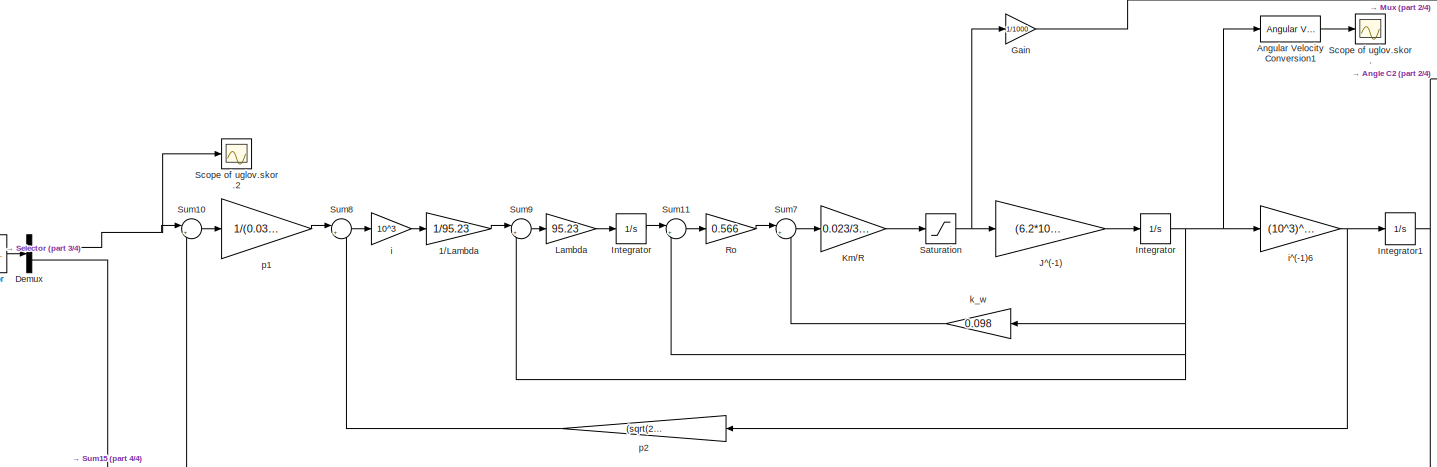
[diagram: Телескоп - part 1/4, top center region]
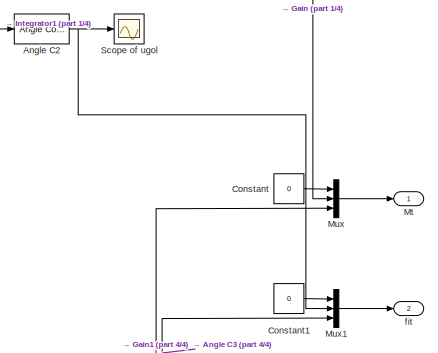
[diagram: Телескоп - part 2/4, top right region]
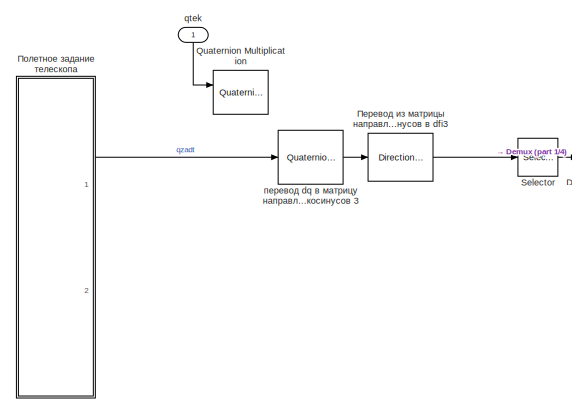
[diagram: Телескоп - part 3/4, top left region]
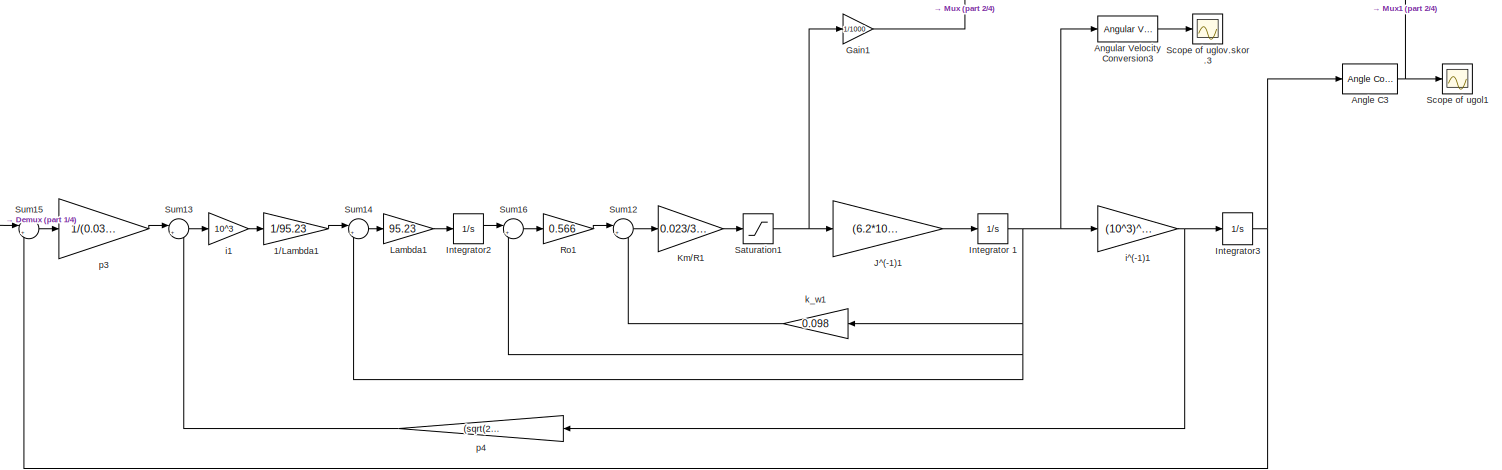
[diagram: Телескоп - part 4/4, bottom center region]
BLOCK [SubSystem] Телескоп
  Commented = on
  Ports = [1, 2]
  RequestExecContextInheritance = off
BLOCK [Gain] Телескоп/1//Lambda
  Gain = 1/95.23
BLOCK [Gain] Телескоп/1//Lambda1
  Gain = 1/95.23
BLOCK [Reference] Телескоп/Angle C2  REF=aerolibconvert2/Angle Conversion
  IU = rad
  OU = deg
  Ports = [1, 1]
  SourceBlock = aerolibconvert2/Angle Conversion
  SourceType = Angle Conversion
BLOCK [Reference] Телескоп/Angle C3  REF=aerolibconvert2/Angle Conversion
  IU = rad
  OU = deg
  Ports = [1, 1]
  SourceBlock = aerolibconvert2/Angle Conversion
  SourceType = Angle Conversion
BLOCK [Reference] Телескоп/Angular Velocity Conversion1  REF=aerolibconvert2/Angular Velocity
Conversion
  IU = rad/s
  OU = deg/s
  Ports = [1, 1]
  SourceBlock = aerolibconvert2/Angular Velocity\nConversion
  SourceType = Angular Velocity Conversion
BLOCK [Reference] Телескоп/Angular Velocity Conversion3  REF=aerolibconvert2/Angular Velocity
Conversion
  IU = rad/s
  OU = deg/s
  Ports = [1, 1]
  SourceBlock = aerolibconvert2/Angular Velocity\nConversion
  SourceType = Angular Velocity Conversion
BLOCK [Constant] Телескоп/Constant
  Value = 0
BLOCK [Constant] Телескоп/Constant1
  Value = 0
BLOCK [Demux] Телескоп/Demux
  DisplayOption = bar
  Outputs = 2
  Ports = [1, 2]
BLOCK [Gain] Телескоп/Gain
  Gain = 1/1000
  OutDataTypeStr = Inherit: Inherit via internal rule
  ParamDataTypeStr = Inherit: Inherit via internal rule
  SaturateOnIntegerOverflow = off
BLOCK [Gain] Телескоп/Gain1
  Gain = 1/1000
  OutDataTypeStr = Inherit: Inherit via internal rule
  ParamDataTypeStr = Inherit: Inherit via internal rule
  SaturateOnIntegerOverflow = off
BLOCK [Integrator] Телескоп/Integrator
  Ports = [1, 1]
BLOCK [Integrator] Телескоп/Integrator 
  Ports = [1, 1]
BLOCK [Integrator] Телескоп/Integrator 1
  Ports = [1, 1]
BLOCK [Integrator] Телескоп/Integrator1
  Ports = [1, 1]
BLOCK [Integrator] Телескоп/Integrator2
  Ports = [1, 1]
BLOCK [Integrator] Телескоп/Integrator3
  Ports = [1, 1]
BLOCK [Gain] Телескоп/J^(-1)
  Gain = (6.2*10^(-6))^(-1)
BLOCK [Gain] Телескоп/J^(-1)1
  Gain = (6.2*10^(-6))^(-1)
BLOCK [Gain] Телескоп/Km//R
  Gain = 0.023/3.8
BLOCK [Gain] Телескоп/Km//R1
  Gain = 0.023/3.8
BLOCK [Gain] Телескоп/Lambda
  Gain = 95.23
BLOCK [Gain] Телескоп/Lambda1
  Gain = 95.23
BLOCK [Outport] Телескоп/Mt
  IconDisplay = Port number
BLOCK [Mux] Телескоп/Mux
  DisplayOption = bar
  Inputs = 3
  Ports = [3, 1]
BLOCK [Mux] Телескоп/Mux1
  DisplayOption = bar
  Inputs = 3
  Ports = [3, 1]
BLOCK [Reference] Телескоп/Quaternion Multiplication  REF=aerolibutil/Quaternion
Multiplication
  Commented = on
  Ports = [2, 1]
  SourceBlock = aerolibutil/Quaternion\nMultiplication
  SourceType = Quaternion Multiplication
BLOCK [Gain] Телескоп/Ro
  Gain = 0.566
BLOCK [Gain] Телескоп/Ro1
  Gain = 0.566
BLOCK [Saturate] Телескоп/Saturation
  InputPortMap = u0
  LowerLimit = -7.85
  Ports = [1, 1]
  UpperLimit = 7.85
BLOCK [Saturate] Телескоп/Saturation1
  InputPortMap = u0
  LowerLimit = -7.85
  Ports = [1, 1]
  UpperLimit = 7.85
BLOCK [Scope] Телескоп/Scope of uglov.skor.
  Floating = off
  LimitDataPoints = off
  MaxDataPoints = 50000
  NumInputPorts = 1
  Ports = [1]
  SampleTime = 0
  SaveName = ScopeData3
  SaveToWorkspace = on
  ShowLegends = off
  TickLabels = on
  TimeRange = 3
  YMax = 2000
  YMin = -500
  ZoomMode = xonly
BLOCK [Scope] Телескоп/Scope of uglov.skor.2
  Floating = off
  LimitDataPoints = off
  MaxDataPoints = 50000
  NumInputPorts = 1
  Ports = [1]
  SampleTime = 0
  SaveName = ScopeData6
  SaveToWorkspace = on
  ShowLegends = off
  TickLabels = on
  TimeRange = 3
  YMax = 0.55
  YMin = 0.15
  ZoomMode = xonly
BLOCK [Scope] Телескоп/Scope of uglov.skor.3
  Floating = off
  LimitDataPoints = off
  MaxDataPoints = 50000
  NumInputPorts = 1
  Ports = [1]
  SampleTime = 0
  SaveName = ScopeData1
  SaveToWorkspace = on
  ShowLegends = off
  TickLabels = on
  TimeRange = 3
  YMax = 2000
  YMin = -500
  ZoomMode = xonly
BLOCK [Scope] Телескоп/Scope of ugol
  Floating = off
  LimitDataPoints = off
  MaxDataPoints = 50000
  NumInputPorts = 1
  Ports = [1]
  SampleTime = 0
  SaveName = ScopeData4
  SaveToWorkspace = on
  ShowLegends = off
  TickLabels = on
  TimeRange = 14.02635825712749
  YMax = 4000
  YMin = -4000
BLOCK [Scope] Телескоп/Scope of ugol1
  Floating = off
  LimitDataPoints = off
  MaxDataPoints = 50000
  NumInputPorts = 1
  Ports = [1]
  SampleTime = 0
  SaveName = ScopeData9
  SaveToWorkspace = on
  ShowLegends = off
  TickLabels = on
  TimeRange = 14.02635825712749
  YMax = 35
  YMin = 5
  ZoomMode = xonly
BLOCK [Selector] Телескоп/Selector
  Indices = [2 3]
  InputPortWidth = 3
  Ports = [1, 1]
BLOCK [Sum] Телескоп/Sum10
  IconShape = round
  InputSameDT = off
  Inputs = |+-
  OutDataTypeStr = Inherit: Inherit via internal rule
  Ports = [2, 1]
  SaturateOnIntegerOverflow = off
BLOCK [Sum] Телескоп/Sum11
  IconShape = round
  InputSameDT = off
  Inputs = |+-
  OutDataTypeStr = Inherit: Inherit via internal rule
  Ports = [2, 1]
  SaturateOnIntegerOverflow = off
BLOCK [Sum] Телескоп/Sum12
  IconShape = round
  InputSameDT = off
  Inputs = |+-
  OutDataTypeStr = Inherit: Inherit via internal rule
  Ports = [2, 1]
  SaturateOnIntegerOverflow = off
BLOCK [Sum] Телескоп/Sum13
  IconShape = round
  InputSameDT = off
  Inputs = |+-
  OutDataTypeStr = Inherit: Inherit via internal rule
  Ports = [2, 1]
  SaturateOnIntegerOverflow = off
BLOCK [Sum] Телескоп/Sum14
  IconShape = round
  InputSameDT = off
  Inputs = |+-
  OutDataTypeStr = Inherit: Inherit via internal rule
  Ports = [2, 1]
  SaturateOnIntegerOverflow = off
BLOCK [Sum] Телескоп/Sum15
  IconShape = round
  InputSameDT = off
  Inputs = |+-
  OutDataTypeStr = Inherit: Inherit via internal rule
  Ports = [2, 1]
  SaturateOnIntegerOverflow = off
BLOCK [Sum] Телескоп/Sum16
  IconShape = round
  InputSameDT = off
  Inputs = |+-
  OutDataTypeStr = Inherit: Inherit via internal rule
  Ports = [2, 1]
  SaturateOnIntegerOverflow = off
BLOCK [Sum] Телескоп/Sum7
  IconShape = round
  InputSameDT = off
  Inputs = |+-
  OutDataTypeStr = Inherit: Inherit via internal rule
  Ports = [2, 1]
  SaturateOnIntegerOverflow = off
BLOCK [Sum] Телескоп/Sum8
  IconShape = round
  InputSameDT = off
  Inputs = |+-
  OutDataTypeStr = Inherit: Inherit via internal rule
  Ports = [2, 1]
  SaturateOnIntegerOverflow = off
BLOCK [Sum] Телескоп/Sum9
  IconShape = round
  InputSameDT = off
  Inputs = |+-
  OutDataTypeStr = Inherit: Inherit via internal rule
  Ports = [2, 1]
  SaturateOnIntegerOverflow = off
BLOCK [Outport] Телескоп/fit
  IconDisplay = Port number
  Port = 2
BLOCK [Gain] Телескоп/i
  Gain = 10^3
BLOCK [Gain] Телескоп/i1
  Gain = 10^3
BLOCK [Gain] Телескоп/i^(-1)1
  Gain = (10^3)^(-1)
BLOCK [Gain] Телескоп/i^(-1)6
  Gain = (10^3)^(-1)
BLOCK [Gain] Телескоп/k_w
  Gain = 0.098
BLOCK [Gain] Телескоп/k_w1
  Gain = 0.098
BLOCK [Gain] Телескоп/p1
  Gain = 1/(0.0315^2)
BLOCK [Gain] Телескоп/p2
  Gain = (sqrt(2)/0.0315)-95.23
BLOCK [Gain] Телескоп/p3
  Gain = 1/(0.0315^2)
BLOCK [Gain] Телескоп/p4
  Gain = (sqrt(2)/0.0315)-95.23
BLOCK [Inport] Телескоп/qtek
  IconDisplay = Port number
BLOCK [Reference] Телескоп/Перевод из матрицы направляющих косинусов в dfi3  REF=aerolibobsolete/Direction Cosine Matrix to
Euler Angles
  Ports = [1, 1]
  SourceBlock = aerolibobsolete/Direction Cosine Matrix to\nEuler Angles
  SourceType = DCM2Euler
BLOCK [SubSystem] Телескоп/Полетное задание телескопа
  Ports = [0, 2]
  RequestExecContextInheritance = off
BLOCK [Clock] Телескоп/Полетное задание телескопа/Clock1
BLOCK [If] Телескоп/Полетное задание телескопа/If1
  IfExpression = (u1 == u2(1))
  NumInputs = 2
  Ports = [2, 1]
  ShowElse = off
BLOCK [If] Телескоп/Полетное задание телескопа/If10
  IfExpression = (u1 == u2(10))
  NumInputs = 2
  Ports = [2, 1]
  ShowElse = off
BLOCK [If] Телескоп/Полетное задание телескопа/If2
  IfExpression = (u1 == u2(2))
  NumInputs = 2
  Ports = [2, 1]
  ShowElse = off
BLOCK [If] Телескоп/Полетное задание телескопа/If3
  IfExpression = (u1 == u2(3))
  NumInputs = 2
  Ports = [2, 1]
  ShowElse = off
BLOCK [If] Телескоп/Полетное задание телескопа/If4
  IfExpression = (u1 == u2(4))
  NumInputs = 2
  Ports = [2, 1]
  ShowElse = off
BLOCK [If] Телескоп/Полетное задание телескопа/If5
  IfExpression = (u1 == u2(5))
  NumInputs = 2
  Ports = [2, 1]
  ShowElse = off
BLOCK [If] Телескоп/Полетное задание телескопа/If6
  IfExpression = (u1 == u2(6))
  NumInputs = 2
  Ports = [2, 1]
  ShowElse = off
BLOCK [If] Телескоп/Полетное задание телескопа/If7
  IfExpression = (u1 == u2(7))
  NumInputs = 2
  Ports = [2, 1]
  ShowElse = off
BLOCK [If] Телескоп/Полетное задание телескопа/If8
  IfExpression = (u1 == u2(8))
  NumInputs = 2
  Ports = [2, 1]
  ShowElse = off
BLOCK [If] Телескоп/Полетное задание телескопа/If9
  IfExpression = (u1 == u2(9))
  NumInputs = 2
  Ports = [2, 1]
  ShowElse = off
BLOCK [Constant] Телескоп/Полетное задание телескопа/T_raz
  Value = [0 150 200  420 470 43000 44000 45000 46000 47000]
BLOCK [Merge] Телескоп/Полетное задание телескопа/fi0
  Inputs = 10
  Ports = [10, 1]
BLOCK [Constant] Телескоп/Полетное задание телескопа/fi01
  Value = [0 0.000005 0.000005]
BLOCK [Constant] Телескоп/Полетное задание телескопа/fi010
  Value = [0 0 0]
BLOCK [Constant] Телескоп/Полетное задание телескопа/fi02
  Value = [0 0 0]
BLOCK [Constant] Телескоп/Полетное задание телескопа/fi03
  Value = [0 50 90]
BLOCK [Constant] Телескоп/Полетное задание телескопа/fi04
  Value = [0 0 0]
BLOCK [Constant] Телескоп/Полетное задание телескопа/fi05
  Value = [0 80 170]
BLOCK [Constant] Телескоп/Полетное задание телескопа/fi06
  Value = [0 0 0]
BLOCK [Constant] Телескоп/Полетное задание телескопа/fi07
  Value = [0 0 0]
BLOCK [Constant] Телескоп/Полетное задание телескопа/fi08
  Value = [0 0 0]
BLOCK [Constant] Телескоп/Полетное задание телескопа/fi09
  Value = [0 0 0]
BLOCK [Merge] Телескоп/Полетное задание телескопа/fi_zad
  Inputs = 10
  Ports = [10, 1]
BLOCK [Constant] Телескоп/Полетное задание телескопа/fi_zad1
  Value = [0 0 0]
BLOCK [Constant] Телескоп/Полетное задание телескопа/fi_zad10
  Value = [0 0 0]
BLOCK [Constant] Телескоп/Полетное задание телескопа/fi_zad2
  Value = [0 50 90]
BLOCK [Constant] Телескоп/Полетное задание телескопа/fi_zad3
  Value = [0 0 0]
BLOCK [Constant] Телескоп/Полетное задание телескопа/fi_zad4
  Value = [0 80 170]
BLOCK [Constant] Телескоп/Полетное задание телескопа/fi_zad5
  Value = [0 0 0]
BLOCK [Constant] Телескоп/Полетное задание телескопа/fi_zad6
  Value = [0 0 0]
BLOCK [Constant] Телескоп/Полетное задание телескопа/fi_zad7
  Value = [0 0 0]
BLOCK [Constant] Телескоп/Полетное задание телескопа/fi_zad8
  Value = [0 0 0]
BLOCK [Constant] Телескоп/Полетное задание телескопа/fi_zad9
  Value = [0 0 0]
BLOCK [Outport] Телескоп/Полетное задание телескопа/q0
  IconDisplay = Port number
  Port = 2
BLOCK [Outport] Телескоп/Полетное задание телескопа/qzad
  IconDisplay = Port number
BLOCK [SubSystem] Телескоп/Полетное задание телескопа/Перевод из углов в кватернионы
  Ports = [1, 1]
  RequestExecContextInheritance = off
BLOCK [SubSystem] Телескоп/Полетное задание телескопа/Перевод из углов в кватернионы 
  Ports = [1, 1]
  RequestExecContextInheritance = off
BLOCK [Reference] Телескоп/Полетное задание телескопа/Перевод из углов в кватернионы /Angle Conversion1  REF=aerolibconvert2/Angle Conversion
  IU = deg
  OU = rad
  Ports = [1, 1]
  SourceBlock = aerolibconvert2/Angle Conversion
  SourceType = Angle Conversion
BLOCK [Reference] Телескоп/Полетное задание телескопа/Перевод из углов в кватернионы /Rotation Angles to Quaternions1  REF=aerolibtransform2/Rotation Angles to Quaternions
  AttributesFormatString = Rotation Order: %<rotationOrder>
  Ports = [1, 1]
  SourceBlock = aerolibtransform2/Rotation Angles to Quaternions
  SourceType = Ang2Quat
  rotationOrder = ZYX
BLOCK [Selector] Телескоп/Полетное задание телескопа/Перевод из углов в кватернионы /Selector1
  Indices = [3 2 1]
  InputPortWidth = 3
  Ports = [1, 1]
BLOCK [Inport] Телескоп/Полетное задание телескопа/Перевод из углов в кватернионы /fi
  IconDisplay = Port number
BLOCK [Outport] Телескоп/Полетное задание телескопа/Перевод из углов в кватернионы /q
  IconDisplay = Port number
BLOCK [Reference] Телескоп/Полетное задание телескопа/Перевод из углов в кватернионы/Angle Conversion1  REF=aerolibconvert2/Angle Conversion
  IU = deg
  OU = rad
  Ports = [1, 1]
  SourceBlock = aerolibconvert2/Angle Conversion
  SourceType = Angle Conversion
BLOCK [Reference] Телескоп/Полетное задание телескопа/Перевод из углов в кватернионы/Rotation Angles to Quaternions1  REF=aerolibtransform2/Rotation Angles to Quaternions
  AttributesFormatString = Rotation Order: %<rotationOrder>
  Ports = [1, 1]
  SourceBlock = aerolibtransform2/Rotation Angles to Quaternions
  SourceType = Ang2Quat
  rotationOrder = ZYX
BLOCK [Selector] Телескоп/Полетное задание телескопа/Перевод из углов в кватернионы/Selector1
  Indices = [3 2 1]
  InputPortWidth = 3
  Ports = [1, 1]
BLOCK [Inport] Телескоп/Полетное задание телескопа/Перевод из углов в кватернионы/fi
  IconDisplay = Port number
BLOCK [Outport] Телескоп/Полетное задание телескопа/Перевод из углов в кватернионы/q
  IconDisplay = Port number
BLOCK [SubSystem] Телескоп/Полетное задание телескопа/Разворот 1
  Ports = [2, 2, 0, 0, 0, 0, 0, 1]
  RequestExecContextInheritance = off
  TreatAsAtomicUnit = on
BLOCK [ActionPort] Телескоп/Полетное задание телескопа/Разворот 1/Action Port
  ActionType = then
BLOCK [Inport] Телескоп/Полетное задание телескопа/Разворот 1/fi01
  IconDisplay = Port number
  Port = 2
BLOCK [Outport] Телескоп/Полетное задание телескопа/Разворот 1/fi01  
  IconDisplay = Port number
  Port = 2
BLOCK [Inport] Телескоп/Полетное задание телескопа/Разворот 1/fi_zad1
  IconDisplay = Port number
BLOCK [Outport] Телескоп/Полетное задание телескопа/Разворот 1/fi_zad1  
  IconDisplay = Port number
BLOCK [SubSystem] Телескоп/Полетное задание телескопа/Разворот 10
  Ports = [2, 2, 0, 0, 0, 0, 0, 1]
  RequestExecContextInheritance = off
  TreatAsAtomicUnit = on
BLOCK [ActionPort] Телескоп/Полетное задание телескопа/Разворот 10/Action Port
  ActionType = then
BLOCK [Inport] Телескоп/Полетное задание телескопа/Разворот 10/fi01
  IconDisplay = Port number
  Port = 2
BLOCK [Outport] Телескоп/Полетное задание телескопа/Разворот 10/fi01  
  IconDisplay = Port number
  Port = 2
BLOCK [Inport] Телескоп/Полетное задание телескопа/Разворот 10/fi_zad1
  IconDisplay = Port number
BLOCK [Outport] Телескоп/Полетное задание телескопа/Разворот 10/fi_zad1  
  IconDisplay = Port number
BLOCK [SubSystem] Телескоп/Полетное задание телескопа/Разворот 2
  Ports = [2, 2, 0, 0, 0, 0, 0, 1]
  RequestExecContextInheritance = off
  TreatAsAtomicUnit = on
BLOCK [ActionPort] Телескоп/Полетное задание телескопа/Разворот 2/Action Port
  ActionType = then
BLOCK [Inport] Телескоп/Полетное задание телескопа/Разворот 2/fi01
  IconDisplay = Port number
  Port = 2
BLOCK [Outport] Телескоп/Полетное задание телескопа/Разворот 2/fi01  
  IconDisplay = Port number
  Port = 2
BLOCK [Inport] Телескоп/Полетное задание телескопа/Разворот 2/fi_zad1
  IconDisplay = Port number
BLOCK [Outport] Телескоп/Полетное задание телескопа/Разворот 2/fi_zad1  
  IconDisplay = Port number
BLOCK [SubSystem] Телескоп/Полетное задание телескопа/Разворот 3
  Ports = [2, 2, 0, 0, 0, 0, 0, 1]
  RequestExecContextInheritance = off
  TreatAsAtomicUnit = on
BLOCK [ActionPort] Телескоп/Полетное задание телескопа/Разворот 3/Action Port
  ActionType = then
BLOCK [Inport] Телескоп/Полетное задание телескопа/Разворот 3/fi01
  IconDisplay = Port number
  Port = 2
BLOCK [Outport] Телескоп/Полетное задание телескопа/Разворот 3/fi01  
  IconDisplay = Port number
  Port = 2
BLOCK [Inport] Телескоп/Полетное задание телескопа/Разворот 3/fi_zad1
  IconDisplay = Port number
BLOCK [Outport] Телескоп/Полетное задание телескопа/Разворот 3/fi_zad1  
  IconDisplay = Port number
BLOCK [SubSystem] Телескоп/Полетное задание телескопа/Разворот 4
  Ports = [2, 2, 0, 0, 0, 0, 0, 1]
  RequestExecContextInheritance = off
  TreatAsAtomicUnit = on
BLOCK [ActionPort] Телескоп/Полетное задание телескопа/Разворот 4/Action Port
  ActionType = then
BLOCK [Inport] Телескоп/Полетное задание телескопа/Разворот 4/fi01
  IconDisplay = Port number
  Port = 2
BLOCK [Outport] Телескоп/Полетное задание телескопа/Разворот 4/fi01  
  IconDisplay = Port number
  Port = 2
BLOCK [Inport] Телескоп/Полетное задание телескопа/Разворот 4/fi_zad1
  IconDisplay = Port number
BLOCK [Outport] Телескоп/Полетное задание телескопа/Разворот 4/fi_zad1  
  IconDisplay = Port number
BLOCK [SubSystem] Телескоп/Полетное задание телескопа/Разворот 5
  Ports = [2, 2, 0, 0, 0, 0, 0, 1]
  RequestExecContextInheritance = off
  TreatAsAtomicUnit = on
BLOCK [ActionPort] Телескоп/Полетное задание телескопа/Разворот 5/Action Port
  ActionType = then
BLOCK [Inport] Телескоп/Полетное задание телескопа/Разворот 5/fi01
  IconDisplay = Port number
  Port = 2
BLOCK [Outport] Телескоп/Полетное задание телескопа/Разворот 5/fi01  
  IconDisplay = Port number
  Port = 2
BLOCK [Inport] Телескоп/Полетное задание телескопа/Разворот 5/fi_zad1
  IconDisplay = Port number
BLOCK [Outport] Телескоп/Полетное задание телескопа/Разворот 5/fi_zad1  
  IconDisplay = Port number
BLOCK [SubSystem] Телескоп/Полетное задание телескопа/Разворот 6
  Ports = [2, 2, 0, 0, 0, 0, 0, 1]
  RequestExecContextInheritance = off
  TreatAsAtomicUnit = on
BLOCK [ActionPort] Телескоп/Полетное задание телескопа/Разворот 6/Action Port
  ActionType = then
BLOCK [Inport] Телескоп/Полетное задание телескопа/Разворот 6/fi01
  IconDisplay = Port number
  Port = 2
BLOCK [Outport] Телескоп/Полетное задание телескопа/Разворот 6/fi01  
  IconDisplay = Port number
  Port = 2
BLOCK [Inport] Телескоп/Полетное задание телескопа/Разворот 6/fi_zad1
  IconDisplay = Port number
BLOCK [Outport] Телескоп/Полетное задание телескопа/Разворот 6/fi_zad1  
  IconDisplay = Port number
BLOCK [SubSystem] Телескоп/Полетное задание телескопа/Разворот 7
  Ports = [2, 2, 0, 0, 0, 0, 0, 1]
  RequestExecContextInheritance = off
  TreatAsAtomicUnit = on
BLOCK [ActionPort] Телескоп/Полетное задание телескопа/Разворот 7/Action Port
  ActionType = then
BLOCK [Inport] Телескоп/Полетное задание телескопа/Разворот 7/fi01
  IconDisplay = Port number
  Port = 2
BLOCK [Outport] Телескоп/Полетное задание телескопа/Разворот 7/fi01  
  IconDisplay = Port number
  Port = 2
BLOCK [Inport] Телескоп/Полетное задание телескопа/Разворот 7/fi_zad1
  IconDisplay = Port number
BLOCK [Outport] Телескоп/Полетное задание телескопа/Разворот 7/fi_zad1  
  IconDisplay = Port number
BLOCK [SubSystem] Телескоп/Полетное задание телескопа/Разворот 8
  Ports = [2, 2, 0, 0, 0, 0, 0, 1]
  RequestExecContextInheritance = off
  TreatAsAtomicUnit = on
BLOCK [ActionPort] Телескоп/Полетное задание телескопа/Разворот 8/Action Port
  ActionType = then
BLOCK [Inport] Телескоп/Полетное задание телескопа/Разворот 8/fi01
  IconDisplay = Port number
  Port = 2
BLOCK [Outport] Телескоп/Полетное задание телескопа/Разворот 8/fi01  
  IconDisplay = Port number
  Port = 2
BLOCK [Inport] Телескоп/Полетное задание телескопа/Разворот 8/fi_zad1
  IconDisplay = Port number
BLOCK [Outport] Телескоп/Полетное задание телескопа/Разворот 8/fi_zad1  
  IconDisplay = Port number
BLOCK [SubSystem] Телескоп/Полетное задание телескопа/Разворот 9
  Ports = [2, 2, 0, 0, 0, 0, 0, 1]
  RequestExecContextInheritance = off
  TreatAsAtomicUnit = on
BLOCK [ActionPort] Телескоп/Полетное задание телескопа/Разворот 9/Action Port
  ActionType = then
BLOCK [Inport] Телескоп/Полетное задание телескопа/Разворот 9/fi01
  IconDisplay = Port number
  Port = 2
BLOCK [Outport] Телескоп/Полетное задание телескопа/Разворот 9/fi01  
  IconDisplay = Port number
  Port = 2
BLOCK [Inport] Телескоп/Полетное задание телескопа/Разворот 9/fi_zad1
  IconDisplay = Port number
BLOCK [Outport] Телескоп/Полетное задание телескопа/Разворот 9/fi_zad1  
  IconDisplay = Port number
BLOCK [Reference] Телескоп/перевод dq в матрицу направляющих косинусов 3  REF=aerolibtransform2/Quaternions to 
Direction Cosine Matrix
  Ports = [1, 1]
  SourceBlock = aerolibtransform2/Quaternions to \nDirection Cosine Matrix
  SourceType = Quaternion2DCM
BLOCK [SubSystem] Фильтр калмана q 
  Ports = [2, 1]
  RequestExecContextInheritance = off
BLOCK [Demux] Фильтр калмана q /Demux1
  DisplayOption = bar
  Ports = [1, 4]
BLOCK [Demux] Фильтр калмана q /Demux2
  DisplayOption = bar
  Ports = [1, 4]
BLOCK [SubSystem] Фильтр калмана q /MATLAB Function
  ErrorFcn = Stateflow.Translate.translate
  PermitHierarchicalResolution = ExplicitOnly
  Ports = [2, 2]
  RequestExecContextInheritance = off
  SFBlockType = MATLAB Function
  TreatAsAtomicUnit = on
BLOCK [Demux] Фильтр калмана q /MATLAB Function/ Demux 
  Outputs = 1
  Ports = [1, 1]
BLOCK [S-Function] Фильтр калмана q /MATLAB Function/ SFunction 
  EnableBusSupport = on
  FunctionName = sf_sfun
  PortCounts = [2 3]
  Ports = [2, 3]
  Tag = Stateflow S-Function SKKP 11
BLOCK [Terminator] Фильтр калмана q /MATLAB Function/ Terminator 
BLOCK [Inport] Фильтр калмана q /MATLAB Function/meas
  IconDisplay = Port number
  Port = 2
BLOCK [Inport] Фильтр калмана q /MATLAB Function/u
  IconDisplay = Port number
BLOCK [Outport] Фильтр калмана q /MATLAB Function/xhatOut
  IconDisplay = Port number
BLOCK [Outport] Фильтр калмана q /MATLAB Function/yhatOut
  IconDisplay = Port number
  Port = 2
BLOCK [SubSystem] Фильтр калмана q /MATLAB Function1
  ErrorFcn = Stateflow.Translate.translate
  PermitHierarchicalResolution = ExplicitOnly
  Ports = [2, 2]
  RequestExecContextInheritance = off
  SFBlockType = MATLAB Function
  TreatAsAtomicUnit = on
BLOCK [Demux] Фильтр калмана q /MATLAB Function1/ Demux 
  Outputs = 1
  Ports = [1, 1]
BLOCK [S-Function] Фильтр калмана q /MATLAB Function1/ SFunction 
  EnableBusSupport = on
  FunctionName = sf_sfun
  PortCounts = [2 3]
  Ports = [2, 3]
  Tag = Stateflow S-Function SKKP 12
BLOCK [Terminator] Фильтр калмана q /MATLAB Function1/ Terminator 
BLOCK [Inport] Фильтр калмана q /MATLAB Function1/meas
  IconDisplay = Port number
  Port = 2
BLOCK [Inport] Фильтр калмана q /MATLAB Function1/u
  IconDisplay = Port number
BLOCK [Outport] Фильтр калмана q /MATLAB Function1/xhatOut
  IconDisplay = Port number
BLOCK [Outport] Фильтр калмана q /MATLAB Function1/yhatOut
  IconDisplay = Port number
  Port = 2
BLOCK [SubSystem] Фильтр калмана q /MATLAB Function2
  ErrorFcn = Stateflow.Translate.translate
  PermitHierarchicalResolution = ExplicitOnly
  Ports = [2, 2]
  RequestExecContextInheritance = off
  SFBlockType = MATLAB Function
  TreatAsAtomicUnit = on
BLOCK [Demux] Фильтр калмана q /MATLAB Function2/ Demux 
  Outputs = 1
  Ports = [1, 1]
BLOCK [S-Function] Фильтр калмана q /MATLAB Function2/ SFunction 
  EnableBusSupport = on
  FunctionName = sf_sfun
  PortCounts = [2 3]
  Ports = [2, 3]
  Tag = Stateflow S-Function SKKP 13
BLOCK [Terminator] Фильтр калмана q /MATLAB Function2/ Terminator 
BLOCK [Inport] Фильтр калмана q /MATLAB Function2/meas
  IconDisplay = Port number
  Port = 2
BLOCK [Inport] Фильтр калмана q /MATLAB Function2/u
  IconDisplay = Port number
BLOCK [Outport] Фильтр калмана q /MATLAB Function2/xhatOut
  IconDisplay = Port number
BLOCK [Outport] Фильтр калмана q /MATLAB Function2/yhatOut
  IconDisplay = Port number
  Port = 2
BLOCK [SubSystem] Фильтр калмана q /MATLAB Function3
  ErrorFcn = Stateflow.Translate.translate
  PermitHierarchicalResolution = ExplicitOnly
  Ports = [2, 2]
  RequestExecContextInheritance = off
  SFBlockType = MATLAB Function
  TreatAsAtomicUnit = on
BLOCK [Demux] Фильтр калмана q /MATLAB Function3/ Demux 
  Outputs = 1
  Ports = [1, 1]
BLOCK [S-Function] Фильтр калмана q /MATLAB Function3/ SFunction 
  EnableBusSupport = on
  FunctionName = sf_sfun
  PortCounts = [2 3]
  Ports = [2, 3]
  Tag = Stateflow S-Function SKKP 14
BLOCK [Terminator] Фильтр калмана q /MATLAB Function3/ Terminator 
BLOCK [Inport] Фильтр калмана q /MATLAB Function3/meas
  IconDisplay = Port number
  Port = 2
BLOCK [Inport] Фильтр калмана q /MATLAB Function3/u
  IconDisplay = Port number
BLOCK [Outport] Фильтр калмана q /MATLAB Function3/xhatOut
  IconDisplay = Port number
BLOCK [Outport] Фильтр калмана q /MATLAB Function3/yhatOut
  IconDisplay = Port number
  Port = 2
BLOCK [Mux] Фильтр калмана q /Mux
  DisplayOption = bar
  Ports = [4, 1]
BLOCK [Outport] Фильтр калмана q /qfilt
  IconDisplay = Port number
BLOCK [Inport] Фильтр калмана q /qizm
  IconDisplay = Port number
BLOCK [Inport] Фильтр калмана q /qtek
  IconDisplay = Port number
  Port = 2
BLOCK [SubSystem] Фильтр калмана w 
  Ports = [2, 1]
  RequestExecContextInheritance = off
BLOCK [Reference] Фильтр калмана w /Angular Velocity Conversion1  REF=aerolibconvert2/Angular Velocity
Conversion
  IU = rad/s
  OU = deg/s
  Ports = [1, 1]
  SourceBlock = aerolibconvert2/Angular Velocity\nConversion
  SourceType = Angular Velocity Conversion
BLOCK [Demux] Фильтр калмана w /Demux1
  DisplayOption = bar
  Outputs = 3
  Ports = [1, 3]
BLOCK [Demux] Фильтр калмана w /Demux2
  DisplayOption = bar
  Outputs = 3
  Ports = [1, 3]
BLOCK [SubSystem] Фильтр калмана w /MATLAB Function
  ErrorFcn = Stateflow.Translate.translate
  PermitHierarchicalResolution = ExplicitOnly
  Ports = [2, 2]
  RequestExecContextInheritance = off
  SFBlockType = MATLAB Function
  TreatAsAtomicUnit = on
BLOCK [Demux] Фильтр калмана w /MATLAB Function/ Demux 
  Outputs = 1
  Ports = [1, 1]
BLOCK [S-Function] Фильтр калмана w /MATLAB Function/ SFunction 
  EnableBusSupport = on
  FunctionName = sf_sfun
  PortCounts = [2 3]
  Ports = [2, 3]
  Tag = Stateflow S-Function SKKP 7
BLOCK [Terminator] Фильтр калмана w /MATLAB Function/ Terminator 
BLOCK [Inport] Фильтр калмана w /MATLAB Function/meas
  IconDisplay = Port number
  Port = 2
BLOCK [Inport] Фильтр калмана w /MATLAB Function/u
  IconDisplay = Port number
BLOCK [Outport] Фильтр калмана w /MATLAB Function/xhatOut
  IconDisplay = Port number
BLOCK [Outport] Фильтр калмана w /MATLAB Function/yhatOut
  IconDisplay = Port number
  Port = 2
BLOCK [SubSystem] Фильтр калмана w /MATLAB Function1
  ErrorFcn = Stateflow.Translate.translate
  PermitHierarchicalResolution = ExplicitOnly
  Ports = [2, 2]
  RequestExecContextInheritance = off
  SFBlockType = MATLAB Function
  TreatAsAtomicUnit = on
BLOCK [Demux] Фильтр калмана w /MATLAB Function1/ Demux 
  Outputs = 1
  Ports = [1, 1]
BLOCK [S-Function] Фильтр калмана w /MATLAB Function1/ SFunction 
  EnableBusSupport = on
  FunctionName = sf_sfun
  PortCounts = [2 3]
  Ports = [2, 3]
  Tag = Stateflow S-Function SKKP 8
BLOCK [Terminator] Фильтр калмана w /MATLAB Function1/ Terminator 
BLOCK [Inport] Фильтр калмана w /MATLAB Function1/meas
  IconDisplay = Port number
  Port = 2
BLOCK [Inport] Фильтр калмана w /MATLAB Function1/u
  IconDisplay = Port number
BLOCK [Outport] Фильтр калмана w /MATLAB Function1/xhatOut
  IconDisplay = Port number
BLOCK [Outport] Фильтр калмана w /MATLAB Function1/yhatOut
  IconDisplay = Port number
  Port = 2
BLOCK [SubSystem] Фильтр калмана w /MATLAB Function2
  ErrorFcn = Stateflow.Translate.translate
  PermitHierarchicalResolution = ExplicitOnly
  Ports = [2, 2]
  RequestExecContextInheritance = off
  SFBlockType = MATLAB Function
  TreatAsAtomicUnit = on
BLOCK [Demux] Фильтр калмана w /MATLAB Function2/ Demux 
  Outputs = 1
  Ports = [1, 1]
BLOCK [S-Function] Фильтр калмана w /MATLAB Function2/ SFunction 
  EnableBusSupport = on
  FunctionName = sf_sfun
  PortCounts = [2 3]
  Ports = [2, 3]
  Tag = Stateflow S-Function SKKP 10
BLOCK [Terminator] Фильтр калмана w /MATLAB Function2/ Terminator 
BLOCK [Inport] Фильтр калмана w /MATLAB Function2/meas
  IconDisplay = Port number
  Port = 2
BLOCK [Inport] Фильтр калмана w /MATLAB Function2/u
  IconDisplay = Port number
BLOCK [Outport] Фильтр калмана w /MATLAB Function2/xhatOut
  IconDisplay = Port number
BLOCK [Outport] Фильтр калмана w /MATLAB Function2/yhatOut
  IconDisplay = Port number
  Port = 2
BLOCK [Mux] Фильтр калмана w /Mux
  DisplayOption = bar
  Inputs = 3
  Ports = [3, 1]
BLOCK [Outport] Фильтр калмана w /wfilt
  IconDisplay = Port number
BLOCK [Inport] Фильтр калмана w /wizm
  IconDisplay = Port number
BLOCK [Inport] Фильтр калмана w /wtek
  IconDisplay = Port number
  Port = 2
BLOCK [Reference] перевод qtek в матрицу направляющих косинусов   REF=aerolibtransform2/Quaternions to 
Direction Cosine Matrix
  Commented = on
  Ports = [1, 1]
  SourceBlock = aerolibtransform2/Quaternions to \nDirection Cosine Matrix
  SourceType = Quaternion2DCM
ANNOTATION ГИВУС: ЧЭ2
ANNOTATION Задание моментов инерции: Время изменения момента инерции
ANNOTATION Момент пиропатронов: Время изменения момента инерции
ANNOTATION Объект: Risk0
ANNOTATION Объект: W0
ANNOTATION Полетное задание: 1 разворот
ANNOTATION Полетное задание: 10 разворот
ANNOTATION Полетное задание: 2 разворот
ANNOTATION Полетное задание: 3 разворот
ANNOTATION Полетное задание: 4 разворот
ANNOTATION Полетное задание: 5 разворот
ANNOTATION Полетное задание: 6 разворот
ANNOTATION Полетное задание: 7 разворот
ANNOTATION Полетное задание: 8 разворот
ANNOTATION Полетное задание: 9 разворот
ANNOTATION Полетное задание: Время разворотов
ANNOTATION Полетное задание: Начальная угловая скорость
ANNOTATION Програмный разворот : erazv
ANNOTATION Телескоп/Полетное задание телескопа: 1 разворот
ANNOTATION Телескоп/Полетное задание телескопа: 10 разворот
ANNOTATION Телескоп/Полетное задание телескопа: 2 разворот
ANNOTATION Телескоп/Полетное задание телескопа: 3 разворот
ANNOTATION Телескоп/Полетное задание телескопа: 4 разворот
ANNOTATION Телескоп/Полетное задание телескопа: 5 разворот
ANNOTATION Телескоп/Полетное задание телескопа: 6 разворот
ANNOTATION Телескоп/Полетное задание телескопа: 7 разворот
ANNOTATION Телескоп/Полетное задание телескопа: 8 разворот
ANNOTATION Телескоп/Полетное задание телескопа: 9 разворот
ANNOTATION Телескоп/Полетное задание телескопа: Время разворотов
NET DU:1 -> Mdu:1, Sum1:2
LINE KFI/Demux:1 -> KFI/Divide3:2
LINE KFI/Demux:5 -> KFI/Divide4:2
LINE KFI/Demux:9 -> KFI/Divide5:2
LINE KFI/Divide1:1 -> KFI/kfi*dfi:1
LINE KFI/Divide3:1 -> KFI/Mux:1
LINE KFI/Divide4:1 -> KFI/Mux:2
LINE KFI/Divide5:1 -> KFI/Mux:3
LINE KFI/J:1 -> KFI/Reshape:1
NET KFI/Mux:1 -> KFI/Display4:1, KFI/Divide1:1
LINE KFI/Reshape:1 -> KFI/Demux:1
LINE KFI/dfi:1 -> KFI/Divide1:2
NET KFI/eps_max3:1 -> KFI/Divide3:1, KFI/Divide4:1, KFI/Divide5:1
LINE KFI:1 -> Sum2:1
NET KUDM:1 -> Mkudm:1, Sum1:1
LINE KW/Demux1:1 -> KW/Divide6:2
LINE KW/Demux1:5 -> KW/Divide7:2
LINE KW/Demux1:9 -> KW/Divide8:2
LINE KW/Divide2:1 -> KW/kw*dw:1
LINE KW/Divide6:1 -> KW/Mux2:1
LINE KW/Divide7:1 -> KW/Mux2:2
LINE KW/Divide8:1 -> KW/Mux2:3
LINE KW/J:1 -> KW/Reshape1:1
NET KW/Mux2:1 -> KW/Display5:1, KW/Divide2:1
LINE KW/Reshape1:1 -> KW/Demux1:1
LINE KW/dw:1 -> KW/Divide2:2
NET KW/eps_max1:1 -> KW/Divide6:1, KW/Divide7:1, KW/Divide8:1
LINE KW:1 -> Sum2:2
LINE Mux13:1 -> W:1
LINE Mux14:1 -> L:1
LINE Mux1:1 -> FI:1
LINE SSKM:1 -> ДC:1
LINE Subsystem1/Angle Conversion1:1 -> Subsystem1/deg:1
LINE Subsystem1/Direction Cosine Matrix to Euler Angles1:1 -> Subsystem1/Angle Conversion1:1
LINE Subsystem1/Quaternions to Direction Cosine Matrix3:1 -> Subsystem1/Direction Cosine Matrix to Euler Angles1:1
LINE Subsystem1/q:1 -> Subsystem1/Quaternions to Direction Cosine Matrix3:1
NET Subsystem1:1 -> Mux1:2, fi:1
LINE Subsystem2/Angle Conversion1:1 -> Subsystem2/deg:1
LINE Subsystem2/Direction Cosine Matrix to Euler Angles1:1 -> Subsystem2/Angle Conversion1:1
LINE Subsystem2/Quaternions to Direction Cosine Matrix3:1 -> Subsystem2/Direction Cosine Matrix to Euler Angles1:1
LINE Subsystem2/q:1 -> Subsystem2/Quaternions to Direction Cosine Matrix3:1
LINE Subsystem2:1 -> Mux1:1
LINE Subsystem4/Angle Conversion1:1 -> Subsystem4/deg:1
LINE Subsystem4/Direction Cosine Matrix to Euler Angles1:1 -> Subsystem4/Angle Conversion1:1
LINE Subsystem4/Quaternions to Direction Cosine Matrix3:1 -> Subsystem4/Direction Cosine Matrix to Euler Angles1:1
LINE Subsystem4/q:1 -> Subsystem4/Quaternions to Direction Cosine Matrix3:1
LINE Subsystem4:1 -> L1:1
LINE Subsystem6/Angle C5:1 -> Subsystem6/dfi:1
LINE Subsystem6/dq:1 -> Subsystem6/перевод dq в матрицу направляющих косинусов 1:1
LINE Subsystem6/Перевод из матрицы направляющих косинусов в dfi1:1 -> Subsystem6/Angle C5:1
LINE Subsystem6/перевод dq в матрицу направляющих косинусов 1:1 -> Subsystem6/Перевод из матрицы направляющих косинусов в dfi1:1
NET Subsystem6:1 -> KFI:2, dfi:1
NET Sum1:1 -> Mupr:1, Sum3:1, m:1
NET Sum2:1 -> SSKM:2, КУДМ:1
LINE Sum3:1 -> Объект:4
LINE Sum4:1 -> KW:2
LINE qpr//qtek1:1 -> Subsystem6:1
LINE АД/Gain3:1 -> АД/Mux2:1
LINE АД/Gain4:1 -> АД/Mux2:2
LINE АД/Gain5:1 -> АД/Mux2:3
LINE АД/Mux2:1 -> АД/Перевод из углов в кватернионы1:1
LINE АД/Noise1____5''1:1 -> АД/Gain3:1
LINE АД/Noise2___5''1:1 -> АД/Gain4:1
LINE АД/Noise3___5''1:1 -> АД/Gain5:1
LINE АД/Quaternion Multiplication3:1 -> АД/Quaternion Multiplication4:1
LINE АД/Quaternion Multiplication4:1 -> АД/Quaternion Multiplication5:2
LINE АД/Quaternion Multiplication5:1 -> АД/q тек:1
LINE АД/qtek :1 -> АД/Quaternion Multiplication3:2
LINE АД/Мвск-пск 1:1 -> АД/Перевод из матрицы направляющих косинусов в кватернионы2:1
LINE АД/Мпск-вск1:1 -> АД/Перевод из матрицы направляющих косинусов в кватернионы3:1
LINE АД/Перевод из матрицы направляющих косинусов в кватернионы2:1 -> АД/Quaternion Multiplication3:1
LINE АД/Перевод из матрицы направляющих косинусов в кватернионы3:1 -> АД/Quaternion Multiplication5:1
LINE АД/Перевод из углов в кватернионы1/Angle Conversion1:1 -> АД/Перевод из углов в кватернионы1/Rotation Angles to Quaternions1:1
LINE АД/Перевод из углов в кватернионы1/Rotation Angles to Quaternions1:1 -> АД/Перевод из углов в кватернионы1/q:1
LINE АД/Перевод из углов в кватернионы1/Selector1:1 -> АД/Перевод из углов в кватернионы1/Angle Conversion1:1
LINE АД/Перевод из углов в кватернионы1/fi:1 -> АД/Перевод из углов в кватернионы1/Selector1:1
LINE АД/Перевод из углов в кватернионы1:1 -> АД/Quaternion Multiplication4:2
LINE АД:1 -> Фильтр калмана q :1
LINE Внешний момент/M_vn4:1 -> Внешний момент/Mux4:1
LINE Внешний момент/M_vn5:1 -> Внешний момент/Mux4:2
LINE Внешний момент/M_vn6:1 -> Внешний момент/Mux4:3
LINE Внешний момент/Mux4:1 -> Внешний момент/Mv :1
LINE Внешний момент:1 -> Sum3:2
LINE ГИВУС/Angle Conversion2:1 -> ГИВУС/Sum1:2
LINE ГИВУС/Angle Conversion3:1 -> ГИВУС/Rotation Angles to Direction Cosine Matrix:1
LINE ГИВУС/Angle Conversion4:1 -> ГИВУС/Rotation Angles to Direction Cosine Matrix1:1
LINE ГИВУС/Angle Conversion5:1 -> ГИВУС/Rotation Angles to Direction Cosine Matrix2:1
LINE ГИВУС/Angle Conversion6:1 -> ГИВУС/Rotation Angles to Direction Cosine Matrix3:1
LINE ГИВУС/Angle Conversion7:1 -> ГИВУС/Sum2:2
LINE ГИВУС/Angle Conversion8:1 -> ГИВУС/Sum3:2
LINE ГИВУС/Angle Conversion9:1 -> ГИВУС/Sum4:2
LINE ГИВУС/Gain4:1 -> ГИВУС/Angle Conversion2:1
LINE ГИВУС/Gain5:1 -> ГИВУС/Angle Conversion7:1
LINE ГИВУС/Gain6:1 -> ГИВУС/Angle Conversion8:1
LINE ГИВУС/Gain7:1 -> ГИВУС/Angle Conversion9:1
LINE ГИВУС/Mux2:1 -> ГИВУС/Gain5:1
LINE ГИВУС/Mux3:1 -> ГИВУС/Gain6:1
LINE ГИВУС/Mux4:1 -> ГИВУС/Gain7:1
LINE ГИВУС/Mux:1 -> ГИВУС/Gain4:1
LINE ГИВУС/NoiseЧЭ1x____0,012'':1 -> ГИВУС/Mux:1
LINE ГИВУС/NoiseЧЭ1y____0,012'':1 -> ГИВУС/Mux:2
LINE ГИВУС/NoiseЧЭ1z____0,012'':1 -> ГИВУС/Mux:3
LINE ГИВУС/NoiseЧЭ2x____0,012'':1 -> ГИВУС/Mux2:1
LINE ГИВУС/NoiseЧЭ2y____0,012'':1 -> ГИВУС/Mux2:2
LINE ГИВУС/NoiseЧЭ2z____0,012'':1 -> ГИВУС/Mux2:3
LINE ГИВУС/NoiseЧЭ3x____0,012'':1 -> ГИВУС/Mux3:1
LINE ГИВУС/NoiseЧЭ3y____0,012'':1 -> ГИВУС/Mux3:2
LINE ГИВУС/NoiseЧЭ3z____0,012'':1 -> ГИВУС/Mux3:3
LINE ГИВУС/NoiseЧЭ4x____0,012'':1 -> ГИВУС/Mux4:1
LINE ГИВУС/NoiseЧЭ4y____0,012'':1 -> ГИВУС/Mux4:2
LINE ГИВУС/NoiseЧЭ4z____0,012'':1 -> ГИВУС/Mux4:3
LINE ГИВУС/Pseudoinverse1:1 -> ГИВУС/Переход от ЧЭ1 к ПСК1:1
LINE ГИВУС/Pseudoinverse2:1 -> ГИВУС/Переход от ЧЭ1 к ПСК2:1
LINE ГИВУС/Pseudoinverse3:1 -> ГИВУС/Переход от ЧЭ1 к ПСК3:1
LINE ГИВУС/Pseudoinverse:1 -> ГИВУС/Переход от ЧЭ1 к ПСК:1
NET ГИВУС/Rotation Angles to Direction Cosine Matrix1:1 -> ГИВУС/Display4:1, ГИВУС/Pseudoinverse1:1, ГИВУС/Переход в ЧЭ2:1
NET ГИВУС/Rotation Angles to Direction Cosine Matrix2:1 -> ГИВУС/Display5:1, ГИВУС/Pseudoinverse2:1, ГИВУС/Переход в ЧЭ3:1
NET ГИВУС/Rotation Angles to Direction Cosine Matrix3:1 -> ГИВУС/Display6:1, ГИВУС/Pseudoinverse3:1, ГИВУС/Переход в ЧЭ4:1
NET ГИВУС/Rotation Angles to Direction Cosine Matrix:1 -> ГИВУС/Display3:1, ГИВУС/Pseudoinverse:1, ГИВУС/Переход в ЧЭ1:1
LINE ГИВУС/Subsystem/Gain4:1 -> ГИВУС/Subsystem/wпск:1
LINE ГИВУС/Subsystem/ЧЭ1:1 -> ГИВУС/Subsystem/Gain4:1
LINE ГИВУС/Subsystem:1 -> ГИВУС/Переход в вск1:2
LINE ГИВУС/Sum1:1 -> ГИВУС/Переход от ЧЭ1 к ПСК:2
LINE ГИВУС/Sum2:1 -> ГИВУС/Переход от ЧЭ1 к ПСК1:2
LINE ГИВУС/Sum3:1 -> ГИВУС/Переход от ЧЭ1 к ПСК2:2
LINE ГИВУС/Sum4:1 -> ГИВУС/Переход от ЧЭ1 к ПСК3:2
LINE ГИВУС/wtek:1 -> ГИВУС/Переход в пск1:2
LINE ГИВУС/Дискретезация выходного сигнала1:1 -> ГИВУС/Такт опроса1:1
LINE ГИВУС/Дискретезация выходного сигнала2:1 -> ГИВУС/Такт опроса2:1
LINE ГИВУС/Дискретезация выходного сигнала3:1 -> ГИВУС/Такт опроса3:1
LINE ГИВУС/Дискретезация выходного сигнала4:1 -> ГИВУС/Такт опроса4:1
LINE ГИВУС/Мвск-пск1:1 -> ГИВУС/Переход в пск1:1
LINE ГИВУС/Мпск-сск:1 -> ГИВУС/Переход в вск1:1
LINE ГИВУС/Переход в ЧЭ1:1 -> ГИВУС/Дискретезация выходного сигнала1:1
LINE ГИВУС/Переход в ЧЭ2:1 -> ГИВУС/Дискретезация выходного сигнала2:1
LINE ГИВУС/Переход в ЧЭ3:1 -> ГИВУС/Дискретезация выходного сигнала3:1
LINE ГИВУС/Переход в ЧЭ4:1 -> ГИВУС/Дискретезация выходного сигнала4:1
LINE ГИВУС/Переход в вск1:1 -> ГИВУС/w тек:1
NET ГИВУС/Переход в пск1:1 -> ГИВУС/Переход в ЧЭ1:2, ГИВУС/Переход в ЧЭ2:2, ГИВУС/Переход в ЧЭ3:2, ГИВУС/Переход в ЧЭ4:2
LINE ГИВУС/Переход от ЧЭ1 к ПСК1:1 -> ГИВУС/Subsystem:2
LINE ГИВУС/Переход от ЧЭ1 к ПСК2:1 -> ГИВУС/Subsystem:3
LINE ГИВУС/Переход от ЧЭ1 к ПСК3:1 -> ГИВУС/Subsystem:4
LINE ГИВУС/Переход от ЧЭ1 к ПСК:1 -> ГИВУС/Subsystem:1
LINE ГИВУС/Такт опроса1:1 -> ГИВУС/Sum1:1
LINE ГИВУС/Такт опроса2:1 -> ГИВУС/Sum2:1
LINE ГИВУС/Такт опроса3:1 -> ГИВУС/Sum3:1
LINE ГИВУС/Такт опроса4:1 -> ГИВУС/Sum4:1
LINE ГИВУС/ЧЭ1:1 -> ГИВУС/Angle Conversion3:1
LINE ГИВУС/ЧЭ2:1 -> ГИВУС/Angle Conversion4:1
LINE ГИВУС/ЧЭ3:1 -> ГИВУС/Angle Conversion5:1
LINE ГИВУС/ЧЭ4:1 -> ГИВУС/Angle Conversion6:1
LINE ГИВУС:1 -> Фильтр калмана w :1
LINE ДC/Constant1:1 -> ДC/Sqrt1:1
LINE ДC/Constant2:1 -> ДC/Sqrt2:1
LINE ДC/Constant3:1 -> ДC/Sqrt3:1
LINE ДC/Constant:1 -> ДC/Sqrt:1
NET ДC/Demux:1 -> ДC/Relay1:1, ДC/Relay:1
NET ДC/Demux:2 -> ДC/Relay2:1, ДC/Relay3:1
NET ДC/Demux:3 -> ДC/Relay4:1, ДC/Relay5:1
LINE ДC/Divide1:1 -> ДC/Sum1:2
LINE ДC/Divide2:1 -> ДC/Sum3:1
LINE ДC/Divide3:1 -> ДC/Sum3:2
LINE ДC/Divide:1 -> ДC/Sum1:1
LINE ДC/L, Н1:1 -> ДC/Sum2:2
LINE ДC/L, Н:1 -> ДC/Sum2:1
LINE ДC/Mux:1 -> ДC/Mdu:1
LINE ДC/P1+P5, Н:1 -> ДC/L, Н:1
LINE ДC/P10+P11, Н2:1 -> ДC/Divide2:1
LINE ДC/P11+P12, Н:1 -> ДC/Divide1:1
LINE ДC/P2+P6, Н:1 -> ДC/L, Н1:1
LINE ДC/P4+P9, Н:1 -> ДC/Divide:1
LINE ДC/P9+P12, Н2:1 -> ДC/Divide3:1
NET ДC/Relay1:1 -> ДC/2_6:1, ДC/P2+P6, Н:1, ДC/включение ду:2
NET ДC/Relay2:1 -> ДC/4_9:1, ДC/P4+P9, Н:1, ДC/включение ду:3
NET ДC/Relay3:1 -> ДC/11_12:1, ДC/P11+P12, Н:1, ДC/включение ду:4
NET ДC/Relay4:1 -> ДC/10_11:1, ДC/P10+P11, Н2:1, ДC/включение ду:5
NET ДC/Relay5:1 -> ДC/9_12:1, ДC/P9+P12, Н2:1, ДC/включение ду:6
NET ДC/Relay:1 -> ДC/1_5:1, ДC/P1+P5, Н:1, ДC/включение ду:1
LINE ДC/Sqrt1:1 -> ДC/Divide1:2
LINE ДC/Sqrt2:1 -> ДC/Divide2:2
LINE ДC/Sqrt3:1 -> ДC/Divide3:2
LINE ДC/Sqrt:1 -> ДC/Divide:2
LINE ДC/Sum1:1 -> ДC/Transfer Fcn1:1
LINE ДC/Sum2:1 -> ДC/Transfer Fcn:1
LINE ДC/Sum3:1 -> ДC/Transfer Fcn2:1
LINE ДC/Transfer Fcn1:1 -> ДC/Mux:2
LINE ДC/Transfer Fcn2:1 -> ДC/Mux:3
LINE ДC/Transfer Fcn:1 -> ДC/Mux:1
LINE ДC/sig:1 -> ДC/Demux:1
LINE ДC:1 -> DU:2
NET Задание моментов инерции/Clock1:1 -> Задание моментов инерции/If10:1, Задание моментов инерции/If1:1, Задание моментов инерции/If2:1, Задание моментов инерции/If3:1, Задание моментов инерции/If4:1, Задание моментов инерции/If5:1, Задание моментов инерции/If6:1, Задание моментов инерции/If7:1, Задание моментов инерции/If8:1, Задание моментов инерции/If9:1
LINE Задание моментов инерции/If10:1 -> Задание моментов инерции/Разворот 10:ifaction
LINE Задание моментов инерции/If1:1 -> Задание моментов инерции/Разворот 1:ifaction
LINE Задание моментов инерции/If2:1 -> Задание моментов инерции/Разворот 2:ifaction
LINE Задание моментов инерции/If3:1 -> Задание моментов инерции/Разворот 3:ifaction
LINE Задание моментов инерции/If4:1 -> Задание моментов инерции/Разворот 4:ifaction
LINE Задание моментов инерции/If5:1 -> Задание моментов инерции/Разворот 5:ifaction
LINE Задание моментов инерции/If6:1 -> Задание моментов инерции/Разворот 6:ifaction
LINE Задание моментов инерции/If7:1 -> Задание моментов инерции/Разворот 7:ifaction
LINE Задание моментов инерции/If8:1 -> Задание моментов инерции/Разворот 8:ifaction
LINE Задание моментов инерции/If9:1 -> Задание моментов инерции/Разворот 9:ifaction
LINE Задание моментов инерции/J10:1 -> Задание моментов инерции/Разворот 10:1
LINE Задание моментов инерции/J1:1 -> Задание моментов инерции/Разворот 1:1
LINE Задание моментов инерции/J2:1 -> Задание моментов инерции/Разворот 2:1
LINE Задание моментов инерции/J3:1 -> Задание моментов инерции/Разворот 3:1
LINE Задание моментов инерции/J4:1 -> Задание моментов инерции/Разворот 4:1
LINE Задание моментов инерции/J5:1 -> Задание моментов инерции/Разворот 5:1
LINE Задание моментов инерции/J6:1 -> Задание моментов инерции/Разворот 6:1
LINE Задание моментов инерции/J7:1 -> Задание моментов инерции/Разворот 7:1
LINE Задание моментов инерции/J8:1 -> Задание моментов инерции/Разворот 8:1
LINE Задание моментов инерции/J9:1 -> Задание моментов инерции/Разворот 9:1
NET Задание моментов инерции/T_j:1 -> Задание моментов инерции/If10:2, Задание моментов инерции/If1:2, Задание моментов инерции/If2:2, Задание моментов инерции/If3:2, Задание моментов инерции/If4:2, Задание моментов инерции/If5:2, Задание моментов инерции/If6:2, Задание моментов инерции/If7:2, Задание моментов инерции/If8:2, Задание моментов инерции/If9:2
LINE Задание моментов инерции/j:1 -> Задание моментов инерции/J:1
LINE Задание моментов инерции/Разворот 1/j:1 -> Задание моментов инерции/Разворот 1/j  :1
LINE Задание моментов инерции/Разворот 10/j :1 -> Задание моментов инерции/Разворот 10/j  :1
LINE Задание моментов инерции/Разворот 10:1 -> Задание моментов инерции/j:10
LINE Задание моментов инерции/Разворот 1:1 -> Задание моментов инерции/j:1
LINE Задание моментов инерции/Разворот 2/j:1 -> Задание моментов инерции/Разворот 2/j  :1
LINE Задание моментов инерции/Разворот 2:1 -> Задание моментов инерции/j:2
LINE Задание моментов инерции/Разворот 3/j:1 -> Задание моментов инерции/Разворот 3/j  :1
LINE Задание моментов инерции/Разворот 3:1 -> Задание моментов инерции/j:3
LINE Задание моментов инерции/Разворот 4/j :1 -> Задание моментов инерции/Разворот 4/j  :1
LINE Задание моментов инерции/Разворот 4:1 -> Задание моментов инерции/j:4
LINE Задание моментов инерции/Разворот 5/j :1 -> Задание моментов инерции/Разворот 5/j  :1
LINE Задание моментов инерции/Разворот 5:1 -> Задание моментов инерции/j:5
LINE Задание моментов инерции/Разворот 6/j :1 -> Задание моментов инерции/Разворот 6/j  :1
LINE Задание моментов инерции/Разворот 6:1 -> Задание моментов инерции/j:6
LINE Задание моментов инерции/Разворот 7/j :1 -> Задание моментов инерции/Разворот 7/j  :1
LINE Задание моментов инерции/Разворот 7:1 -> Задание моментов инерции/j:7
LINE Задание моментов инерции/Разворот 8/j :1 -> Задание моментов инерции/Разворот 8/j  :1
LINE Задание моментов инерции/Разворот 8:1 -> Задание моментов инерции/j:8
LINE Задание моментов инерции/Разворот 9/j :1 -> Задание моментов инерции/Разворот 9/j  :1
LINE Задание моментов инерции/Разворот 9:1 -> Задание моментов инерции/j:9
NET Задание моментов инерции:1 -> J:1, KFI:1, KW:1, Объект:1, Програмный разворот :1
LINE КУДМ/ 3:1 -> КУДМ/Sum2:2
NET КУДМ/ 4:1 -> КУДМ/Divide6:2, КУДМ/Subsystem:1
LINE КУДМ/ 5:1 -> КУДМ/Gain14:1
LINE КУДМ/DM5/1//m:1 -> КУДМ/DM5/Transfer Fcn1:1
NET КУДМ/DM5/Add2:1 -> КУДМ/DM5/Gain3:1, КУДМ/DM5/M1:1
LINE КУДМ/DM5/Add3:1 -> КУДМ/DM5/Divide1:2
LINE КУДМ/DM5/Constant1:1 -> КУДМ/DM5/Add3:1
LINE КУДМ/DM5/Divide1:1 -> КУДМ/DM5/Add2:2
LINE КУДМ/DM5/Fcn2:1 -> КУДМ/DM5/Add3:2
LINE КУДМ/DM5/Gain1:1 -> КУДМ/DM5/Add2:1
LINE КУДМ/DM5/Gain3:1 -> КУДМ/DM5/Integrator2:1
NET КУДМ/DM5/Integrator2:1 -> КУДМ/DM5/Integrator3:1, КУДМ/DM5/Signw:1, КУДМ/DM5/h:1, КУДМ/DM5/w1:1, КУДМ/DM5/w^(1//2):1
LINE КУДМ/DM5/Integrator3:1 -> КУДМ/DM5/Fcn2:1
LINE КУДМ/DM5/Kd:1 -> КУДМ/DM5/Divide1:1
LINE КУДМ/DM5/Signw:1 -> КУДМ/DM5/Gain1:1
LINE КУДМ/DM5/Transfer Fcn1:1 -> КУДМ/DM5/Kd:1
LINE КУДМ/DM5/e:1 -> КУДМ/DM5/Add2:4
LINE КУДМ/DM5/h:1 -> КУДМ/DM5/Add2:3
LINE КУДМ/DM5/sig1:1 -> КУДМ/DM5/1//m:1
LINE КУДМ/DM5/w^(1//2):1 -> КУДМ/DM5/e:1
LINE КУДМ/DM5:1 -> КУДМ/Mux4:1
NET КУДМ/DM5:2 -> КУДМ/Divide7:2, КУДМ/Mux5:1
LINE КУДМ/DM6/1//m:1 -> КУДМ/DM6/Transfer Fcn1:1
NET КУДМ/DM6/Add2:1 -> КУДМ/DM6/Gain3:1, КУДМ/DM6/M2:1
LINE КУДМ/DM6/Add3:1 -> КУДМ/DM6/Divide1:2
LINE КУДМ/DM6/Constant1:1 -> КУДМ/DM6/Add3:1
LINE КУДМ/DM6/Divide1:1 -> КУДМ/DM6/Add2:2
LINE КУДМ/DM6/Fcn2:1 -> КУДМ/DM6/Add3:2
LINE КУДМ/DM6/Gain1:1 -> КУДМ/DM6/Add2:1
LINE КУДМ/DM6/Gain3:1 -> КУДМ/DM6/Integrator2:1
NET КУДМ/DM6/Integrator2:1 -> КУДМ/DM6/Integrator3:1, КУДМ/DM6/Signw:1, КУДМ/DM6/h:1, КУДМ/DM6/w2:1, КУДМ/DM6/w^(1//2):1
LINE КУДМ/DM6/Integrator3:1 -> КУДМ/DM6/Fcn2:1
LINE КУДМ/DM6/Kd:1 -> КУДМ/DM6/Divide1:1
LINE КУДМ/DM6/Signw:1 -> КУДМ/DM6/Gain1:1
LINE КУДМ/DM6/Transfer Fcn1:1 -> КУДМ/DM6/Kd:1
LINE КУДМ/DM6/e:1 -> КУДМ/DM6/Add2:4
LINE КУДМ/DM6/h:1 -> КУДМ/DM6/Add2:3
LINE КУДМ/DM6/sig2:1 -> КУДМ/DM6/1//m:1
LINE КУДМ/DM6/w^(1//2):1 -> КУДМ/DM6/e:1
LINE КУДМ/DM6:1 -> КУДМ/Mux4:2
NET КУДМ/DM6:2 -> КУДМ/Divide8:2, КУДМ/Mux5:2
LINE КУДМ/DM7/1//m:1 -> КУДМ/DM7/Transfer Fcn1:1
NET КУДМ/DM7/Add2:1 -> КУДМ/DM7/Gain3:1, КУДМ/DM7/M3:1
LINE КУДМ/DM7/Add3:1 -> КУДМ/DM7/Divide1:2
LINE КУДМ/DM7/Constant1:1 -> КУДМ/DM7/Add3:1
LINE КУДМ/DM7/Divide1:1 -> КУДМ/DM7/Add2:2
LINE КУДМ/DM7/Fcn2:1 -> КУДМ/DM7/Add3:2
LINE КУДМ/DM7/Gain1:1 -> КУДМ/DM7/Add2:1
LINE КУДМ/DM7/Gain3:1 -> КУДМ/DM7/Integrator2:1
NET КУДМ/DM7/Integrator2:1 -> КУДМ/DM7/Integrator3:1, КУДМ/DM7/Signw:1, КУДМ/DM7/h:1, КУДМ/DM7/w3:1, КУДМ/DM7/w^(1//2):1
LINE КУДМ/DM7/Integrator3:1 -> КУДМ/DM7/Fcn2:1
LINE КУДМ/DM7/Kd:1 -> КУДМ/DM7/Divide1:1
LINE КУДМ/DM7/Signw:1 -> КУДМ/DM7/Gain1:1
LINE КУДМ/DM7/Transfer Fcn1:1 -> КУДМ/DM7/Kd:1
LINE КУДМ/DM7/e:1 -> КУДМ/DM7/Add2:4
LINE КУДМ/DM7/h:1 -> КУДМ/DM7/Add2:3
LINE КУДМ/DM7/sig3:1 -> КУДМ/DM7/1//m:1
LINE КУДМ/DM7/w^(1//2):1 -> КУДМ/DM7/e:1
LINE КУДМ/DM7:1 -> КУДМ/Mux4:3
NET КУДМ/DM7:2 -> КУДМ/Divide9:2, КУДМ/Mux5:3
LINE КУДМ/DM8/1//m:1 -> КУДМ/DM8/Transfer Fcn1:1
NET КУДМ/DM8/Add2:1 -> КУДМ/DM8/Gain3:1, КУДМ/DM8/M4:1
LINE КУДМ/DM8/Add3:1 -> КУДМ/DM8/Divide1:2
LINE КУДМ/DM8/Constant1:1 -> КУДМ/DM8/Add3:1
LINE КУДМ/DM8/Divide1:1 -> КУДМ/DM8/Add2:2
LINE КУДМ/DM8/Fcn2:1 -> КУДМ/DM8/Add3:2
LINE КУДМ/DM8/Gain1:1 -> КУДМ/DM8/Add2:1
LINE КУДМ/DM8/Gain3:1 -> КУДМ/DM8/Integrator2:1
NET КУДМ/DM8/Integrator2:1 -> КУДМ/DM8/Integrator3:1, КУДМ/DM8/Signw:1, КУДМ/DM8/h:1, КУДМ/DM8/w4:1, КУДМ/DM8/w^(1//2):1
LINE КУДМ/DM8/Integrator3:1 -> КУДМ/DM8/Fcn2:1
LINE КУДМ/DM8/Kd:1 -> КУДМ/DM8/Divide1:1
LINE КУДМ/DM8/Signw:1 -> КУДМ/DM8/Gain1:1
LINE КУДМ/DM8/Transfer Fcn1:1 -> КУДМ/DM8/Kd:1
LINE КУДМ/DM8/e:1 -> КУДМ/DM8/Add2:4
LINE КУДМ/DM8/h:1 -> КУДМ/DM8/Add2:3
LINE КУДМ/DM8/sig4:1 -> КУДМ/DM8/1//m:1
LINE КУДМ/DM8/w^(1//2):1 -> КУДМ/DM8/e:1
LINE КУДМ/DM8:1 -> КУДМ/Mux4:4
NET КУДМ/DM8:2 -> КУДМ/Divide10:2, КУДМ/Mux5:4
LINE КУДМ/Demux1:1 -> КУДМ/Manual Switch3:2
LINE КУДМ/Demux1:2 -> КУДМ/Manual Switch1:2
LINE КУДМ/Demux1:3 -> КУДМ/DM7:1
LINE КУДМ/Demux1:4 -> КУДМ/DM8:1
LINE КУДМ/Divide10:1 -> КУДМ/Mux6:4
LINE КУДМ/Divide7:1 -> КУДМ/Mux6:1
LINE КУДМ/Divide8:1 -> КУДМ/Mux6:2
LINE КУДМ/Divide9:1 -> КУДМ/Mux6:3
LINE КУДМ/Gain14:1 -> КУДМ/wdm:1
LINE КУДМ/J5:1 -> КУДМ/Divide7:1
LINE КУДМ/J6:1 -> КУДМ/Divide8:1
LINE КУДМ/J7:1 -> КУДМ/Divide9:1
LINE КУДМ/J8:1 -> КУДМ/Divide10:1
LINE КУДМ/Manual Switch1:1 -> КУДМ/DM6:1
LINE КУДМ/Manual Switch3:1 -> КУДМ/DM5:1
LINE КУДМ/Mux4:1 -> КУДМ/ 3:2
LINE КУДМ/Mux5:1 -> КУДМ/ 5:2
LINE КУДМ/Mux6:1 -> КУДМ/ 4:2
LINE КУДМ/Product2:1 -> КУДМ/Demux1:1
LINE КУДМ/Pseudoinverse1:1 -> КУДМ/Product2:1
NET КУДМ/Subsystem/Demux:1 -> КУДМ/Subsystem/If Action Subsystem1:1, КУДМ/Subsystem/If1:1
NET КУДМ/Subsystem/Demux:2 -> КУДМ/Subsystem/If Action Subsystem2:1, КУДМ/Subsystem/If2:1
NET КУДМ/Subsystem/Demux:3 -> КУДМ/Subsystem/If Action Subsystem5:1, КУДМ/Subsystem/If3:1
LINE КУДМ/Subsystem/If Action Subsystem1/in:1 -> КУДМ/Subsystem/If Action Subsystem1/B11:1
LINE КУДМ/Subsystem/If Action Subsystem1:1 -> КУДМ/Subsystem/Merge3:2
LINE КУДМ/Subsystem/If Action Subsystem2/in:1 -> КУДМ/Subsystem/If Action Subsystem2/B11:1
LINE КУДМ/Subsystem/If Action Subsystem2:1 -> КУДМ/Subsystem/Merge1:2
LINE КУДМ/Subsystem/If Action Subsystem3/Constant:1 -> КУДМ/Subsystem/If Action Subsystem3/B11:1
LINE КУДМ/Subsystem/If Action Subsystem3:1 -> КУДМ/Subsystem/Merge1:1
LINE КУДМ/Subsystem/If Action Subsystem4/Constant:1 -> КУДМ/Subsystem/If Action Subsystem4/B11:1
LINE КУДМ/Subsystem/If Action Subsystem4:1 -> КУДМ/Subsystem/Merge3:1
LINE КУДМ/Subsystem/If Action Subsystem5/in:1 -> КУДМ/Subsystem/If Action Subsystem5/B11:1
LINE КУДМ/Subsystem/If Action Subsystem5:1 -> КУДМ/Subsystem/Merge2:2
LINE КУДМ/Subsystem/If Action Subsystem6/Constant:1 -> КУДМ/Subsystem/If Action Subsystem6/B11:1
LINE КУДМ/Subsystem/If Action Subsystem6:1 -> КУДМ/Subsystem/Merge2:1
LINE КУДМ/Subsystem/If1:1 -> КУДМ/Subsystem/If Action Subsystem1:ifaction
LINE КУДМ/Subsystem/If1:2 -> КУДМ/Subsystem/If Action Subsystem4:ifaction
LINE КУДМ/Subsystem/If2:1 -> КУДМ/Subsystem/If Action Subsystem2:ifaction
LINE КУДМ/Subsystem/If2:2 -> КУДМ/Subsystem/If Action Subsystem3:ifaction
LINE КУДМ/Subsystem/If3:1 -> КУДМ/Subsystem/If Action Subsystem5:ifaction
LINE КУДМ/Subsystem/If3:2 -> КУДМ/Subsystem/If Action Subsystem6:ifaction
LINE КУДМ/Subsystem/In1:1 -> КУДМ/Subsystem/Demux:1
LINE КУДМ/Subsystem/Merge1:1 -> КУДМ/Subsystem/Mux:2
LINE КУДМ/Subsystem/Merge2:1 -> КУДМ/Subsystem/Mux:3
LINE КУДМ/Subsystem/Merge3:1 -> КУДМ/Subsystem/Mux:1
LINE КУДМ/Subsystem/Mux:1 -> КУДМ/Subsystem/Out1:1
LINE КУДМ/Subsystem:1 -> КУДМ/H:1
LINE КУДМ/Sum2:1 -> КУДМ/Mkudm:1
LINE КУДМ/sig:1 -> КУДМ/Product2:2
LINE КУДМ/w:1 -> КУДМ/Divide6:1
NET КУДМ/А (матрица установки)1:1 -> КУДМ/ 3:1, КУДМ/ 4:1, КУДМ/ 5:1, КУДМ/Pseudoinverse1:1
LINE КУДМ:1 -> KUDM:2
LINE КУДМ:2 -> SSKM:1
NET Момент пиропатронов/Clock1:1 -> Момент пиропатронов/If10:1, Момент пиропатронов/If1:1, Момент пиропатронов/If2:1, Момент пиропатронов/If3:1, Момент пиропатронов/If4:1, Момент пиропатронов/If5:1, Момент пиропатронов/If6:1, Момент пиропатронов/If7:1, Момент пиропатронов/If8:1, Момент пиропатронов/If9:1
LINE Момент пиропатронов/If10:1 -> Момент пиропатронов/Разворот 10:ifaction
LINE Момент пиропатронов/If1:1 -> Момент пиропатронов/Разворот 1:ifaction
LINE Момент пиропатронов/If2:1 -> Момент пиропатронов/Разворот 2:ifaction
LINE Момент пиропатронов/If3:1 -> Момент пиропатронов/Разворот 3:ifaction
LINE Момент пиропатронов/If4:1 -> Момент пиропатронов/Разворот 4:ifaction
LINE Момент пиропатронов/If5:1 -> Момент пиропатронов/Разворот 5:ifaction
LINE Момент пиропатронов/If6:1 -> Момент пиропатронов/Разворот 6:ifaction
LINE Момент пиропатронов/If7:1 -> Момент пиропатронов/Разворот 7:ifaction
LINE Момент пиропатронов/If8:1 -> Момент пиропатронов/Разворот 8:ifaction
LINE Момент пиропатронов/If9:1 -> Момент пиропатронов/Разворот 9:ifaction
LINE Момент пиропатронов/M10:1 -> Момент пиропатронов/Разворот 10:1
LINE Момент пиропатронов/M1:1 -> Момент пиропатронов/Разворот 1:1
LINE Момент пиропатронов/M2:1 -> Момент пиропатронов/Разворот 2:1
LINE Момент пиропатронов/M3:1 -> Момент пиропатронов/Разворот 3:1
LINE Момент пиропатронов/M4:1 -> Момент пиропатронов/Разворот 4:1
LINE Момент пиропатронов/M5:1 -> Момент пиропатронов/Разворот 5:1
LINE Момент пиропатронов/M6:1 -> Момент пиропатронов/Разворот 6:1
LINE Момент пиропатронов/M7:1 -> Момент пиропатронов/Разворот 7:1
LINE Момент пиропатронов/M8:1 -> Момент пиропатронов/Разворот 8:1
LINE Момент пиропатронов/M9:1 -> Момент пиропатронов/Разворот 9:1
NET Момент пиропатронов/T_:1 -> Момент пиропатронов/If10:2, Момент пиропатронов/If1:2, Момент пиропатронов/If2:2, Момент пиропатронов/If3:2, Момент пиропатронов/If4:2, Момент пиропатронов/If5:2, Момент пиропатронов/If6:2, Момент пиропатронов/If7:2, Момент пиропатронов/If8:2, Момент пиропатронов/If9:2
LINE Момент пиропатронов/w :1 -> Момент пиропатронов/Mp:1
LINE Момент пиропатронов/Разворот 1/M:1 -> Момент пиропатронов/Разворот 1/M :1
LINE Момент пиропатронов/Разворот 10/M:1 -> Момент пиропатронов/Разворот 10/M :1
LINE Момент пиропатронов/Разворот 10:1 -> Момент пиропатронов/w :10
LINE Момент пиропатронов/Разворот 1:1 -> Момент пиропатронов/w :1
LINE Момент пиропатронов/Разворот 2/M:1 -> Момент пиропатронов/Разворот 2/M :1
LINE Момент пиропатронов/Разворот 2:1 -> Момент пиропатронов/w :2
LINE Момент пиропатронов/Разворот 3/M:1 -> Момент пиропатронов/Разворот 3/M :1
LINE Момент пиропатронов/Разворот 3:1 -> Момент пиропатронов/w :3
LINE Момент пиропатронов/Разворот 4/M:1 -> Момент пиропатронов/Разворот 4/M :1
LINE Момент пиропатронов/Разворот 4:1 -> Момент пиропатронов/w :4
LINE Момент пиропатронов/Разворот 5/M:1 -> Момент пиропатронов/Разворот 5/M :1
LINE Момент пиропатронов/Разворот 5:1 -> Момент пиропатронов/w :5
LINE Момент пиропатронов/Разворот 6/M:1 -> Момент пиропатронов/Разворот 6/M :1
LINE Момент пиропатронов/Разворот 6:1 -> Момент пиропатронов/w :6
LINE Момент пиропатронов/Разворот 7/M:1 -> Момент пиропатронов/Разворот 7/M :1
LINE Момент пиропатронов/Разворот 7:1 -> Момент пиропатронов/w :7
LINE Момент пиропатронов/Разворот 8/M:1 -> Момент пиропатронов/Разворот 8/M :1
LINE Момент пиропатронов/Разворот 8:1 -> Момент пиропатронов/w :8
LINE Момент пиропатронов/Разворот 9/M:1 -> Момент пиропатронов/Разворот 9/M :1
LINE Момент пиропатронов/Разворот 9:1 -> Момент пиропатронов/w :9
LINE Момент пиропатронов:1 -> Sum3:4
LINE Объект/Angular Velocity Conversion1:1 -> Объект/Integrator1:2
LINE Объект/Constant2:1 -> Объект/MATLAB Function:2
LINE Объект/Constant3:1 -> Объект/MATLAB Function:3
LINE Объект/Constant4:1 -> Объект/MATLAB Function:4
LINE Объект/Constant5:1 -> Объект/MATLAB Function:5
LINE Объект/Constant6:1 -> Объект/MATLAB Function:6
LINE Объект/Constant:1 -> Объект/Math Function1:2
LINE Объект/Cross Product1:1 -> Объект/Sum5:2
LINE Объект/Divide1:1 -> Объект/Integrator1:1
LINE Объект/Divide:1 -> Объект/Cross Product1:1
LINE Объект/Gain13:1 -> Объект/q0:1
LINE Объект/Gain2:1 -> Объект/ub,vb,wb:2
LINE Объект/Gain:1 -> Объект/xe,ye,ze:2
LINE Объект/H_орбиты:1 -> Объект/Sum2:2
NET Объект/Integrator1:1 -> Объект/Cross Product1:2, Объект/Divide:2, Объект/W*:1, Объект/wtek:1
NET Объект/J:1 -> Объект/Display:1, Объект/Divide1:1, Объект/Divide:1
LINE Объект/MATLAB Function:1 -> Объект/Gain:1
LINE Объект/MATLAB Function:2 -> Объект/Gain2:1
LINE Объект/Math Function1:1 -> Объект/Product1:2
LINE Объект/Msum:1 -> Объект/Sum5:1
LINE Объект/Mu:1 -> Объект/Product1:1
LINE Объект/Product1:1 -> Объект/ub,vb,wb:1
LINE Объект/Product5:1 -> Объект/Gain13:1
NET Объект/Quaternion Normalize /Demux1:1 -> Объект/Quaternion Normalize /Product4:1, Объект/Quaternion Normalize /Product4:2
NET Объект/Quaternion Normalize /Demux1:2 -> Объект/Quaternion Normalize /Product6:1, Объект/Quaternion Normalize /Product6:2
NET Объект/Quaternion Normalize /Demux1:3 -> Объект/Quaternion Normalize /Product7:1, Объект/Quaternion Normalize /Product7:2
NET Объект/Quaternion Normalize /Demux1:4 -> Объект/Quaternion Normalize /Product8:1, Объект/Quaternion Normalize /Product8:2
LINE Объект/Quaternion Normalize /Demux:1 -> Объект/Quaternion Normalize /Product:1
LINE Объект/Quaternion Normalize /Demux:2 -> Объект/Quaternion Normalize /Product1:1
LINE Объект/Quaternion Normalize /Demux:3 -> Объект/Quaternion Normalize /Product2:1
LINE Объект/Quaternion Normalize /Demux:4 -> Объект/Quaternion Normalize /Product3:1
LINE Объект/Quaternion Normalize /Mux:1 -> Объект/Quaternion Normalize /norma(q):1
LINE Объект/Quaternion Normalize /Product1:1 -> Объект/Quaternion Normalize /Mux:2
LINE Объект/Quaternion Normalize /Product2:1 -> Объект/Quaternion Normalize /Mux:3
LINE Объект/Quaternion Normalize /Product3:1 -> Объект/Quaternion Normalize /Mux:4
LINE Объект/Quaternion Normalize /Product4:1 -> Объект/Quaternion Normalize /Sum:1
LINE Объект/Quaternion Normalize /Product6:1 -> Объект/Quaternion Normalize /Sum:2
LINE Объект/Quaternion Normalize /Product7:1 -> Объект/Quaternion Normalize /Sum:3
LINE Объект/Quaternion Normalize /Product8:1 -> Объект/Quaternion Normalize /Sum:4
LINE Объект/Quaternion Normalize /Product:1 -> Объект/Quaternion Normalize /Mux:1
LINE Объект/Quaternion Normalize /Sum:1 -> Объект/Quaternion Normalize /sqrt:1
NET Объект/Quaternion Normalize /q:1 -> Объект/Quaternion Normalize /Demux1:1, Объект/Quaternion Normalize /Demux:1
NET Объект/Quaternion Normalize /sqrt:1 -> Объект/Quaternion Normalize /Product1:2, Объект/Quaternion Normalize /Product2:2, Объект/Quaternion Normalize /Product3:2, Объект/Quaternion Normalize /Product:2
LINE Объект/R_земли:1 -> Объект/Sum2:1
LINE Объект/Reshape1:1 -> Объект/Visk:1
NET Объект/Reshape:1 -> Объект/Risk:1, Объект/Скалярное произведение векторов 1:1
LINE Объект/Sum2:1 -> Объект/MATLAB Function:1
LINE Объект/Sum5:1 -> Объект/Divide1:2
LINE Объект/Transpose:1 -> Объект/transform to Inertial axes :2
LINE Объект/W*/11:1 -> Объект/W*/Mux4:1
LINE Объект/W*/12:1 -> Объект/W*/Mux4:5
LINE Объект/W*/13:1 -> Объект/W*/Mux4:9
LINE Объект/W*/14:1 -> Объект/W*/Mux4:13
LINE Объект/W*/21:1 -> Объект/W*/Mux4:2
LINE Объект/W*/22:1 -> Объект/W*/Mux4:6
LINE Объект/W*/23:1 -> Объект/W*/Mux4:10
LINE Объект/W*/24:1 -> Объект/W*/Mux4:14
LINE Объект/W*/31:1 -> Объект/W*/Mux4:3
LINE Объект/W*/32:1 -> Объект/W*/Mux4:7
LINE Объект/W*/33:1 -> Объект/W*/Mux4:11
LINE Объект/W*/34:1 -> Объект/W*/Mux4:15
LINE Объект/W*/41 :1 -> Объект/W*/Mux4:4
LINE Объект/W*/42:1 -> Объект/W*/Mux4:8
LINE Объект/W*/43:1 -> Объект/W*/Mux4:12
LINE Объект/W*/44:1 -> Объект/W*/Mux4:16
LINE Объект/W*/Mux4:1 -> Объект/W*/Reshape 16x1->4x4:1
LINE Объект/W*/Reshape 16x1->4x4:1 -> Объект/W*/w*:1
NET Объект/W*/wssk:1 -> Объект/W*/11:1, Объект/W*/12:1, Объект/W*/13:1, Объект/W*/14:1, Объект/W*/21:1, Объект/W*/22:1, Объект/W*/23:1, Объект/W*/24:1, Объект/W*/31:1, Объект/W*/32:1, Объект/W*/33:1, Объект/W*/34:1, Объект/W*/41 :1, Объект/W*/42:1, Объект/W*/43:1, Объект/W*/44:1
LINE Объект/W*:1 -> Объект/Product5:1
LINE Объект/q0 :1 -> Объект/q0:2
NET Объект/q0:1 -> Объект/Product5:2, Объект/qtek:1, Объект/перевод qtek в матрицу направляющих косинусов :1
LINE Объект/transform to Inertial axes :1 -> Объект/Vssk:1
NET Объект/ub,vb,wb:1 -> Объект/Reshape1:1, Объект/transform to Inertial axes :1, Объект/xe,ye,ze:1
LINE Объект/w0:1 -> Объект/Angular Velocity Conversion1:1
NET Объект/xe,ye,ze:1 -> Объект/Product1:3, Объект/Reshape:1, Объект/Скалярное произведение векторов :1
LINE Объект/Скалярное произведение векторов 1:1 -> Объект/Rm:1
LINE Объект/Скалярное произведение векторов :1 -> Объект/Math Function1:1
LINE Объект/перевод qtek в матрицу направляющих косинусов :1 -> Объект/Transpose:1
NET Объект:1 -> Mux14:2, Subsystem1:1, АД:1, Телескоп:1, Фильтр калмана q :2
NET Объект:2 -> ГИВУС:1, КУДМ:2, Фильтр калмана w :2
NET Полетное задание/Clock1:1 -> Полетное задание/If10:1, Полетное задание/If1:1, Полетное задание/If2:1, Полетное задание/If3:1, Полетное задание/If4:1, Полетное задание/If5:1, Полетное задание/If6:1, Полетное задание/If7:1, Полетное задание/If8:1, Полетное задание/If9:1, Полетное задание/If:1
LINE Полетное задание/If10:1 -> Полетное задание/Разворот 10:ifaction
LINE Полетное задание/If1:1 -> Полетное задание/Разворот 1:ifaction
LINE Полетное задание/If2:1 -> Полетное задание/Разворот 2:ifaction
LINE Полетное задание/If3:1 -> Полетное задание/Разворот 3:ifaction
LINE Полетное задание/If4:1 -> Полетное задание/Разворот 4:ifaction
LINE Полетное задание/If5:1 -> Полетное задание/Разворот 5:ifaction
LINE Полетное задание/If6:1 -> Полетное задание/Разворот 6:ifaction
LINE Полетное задание/If7:1 -> Полетное задание/Разворот 7:ifaction
LINE Полетное задание/If8:1 -> Полетное задание/Разворот 8:ifaction
LINE Полетное задание/If9:1 -> Полетное задание/Разворот 9:ifaction
LINE Полетное задание/If:1 -> Полетное задание/Признак  разворота:ifaction
LINE Полетное задание/If:2 -> Полетное задание/Признак  разворота1:ifaction
LINE Полетное задание/Subsystem7/Angle Conversion1:1 -> Полетное задание/Subsystem7/deg:1
LINE Полетное задание/Subsystem7/Direction Cosine Matrix to Euler Angles1:1 -> Полетное задание/Subsystem7/Angle Conversion1:1
LINE Полетное задание/Subsystem7/Quaternions to Direction Cosine Matrix3:1 -> Полетное задание/Subsystem7/Direction Cosine Matrix to Euler Angles1:1
LINE Полетное задание/Subsystem7/q:1 -> Полетное задание/Subsystem7/Quaternions to Direction Cosine Matrix3:1
LINE Полетное задание/Subsystem7:1 -> Полетное задание/Display:1
NET Полетное задание/T_raz:1 -> Полетное задание/If10:2, Полетное задание/If1:2, Полетное задание/If2:2, Полетное задание/If3:2, Полетное задание/If4:2, Полетное задание/If5:2, Полетное задание/If6:2, Полетное задание/If7:2, Полетное задание/If8:2, Полетное задание/If9:2, Полетное задание/If:2
LINE Полетное задание/fi010:1 -> Полетное задание/Разворот 10:2
LINE Полетное задание/fi01:1 -> Полетное задание/Разворот 1:2
LINE Полетное задание/fi02:1 -> Полетное задание/Разворот 2:2
LINE Полетное задание/fi03:1 -> Полетное задание/Разворот 3:2
LINE Полетное задание/fi04:1 -> Полетное задание/Разворот 4:2
LINE Полетное задание/fi05:1 -> Полетное задание/Разворот 5:2
LINE Полетное задание/fi06:1 -> Полетное задание/Разворот 6:2
LINE Полетное задание/fi07:1 -> Полетное задание/Разворот 7:2
LINE Полетное задание/fi08:1 -> Полетное задание/Разворот 8:2
LINE Полетное задание/fi09:1 -> Полетное задание/Разворот 9:2
LINE Полетное задание/fi0:1 -> Полетное задание/Перевод из углов в кватернионы :1
LINE Полетное задание/fi_zad10:1 -> Полетное задание/Разворот 10:1
LINE Полетное задание/fi_zad1:1 -> Полетное задание/Разворот 1:1
LINE Полетное задание/fi_zad2:1 -> Полетное задание/Разворот 2:1
LINE Полетное задание/fi_zad3:1 -> Полетное задание/Разворот 3:1
LINE Полетное задание/fi_zad4:1 -> Полетное задание/Разворот 4:1
LINE Полетное задание/fi_zad5:1 -> Полетное задание/Разворот 5:1
LINE Полетное задание/fi_zad6:1 -> Полетное задание/Разворот 6:1
LINE Полетное задание/fi_zad7:1 -> Полетное задание/Разворот 7:1
LINE Полетное задание/fi_zad8:1 -> Полетное задание/Разворот 8:1
LINE Полетное задание/fi_zad9:1 -> Полетное задание/Разворот 9:1
LINE Полетное задание/fi_zad:1 -> Полетное задание/Перевод из углов в кватернионы:1
LINE Полетное задание/priz_raz :1 -> Полетное задание/priz_raz:1
LINE Полетное задание/q_zad11:1 -> Полетное задание/Subsystem7:1
LINE Полетное задание/w1:1 -> Полетное задание/w0:1
LINE Полетное задание/Перевод из углов в кватернионы /Angle Conversion1:1 -> Полетное задание/Перевод из углов в кватернионы /Rotation Angles to Quaternions1:1
LINE Полетное задание/Перевод из углов в кватернионы /Rotation Angles to Quaternions1:1 -> Полетное задание/Перевод из углов в кватернионы /q:1
LINE Полетное задание/Перевод из углов в кватернионы /Selector1:1 -> Полетное задание/Перевод из углов в кватернионы /Angle Conversion1:1
LINE Полетное задание/Перевод из углов в кватернионы /fi:1 -> Полетное задание/Перевод из углов в кватернионы /Selector1:1
LINE Полетное задание/Перевод из углов в кватернионы :1 -> Полетное задание/q0:1
LINE Полетное задание/Перевод из углов в кватернионы/Angle Conversion1:1 -> Полетное задание/Перевод из углов в кватернионы/Rotation Angles to Quaternions1:1
LINE Полетное задание/Перевод из углов в кватернионы/Rotation Angles to Quaternions1:1 -> Полетное задание/Перевод из углов в кватернионы/q:1
LINE Полетное задание/Перевод из углов в кватернионы/Selector1:1 -> Полетное задание/Перевод из углов в кватернионы/Angle Conversion1:1
LINE Полетное задание/Перевод из углов в кватернионы/fi:1 -> Полетное задание/Перевод из углов в кватернионы/Selector1:1
LINE Полетное задание/Перевод из углов в кватернионы:1 -> Полетное задание/qzad:1
LINE Полетное задание/Признак  разворота/Constant:1 -> Полетное задание/Признак  разворота/priz_raz:1
LINE Полетное задание/Признак  разворота1/Constant:1 -> Полетное задание/Признак  разворота1/priz_raz:1
LINE Полетное задание/Признак  разворота1:1 -> Полетное задание/priz_raz :2
LINE Полетное задание/Признак  разворота:1 -> Полетное задание/priz_raz :1
LINE Полетное задание/Разворот 1/fi01:1 -> Полетное задание/Разворот 1/fi01  :1
LINE Полетное задание/Разворот 1/fi_zad1:1 -> Полетное задание/Разворот 1/fi_zad1  :1
LINE Полетное задание/Разворот 10/fi01:1 -> Полетное задание/Разворот 10/fi01  :1
LINE Полетное задание/Разворот 10/fi_zad1:1 -> Полетное задание/Разворот 10/fi_zad1  :1
LINE Полетное задание/Разворот 10:1 -> Полетное задание/fi_zad:10
LINE Полетное задание/Разворот 10:2 -> Полетное задание/fi0:10
LINE Полетное задание/Разворот 1:1 -> Полетное задание/fi_zad:1
LINE Полетное задание/Разворот 1:2 -> Полетное задание/fi0:1
LINE Полетное задание/Разворот 2/fi01:1 -> Полетное задание/Разворот 2/fi01  :1
LINE Полетное задание/Разворот 2/fi_zad1:1 -> Полетное задание/Разворот 2/fi_zad1  :1
LINE Полетное задание/Разворот 2:1 -> Полетное задание/fi_zad:2
LINE Полетное задание/Разворот 2:2 -> Полетное задание/fi0:2
LINE Полетное задание/Разворот 3/fi01:1 -> Полетное задание/Разворот 3/fi01  :1
LINE Полетное задание/Разворот 3/fi_zad1:1 -> Полетное задание/Разворот 3/fi_zad1  :1
LINE Полетное задание/Разворот 3:1 -> Полетное задание/fi_zad:3
LINE Полетное задание/Разворот 3:2 -> Полетное задание/fi0:3
LINE Полетное задание/Разворот 4/fi01:1 -> Полетное задание/Разворот 4/fi01  :1
LINE Полетное задание/Разворот 4/fi_zad1:1 -> Полетное задание/Разворот 4/fi_zad1  :1
LINE Полетное задание/Разворот 4:1 -> Полетное задание/fi_zad:4
LINE Полетное задание/Разворот 4:2 -> Полетное задание/fi0:4
LINE Полетное задание/Разворот 5/fi01:1 -> Полетное задание/Разворот 5/fi01  :1
LINE Полетное задание/Разворот 5/fi_zad1:1 -> Полетное задание/Разворот 5/fi_zad1  :1
LINE Полетное задание/Разворот 5:1 -> Полетное задание/fi_zad:5
LINE Полетное задание/Разворот 5:2 -> Полетное задание/fi0:5
LINE Полетное задание/Разворот 6/fi01:1 -> Полетное задание/Разворот 6/fi01  :1
LINE Полетное задание/Разворот 6/fi_zad1:1 -> Полетное задание/Разворот 6/fi_zad1  :1
LINE Полетное задание/Разворот 6:1 -> Полетное задание/fi_zad:6
LINE Полетное задание/Разворот 6:2 -> Полетное задание/fi0:6
LINE Полетное задание/Разворот 7/fi01:1 -> Полетное задание/Разворот 7/fi01  :1
LINE Полетное задание/Разворот 7/fi_zad1:1 -> Полетное задание/Разворот 7/fi_zad1  :1
LINE Полетное задание/Разворот 7:1 -> Полетное задание/fi_zad:7
LINE Полетное задание/Разворот 7:2 -> Полетное задание/fi0:7
LINE Полетное задание/Разворот 8/fi01:1 -> Полетное задание/Разворот 8/fi01  :1
LINE Полетное задание/Разворот 8/fi_zad1:1 -> Полетное задание/Разворот 8/fi_zad1  :1
LINE Полетное задание/Разворот 8:1 -> Полетное задание/fi_zad:8
LINE Полетное задание/Разворот 8:2 -> Полетное задание/fi0:8
LINE Полетное задание/Разворот 9/fi01:1 -> Полетное задание/Разворот 9/fi01  :1
LINE Полетное задание/Разворот 9/fi_zad1:1 -> Полетное задание/Разворот 9/fi_zad1  :1
LINE Полетное задание/Разворот 9:1 -> Полетное задание/fi_zad:9
LINE Полетное задание/Разворот 9:2 -> Полетное задание/fi0:9
LINE Полетное задание:1 -> Програмный разворот :2
NET Полетное задание:2 -> Mux14:1, Subsystem2:1, Програмный разворот :3
LINE Полетное задание:3 -> Объект:2
NET Полетное задание:4 -> Объект:3, Програмный разворот :4
LINE Програмный разворот /  :1 -> Програмный разворот /Reshape:1
LINE Програмный разворот /Angular Acceleration Conversion:1 -> Програмный разворот /Формирование Fip Omgp:1
LINE Програмный разворот /Angular Velocity Conversion:1 -> Програмный разворот /Формирование Fip Omgp:2
LINE Програмный разворот /Demux1:1 -> Програмный разворот /Divide4:2
LINE Програмный разворот /Demux1:5 -> Програмный разворот /Divide3:2
LINE Програмный разворот /Demux:1 -> Програмный разворот /Divide2:2
LINE Програмный разворот /Demux:5 -> Програмный разворот /Divide1:2
LINE Програмный разворот /Divide1:1 -> Програмный разворот /Manual Switch1:1
LINE Програмный разворот /Divide2:1 -> Програмный разворот /Manual Switch1:2
LINE Програмный разворот /Divide3:1 -> Програмный разворот /Manual Switch:1
LINE Програмный разворот /Divide4:1 -> Програмный разворот /Manual Switch:2
LINE Програмный разворот /J:1 -> Програмный разворот /Reshape1:1
NET Програмный разворот /Manual Switch1:1 -> Програмный разворот /Angular Acceleration Conversion:1, Програмный разворот /Display4:1
NET Програмный разворот /Manual Switch:1 -> Програмный разворот /Angular Velocity Conversion:1, Програмный разворот /Display1:1
LINE Програмный разворот /Quaternion Division:1 -> Програмный разворот /Subsystem5:1
LINE Програмный разворот /Quaternion Multiplication:1 -> Програмный разворот /qpr:1
NET Програмный разворот /Reshape1:1 -> Програмный разворот /Demux1:1, Програмный разворот /Demux:1
LINE Програмный разворот /Reshape:1 -> Програмный разворот /wpr:1
LINE Програмный разворот /Subsystem5/Mux2:1 -> Програмный разворот /Subsystem5/e:1
LINE Програмный разворот /Subsystem5/q0:1 -> Програмный разворот /Subsystem5/fi:1
LINE Програмный разворот /Subsystem5/q1:1 -> Програмный разворот /Subsystem5/Mux2:1
LINE Програмный разворот /Subsystem5/q2:1 -> Програмный разворот /Subsystem5/Mux2:2
LINE Програмный разворот /Subsystem5/q3:1 -> Програмный разворот /Subsystem5/Mux2:3
NET Програмный разворот /Subsystem5/qvat:1 -> Програмный разворот /Subsystem5/q0:1, Програмный разворот /Subsystem5/q1:1, Програмный разворот /Subsystem5/q2:1, Програмный разворот /Subsystem5/q3:1
NET Програмный разворот /Subsystem5:1 -> Програмный разворот /  :2, Програмный разворот /angle2qvat3:2
LINE Програмный разворот /Subsystem5:2 -> Програмный разворот /Формирование Fip Omgp:3
LINE Програмный разворот /angle2qvat3/1//2:1 -> Програмный разворот /angle2qvat3/sincos:1
NET Програмный разворот /angle2qvat3/Mux1:1 -> Програмный разворот /angle2qvat3/q0:1, Програмный разворот /angle2qvat3/q1:1, Програмный разворот /angle2qvat3/q2:1, Програмный разворот /angle2qvat3/q3:1
NET Програмный разворот /angle2qvat3/Mux2:1 -> Програмный разворот /angle2qvat3/Display:1, Програмный разворот /angle2qvat3/Quat:1
LINE Програмный разворот /angle2qvat3/e:1 -> Програмный разворот /angle2qvat3/Mux1:3
LINE Програмный разворот /angle2qvat3/fi:1 -> Програмный разворот /angle2qvat3/1//2:1
LINE Програмный разворот /angle2qvat3/q0:1 -> Програмный разворот /angle2qvat3/Mux2:1
LINE Програмный разворот /angle2qvat3/q1:1 -> Програмный разворот /angle2qvat3/Mux2:2
LINE Програмный разворот /angle2qvat3/q2:1 -> Програмный разворот /angle2qvat3/Mux2:3
LINE Програмный разворот /angle2qvat3/q3:1 -> Програмный разворот /angle2qvat3/Mux2:4
LINE Програмный разворот /angle2qvat3/sincos:1 -> Програмный разворот /angle2qvat3/Mux1:1
LINE Програмный разворот /angle2qvat3/sincos:2 -> Програмный разворот /angle2qvat3/Mux1:2
LINE Програмный разворот /angle2qvat3:1 -> Програмный разворот /Quaternion Multiplication:2
LINE Програмный разворот /eps_max3:1 -> Програмный разворот /Divide1:1
LINE Програмный разворот /eps_max4:1 -> Програмный разворот /Divide2:1
LINE Програмный разворот /eps_max5:1 -> Програмный разворот /Divide3:1
LINE Програмный разворот /eps_max6:1 -> Програмный разворот /Divide4:1
LINE Програмный разворот /priz_raz:1 -> Програмный разворот /Формирование Fip Omgp:4
NET Програмный разворот /q0:1 -> Програмный разворот /Quaternion Division:2, Програмный разворот /Quaternion Multiplication:1
LINE Програмный разворот /qzad:1 -> Програмный разворот /Quaternion Division:1
NET Програмный разворот /Формирование Fip Omgp:1 -> Програмный разворот /angle2qvat3:1, Програмный разворот /fipr:1
NET Програмный разворот /Формирование Fip Omgp:2 -> Програмный разворот /  :1, Програмный разворот /Omgpr:1
LINE Програмный разворот /Формирование Fip Omgp:3 -> Програмный разворот /Eps:1
LINE Програмный разворот /Формирование Fip Omgp:4 -> Програмный разворот /traz:1
NET Програмный разворот :1 -> Subsystem4:1, qpr//qtek1:1
NET Програмный разворот :2 -> Mux13:1, Sum4:1
LINE Телескоп/1//Lambda1:1 -> Телескоп/Sum14:1
LINE Телескоп/1//Lambda:1 -> Телескоп/Sum9:1
NET Телескоп/Angle C2:1 -> Телескоп/Mux1:2, Телескоп/Scope of ugol:1
NET Телескоп/Angle C3:1 -> Телескоп/Mux1:3, Телескоп/Scope of ugol1:1
LINE Телескоп/Angular Velocity Conversion1:1 -> Телескоп/Scope of uglov.skor.:1
LINE Телескоп/Angular Velocity Conversion3:1 -> Телескоп/Scope of uglov.skor.3:1
LINE Телескоп/Constant1:1 -> Телескоп/Mux1:1
LINE Телескоп/Constant:1 -> Телескоп/Mux:1
NET Телескоп/Demux:1 -> Телескоп/Scope of uglov.skor.2:1, Телескоп/Sum10:1
LINE Телескоп/Demux:2 -> Телескоп/Sum15:1
LINE Телескоп/Gain1:1 -> Телескоп/Mux:3
LINE Телескоп/Gain:1 -> Телескоп/Mux:2
NET Телескоп/Integrator 1:1 -> Телескоп/Angular Velocity Conversion3:1, Телескоп/Sum14:2, Телескоп/Sum16:2, Телескоп/i^(-1)1:1, Телескоп/k_w1:1
NET Телескоп/Integrator :1 -> Телескоп/Angular Velocity Conversion1:1, Телескоп/Sum11:2, Телескоп/Sum9:2, Телескоп/i^(-1)6:1, Телескоп/k_w:1
NET Телескоп/Integrator1:1 -> Телескоп/Angle C2:1, Телескоп/Sum10:2
LINE Телескоп/Integrator2:1 -> Телескоп/Sum16:1
NET Телескоп/Integrator3:1 -> Телескоп/Angle C3:1, Телескоп/Sum15:2
LINE Телескоп/Integrator:1 -> Телескоп/Sum11:1
LINE Телескоп/J^(-1)1:1 -> Телескоп/Integrator 1:1
LINE Телескоп/J^(-1):1 -> Телескоп/Integrator :1
LINE Телескоп/Km//R1:1 -> Телескоп/Saturation1:1
LINE Телескоп/Km//R:1 -> Телескоп/Saturation:1
LINE Телескоп/Lambda1:1 -> Телескоп/Integrator2:1
LINE Телескоп/Lambda:1 -> Телескоп/Integrator:1
LINE Телескоп/Mux1:1 -> Телескоп/fit:1
LINE Телескоп/Mux:1 -> Телескоп/Mt:1
LINE Телескоп/Ro1:1 -> Телескоп/Sum12:1
LINE Телескоп/Ro:1 -> Телескоп/Sum7:1
NET Телескоп/Saturation1:1 -> Телескоп/Gain1:1, Телескоп/J^(-1)1:1
NET Телескоп/Saturation:1 -> Телескоп/Gain:1, Телескоп/J^(-1):1
LINE Телескоп/Selector:1 -> Телескоп/Demux:1
LINE Телескоп/Sum10:1 -> Телескоп/p1:1
LINE Телескоп/Sum11:1 -> Телескоп/Ro:1
LINE Телескоп/Sum12:1 -> Телескоп/Km//R1:1
LINE Телескоп/Sum13:1 -> Телескоп/i1:1
LINE Телескоп/Sum14:1 -> Телескоп/Lambda1:1
LINE Телескоп/Sum15:1 -> Телескоп/p3:1
LINE Телескоп/Sum16:1 -> Телескоп/Ro1:1
LINE Телескоп/Sum7:1 -> Телескоп/Km//R:1
LINE Телескоп/Sum8:1 -> Телескоп/i:1
LINE Телескоп/Sum9:1 -> Телескоп/Lambda:1
LINE Телескоп/i1:1 -> Телескоп/1//Lambda1:1
LINE Телескоп/i:1 -> Телескоп/1//Lambda:1
NET Телескоп/i^(-1)1:1 -> Телескоп/Integrator3:1, Телескоп/p4:1
NET Телескоп/i^(-1)6:1 -> Телескоп/Integrator1:1, Телескоп/p2:1
LINE Телескоп/k_w1:1 -> Телескоп/Sum12:2
LINE Телескоп/k_w:1 -> Телескоп/Sum7:2
LINE Телескоп/p1:1 -> Телескоп/Sum8:1
LINE Телескоп/p2:1 -> Телескоп/Sum8:2
LINE Телескоп/p3:1 -> Телескоп/Sum13:1
LINE Телескоп/p4:1 -> Телескоп/Sum13:2
LINE Телескоп/qtek:1 -> Телескоп/Quaternion Multiplication:1
LINE Телескоп/Перевод из матрицы направляющих косинусов в dfi3:1 -> Телескоп/Selector:1
NET Телескоп/Полетное задание телескопа/Clock1:1 -> Телескоп/Полетное задание телескопа/If10:1, Телескоп/Полетное задание телескопа/If1:1, Телескоп/Полетное задание телескопа/If2:1, Телескоп/Полетное задание телескопа/If3:1, Телескоп/Полетное задание телескопа/If4:1, Телескоп/Полетное задание телескопа/If5:1, Телескоп/Полетное задание телескопа/If6:1, Телескоп/Полетное задание телескопа/If7:1, Телескоп/Полетное задание телескопа/If8:1, Телескоп/Полетное задание телескопа/If9:1
LINE Телескоп/Полетное задание телескопа/If10:1 -> Телескоп/Полетное задание телескопа/Разворот 10:ifaction
LINE Телескоп/Полетное задание телескопа/If1:1 -> Телескоп/Полетное задание телескопа/Разворот 1:ifaction
LINE Телескоп/Полетное задание телескопа/If2:1 -> Телескоп/Полетное задание телескопа/Разворот 2:ifaction
LINE Телескоп/Полетное задание телескопа/If3:1 -> Телескоп/Полетное задание телескопа/Разворот 3:ifaction
LINE Телескоп/Полетное задание телескопа/If4:1 -> Телескоп/Полетное задание телескопа/Разворот 4:ifaction
LINE Телескоп/Полетное задание телескопа/If5:1 -> Телескоп/Полетное задание телескопа/Разворот 5:ifaction
LINE Телескоп/Полетное задание телескопа/If6:1 -> Телескоп/Полетное задание телескопа/Разворот 6:ifaction
LINE Телескоп/Полетное задание телескопа/If7:1 -> Телескоп/Полетное задание телескопа/Разворот 7:ifaction
LINE Телескоп/Полетное задание телескопа/If8:1 -> Телескоп/Полетное задание телескопа/Разворот 8:ifaction
LINE Телескоп/Полетное задание телескопа/If9:1 -> Телескоп/Полетное задание телескопа/Разворот 9:ifaction
NET Телескоп/Полетное задание телескопа/T_raz:1 -> Телескоп/Полетное задание телескопа/If10:2, Телескоп/Полетное задание телескопа/If1:2, Телескоп/Полетное задание телескопа/If2:2, Телескоп/Полетное задание телескопа/If3:2, Телескоп/Полетное задание телескопа/If4:2, Телескоп/Полетное задание телескопа/If5:2, Телескоп/Полетное задание телескопа/If6:2, Телескоп/Полетное задание телескопа/If7:2, Телескоп/Полетное задание телескопа/If8:2, Телескоп/Полетное задание телескопа/If9:2
LINE Телескоп/Полетное задание телескопа/fi010:1 -> Телескоп/Полетное задание телескопа/Разворот 10:2
LINE Телескоп/Полетное задание телескопа/fi01:1 -> Телескоп/Полетное задание телескопа/Разворот 1:2
LINE Телескоп/Полетное задание телескопа/fi02:1 -> Телескоп/Полетное задание телескопа/Разворот 2:2
LINE Телескоп/Полетное задание телескопа/fi03:1 -> Телескоп/Полетное задание телескопа/Разворот 3:2
LINE Телескоп/Полетное задание телескопа/fi04:1 -> Телескоп/Полетное задание телескопа/Разворот 4:2
LINE Телескоп/Полетное задание телескопа/fi05:1 -> Телескоп/Полетное задание телескопа/Разворот 5:2
LINE Телескоп/Полетное задание телескопа/fi06:1 -> Телескоп/Полетное задание телескопа/Разворот 6:2
LINE Телескоп/Полетное задание телескопа/fi07:1 -> Телескоп/Полетное задание телескопа/Разворот 7:2
LINE Телескоп/Полетное задание телескопа/fi08:1 -> Телескоп/Полетное задание телескопа/Разворот 8:2
LINE Телескоп/Полетное задание телескопа/fi09:1 -> Телескоп/Полетное задание телескопа/Разворот 9:2
LINE Телескоп/Полетное задание телескопа/fi0:1 -> Телескоп/Полетное задание телескопа/Перевод из углов в кватернионы :1
LINE Телескоп/Полетное задание телескопа/fi_zad10:1 -> Телескоп/Полетное задание телескопа/Разворот 10:1
LINE Телескоп/Полетное задание телескопа/fi_zad1:1 -> Телескоп/Полетное задание телескопа/Разворот 1:1
LINE Телескоп/Полетное задание телескопа/fi_zad2:1 -> Телескоп/Полетное задание телескопа/Разворот 2:1
LINE Телескоп/Полетное задание телескопа/fi_zad3:1 -> Телескоп/Полетное задание телескопа/Разворот 3:1
LINE Телескоп/Полетное задание телескопа/fi_zad4:1 -> Телескоп/Полетное задание телескопа/Разворот 4:1
LINE Телескоп/Полетное задание телескопа/fi_zad5:1 -> Телескоп/Полетное задание телескопа/Разворот 5:1
LINE Телескоп/Полетное задание телескопа/fi_zad6:1 -> Телескоп/Полетное задание телескопа/Разворот 6:1
LINE Телескоп/Полетное задание телескопа/fi_zad7:1 -> Телескоп/Полетное задание телескопа/Разворот 7:1
LINE Телескоп/Полетное задание телескопа/fi_zad8:1 -> Телескоп/Полетное задание телескопа/Разворот 8:1
LINE Телескоп/Полетное задание телескопа/fi_zad9:1 -> Телескоп/Полетное задание телескопа/Разворот 9:1
LINE Телескоп/Полетное задание телескопа/fi_zad:1 -> Телескоп/Полетное задание телескопа/Перевод из углов в кватернионы:1
LINE Телескоп/Полетное задание телескопа/Перевод из углов в кватернионы /Angle Conversion1:1 -> Телескоп/Полетное задание телескопа/Перевод из углов в кватернионы /Rotation Angles to Quaternions1:1
LINE Телескоп/Полетное задание телескопа/Перевод из углов в кватернионы /Rotation Angles to Quaternions1:1 -> Телескоп/Полетное задание телескопа/Перевод из углов в кватернионы /q:1
LINE Телескоп/Полетное задание телескопа/Перевод из углов в кватернионы /Selector1:1 -> Телескоп/Полетное задание телескопа/Перевод из углов в кватернионы /Angle Conversion1:1
LINE Телескоп/Полетное задание телескопа/Перевод из углов в кватернионы /fi:1 -> Телескоп/Полетное задание телескопа/Перевод из углов в кватернионы /Selector1:1
LINE Телескоп/Полетное задание телескопа/Перевод из углов в кватернионы :1 -> Телескоп/Полетное задание телескопа/q0:1
LINE Телескоп/Полетное задание телескопа/Перевод из углов в кватернионы/Angle Conversion1:1 -> Телескоп/Полетное задание телескопа/Перевод из углов в кватернионы/Rotation Angles to Quaternions1:1
LINE Телескоп/Полетное задание телескопа/Перевод из углов в кватернионы/Rotation Angles to Quaternions1:1 -> Телескоп/Полетное задание телескопа/Перевод из углов в кватернионы/q:1
LINE Телескоп/Полетное задание телескопа/Перевод из углов в кватернионы/Selector1:1 -> Телескоп/Полетное задание телескопа/Перевод из углов в кватернионы/Angle Conversion1:1
LINE Телескоп/Полетное задание телескопа/Перевод из углов в кватернионы/fi:1 -> Телескоп/Полетное задание телескопа/Перевод из углов в кватернионы/Selector1:1
LINE Телескоп/Полетное задание телескопа/Перевод из углов в кватернионы:1 -> Телескоп/Полетное задание телескопа/qzad:1
LINE Телескоп/Полетное задание телескопа/Разворот 1/fi01:1 -> Телескоп/Полетное задание телескопа/Разворот 1/fi01  :1
LINE Телескоп/Полетное задание телескопа/Разворот 1/fi_zad1:1 -> Телескоп/Полетное задание телескопа/Разворот 1/fi_zad1  :1
LINE Телескоп/Полетное задание телескопа/Разворот 10/fi01:1 -> Телескоп/Полетное задание телескопа/Разворот 10/fi01  :1
LINE Телескоп/Полетное задание телескопа/Разворот 10/fi_zad1:1 -> Телескоп/Полетное задание телескопа/Разворот 10/fi_zad1  :1
LINE Телескоп/Полетное задание телескопа/Разворот 10:1 -> Телескоп/Полетное задание телескопа/fi_zad:10
LINE Телескоп/Полетное задание телескопа/Разворот 10:2 -> Телескоп/Полетное задание телескопа/fi0:10
LINE Телескоп/Полетное задание телескопа/Разворот 1:1 -> Телескоп/Полетное задание телескопа/fi_zad:1
LINE Телескоп/Полетное задание телескопа/Разворот 1:2 -> Телескоп/Полетное задание телескопа/fi0:1
LINE Телескоп/Полетное задание телескопа/Разворот 2/fi01:1 -> Телескоп/Полетное задание телескопа/Разворот 2/fi01  :1
LINE Телескоп/Полетное задание телескопа/Разворот 2/fi_zad1:1 -> Телескоп/Полетное задание телескопа/Разворот 2/fi_zad1  :1
LINE Телескоп/Полетное задание телескопа/Разворот 2:1 -> Телескоп/Полетное задание телескопа/fi_zad:2
LINE Телескоп/Полетное задание телескопа/Разворот 2:2 -> Телескоп/Полетное задание телескопа/fi0:2
LINE Телескоп/Полетное задание телескопа/Разворот 3/fi01:1 -> Телескоп/Полетное задание телескопа/Разворот 3/fi01  :1
LINE Телескоп/Полетное задание телескопа/Разворот 3/fi_zad1:1 -> Телескоп/Полетное задание телескопа/Разворот 3/fi_zad1  :1
LINE Телескоп/Полетное задание телескопа/Разворот 3:1 -> Телескоп/Полетное задание телескопа/fi_zad:3
LINE Телескоп/Полетное задание телескопа/Разворот 3:2 -> Телескоп/Полетное задание телескопа/fi0:3
LINE Телескоп/Полетное задание телескопа/Разворот 4/fi01:1 -> Телескоп/Полетное задание телескопа/Разворот 4/fi01  :1
LINE Телескоп/Полетное задание телескопа/Разворот 4/fi_zad1:1 -> Телескоп/Полетное задание телескопа/Разворот 4/fi_zad1  :1
LINE Телескоп/Полетное задание телескопа/Разворот 4:1 -> Телескоп/Полетное задание телескопа/fi_zad:4
LINE Телескоп/Полетное задание телескопа/Разворот 4:2 -> Телескоп/Полетное задание телескопа/fi0:4
LINE Телескоп/Полетное задание телескопа/Разворот 5/fi01:1 -> Телескоп/Полетное задание телескопа/Разворот 5/fi01  :1
LINE Телескоп/Полетное задание телескопа/Разворот 5/fi_zad1:1 -> Телескоп/Полетное задание телескопа/Разворот 5/fi_zad1  :1
LINE Телескоп/Полетное задание телескопа/Разворот 5:1 -> Телескоп/Полетное задание телескопа/fi_zad:5
LINE Телескоп/Полетное задание телескопа/Разворот 5:2 -> Телескоп/Полетное задание телескопа/fi0:5
LINE Телескоп/Полетное задание телескопа/Разворот 6/fi01:1 -> Телескоп/Полетное задание телескопа/Разворот 6/fi01  :1
LINE Телескоп/Полетное задание телескопа/Разворот 6/fi_zad1:1 -> Телескоп/Полетное задание телескопа/Разворот 6/fi_zad1  :1
LINE Телескоп/Полетное задание телескопа/Разворот 6:1 -> Телескоп/Полетное задание телескопа/fi_zad:6
LINE Телескоп/Полетное задание телескопа/Разворот 6:2 -> Телескоп/Полетное задание телескопа/fi0:6
LINE Телескоп/Полетное задание телескопа/Разворот 7/fi01:1 -> Телескоп/Полетное задание телескопа/Разворот 7/fi01  :1
LINE Телескоп/Полетное задание телескопа/Разворот 7/fi_zad1:1 -> Телескоп/Полетное задание телескопа/Разворот 7/fi_zad1  :1
LINE Телескоп/Полетное задание телескопа/Разворот 7:1 -> Телескоп/Полетное задание телескопа/fi_zad:7
LINE Телескоп/Полетное задание телескопа/Разворот 7:2 -> Телескоп/Полетное задание телескопа/fi0:7
LINE Телескоп/Полетное задание телескопа/Разворот 8/fi01:1 -> Телескоп/Полетное задание телескопа/Разворот 8/fi01  :1
LINE Телескоп/Полетное задание телескопа/Разворот 8/fi_zad1:1 -> Телескоп/Полетное задание телескопа/Разворот 8/fi_zad1  :1
LINE Телескоп/Полетное задание телескопа/Разворот 8:1 -> Телескоп/Полетное задание телескопа/fi_zad:8
LINE Телескоп/Полетное задание телескопа/Разворот 8:2 -> Телескоп/Полетное задание телескопа/fi0:8
LINE Телескоп/Полетное задание телескопа/Разворот 9/fi01:1 -> Телескоп/Полетное задание телескопа/Разворот 9/fi01  :1
LINE Телескоп/Полетное задание телескопа/Разворот 9/fi_zad1:1 -> Телескоп/Полетное задание телескопа/Разворот 9/fi_zad1  :1
LINE Телескоп/Полетное задание телескопа/Разворот 9:1 -> Телескоп/Полетное задание телескопа/fi_zad:9
LINE Телескоп/Полетное задание телескопа/Разворот 9:2 -> Телескоп/Полетное задание телескопа/fi0:9
LINE Телескоп/Полетное задание телескопа:1 -> Телескоп/перевод dq в матрицу направляющих косинусов 3:1
LINE Телескоп/перевод dq в матрицу направляющих косинусов 3:1 -> Телескоп/Перевод из матрицы направляющих косинусов в dfi3:1
LINE Телескоп:1 -> Sum3:3
NET Телескоп:2 -> FIt:1, ft:1
LINE Фильтр калмана q /Demux1:1 -> Фильтр калмана q /MATLAB Function:2
LINE Фильтр калмана q /Demux1:2 -> Фильтр калмана q /MATLAB Function1:2
LINE Фильтр калмана q /Demux1:3 -> Фильтр калмана q /MATLAB Function2:2
LINE Фильтр калмана q /Demux1:4 -> Фильтр калмана q /MATLAB Function3:2
LINE Фильтр калмана q /Demux2:1 -> Фильтр калмана q /MATLAB Function:1
LINE Фильтр калмана q /Demux2:2 -> Фильтр калмана q /MATLAB Function1:1
LINE Фильтр калмана q /Demux2:3 -> Фильтр калмана q /MATLAB Function2:1
LINE Фильтр калмана q /Demux2:4 -> Фильтр калмана q /MATLAB Function3:1
LINE Фильтр калмана q /MATLAB Function1:2 -> Фильтр калмана q /Mux:2
LINE Фильтр калмана q /MATLAB Function2:2 -> Фильтр калмана q /Mux:3
LINE Фильтр калмана q /MATLAB Function3:2 -> Фильтр калмана q /Mux:4
LINE Фильтр калмана q /MATLAB Function:2 -> Фильтр калмана q /Mux:1
LINE Фильтр калмана q /Mux:1 -> Фильтр калмана q /qfilt:1
LINE Фильтр калмана q /qizm:1 -> Фильтр калмана q /Demux1:1
LINE Фильтр калмана q /qtek:1 -> Фильтр калмана q /Demux2:1
LINE Фильтр калмана q :1 -> qpr//qtek1:2
LINE Фильтр калмана w /Angular Velocity Conversion1:1 -> Фильтр калмана w /wfilt:1
LINE Фильтр калмана w /Demux1:1 -> Фильтр калмана w /MATLAB Function:2
LINE Фильтр калмана w /Demux1:2 -> Фильтр калмана w /MATLAB Function1:2
LINE Фильтр калмана w /Demux1:3 -> Фильтр калмана w /MATLAB Function2:2
LINE Фильтр калмана w /Demux2:1 -> Фильтр калмана w /MATLAB Function:1
LINE Фильтр калмана w /Demux2:2 -> Фильтр калмана w /MATLAB Function1:1
LINE Фильтр калмана w /Demux2:3 -> Фильтр калмана w /MATLAB Function2:1
LINE Фильтр калмана w /MATLAB Function1:2 -> Фильтр калмана w /Mux:2
LINE Фильтр калмана w /MATLAB Function2:2 -> Фильтр калмана w /Mux:3
LINE Фильтр калмана w /MATLAB Function:2 -> Фильтр калмана w /Mux:1
LINE Фильтр калмана w /Mux:1 -> Фильтр калмана w /Angular Velocity Conversion1:1
LINE Фильтр калмана w /wizm:1 -> Фильтр калмана w /Demux1:1
LINE Фильтр калмана w /wtek:1 -> Фильтр калмана w /Demux2:1
NET Фильтр калмана w :1 -> Mux13:2, Sum4:2, w:1
LINE перевод qtek в матрицу направляющих косинусов :1 -> Animation:1
note: NET lines group one-source signal fan-out (src -> all destinations, sorted); 1:1 wires keep LINE
CHART Фильтр калмана w /MATLAB Function states=1 transitions=1
  STATE_LABEL 'eML_blk_kernel()'
  STATE_LABEL 'SCRIPT:\nfunction [xhatOut, yhatOut] = KALMAN(u,meas)\n% This Embedded MATLAB Function implements a very simple Kalman filter.\n%\n% It implements a Kalman filter for estimating both the state and output\n% of a linear, discrete-time, time-invariant, system given by the following\n% state-space equations:\n%\n% x(k) = 0.914 x(k-1) + 0.25 u(k) + w(k)\n% y(k) = 0.344 x(k-1) + v(k)\n%\n% where w(k) has a varian...<+728ch>'  <repeated x7 — deduplicated; at blocks: MATLAB Function, MATLAB Function1, MATLAB Function2, MATLAB Function3>
CHART Фильтр калмана w /MATLAB Function1 states=1 transitions=1
  STATE_LABEL 'eML_blk_kernel()'
CHART Объект/MATLAB Function states=1 transitions=1
  STATE_LABEL 'eML_blk_kernel()'
  STATE_LABEL "SCRIPT:\nfunction [xECI,vECI] = kepl2eci(a,e,i,o,w,v)\n\n% KEPL2ECI - Keplerian to ECI transformation.\n% [xECI,vECI] = kepl2eci(a,e,i,o,w,v)\n%\n% Calculates the Nx3 position trajectory 'xECI' and Nx3 velocity \n% trajectory 'vECI' in Earth-centered-inertial coordinates given \n% Keplerian orbit element Nx1 sequences (a,e,i,o,w,v).  Scalar \n% values for any of the inputs are acceptable.  Units for 'xECI'...<+1986ch>"
CHART Фильтр калмана w /MATLAB Function2 states=1 transitions=1
  STATE_LABEL 'eML_blk_kernel()'
CHART Фильтр калмана q /MATLAB Function states=1 transitions=1
  STATE_LABEL 'eML_blk_kernel()'
CHART Фильтр калмана q /MATLAB Function1 states=1 transitions=1
  STATE_LABEL 'eML_blk_kernel()'
CHART Фильтр калмана q /MATLAB Function2 states=1 transitions=1
  STATE_LABEL 'eML_blk_kernel()'
CHART Фильтр калмана q /MATLAB Function3 states=1 transitions=1
  STATE_LABEL 'eML_blk_kernel()'
CHART Програмный разворот /Формирование Fip Omgp states=6 transitions=7
  STATE_LABEL 'init\nentry:\np_init=0;\nt_tek=0;\nOmgp=0;\nFip=0;\nt_r=omg_max/eps_max;\nfi_r=t_r^2*eps_max/2;\nif (fi_r<(fi/2))\n    t1=t_r*10;\n    t2=(fi-2*fi_r)/omg_max*10+t1;\n    t3=t1+t2;\nelse\n    t1=sqrt(fi/eps_max)*10;\n    t2=t1;\n    t3=2*t1;\nend;\ntraz=[t1 t2 t3]\nduring:\np_init=1;\n'
  STATE_LABEL 'init1\nentry:\nFip=0;\np_init=0;\nt_tek=0;\nt_r=omg_max/eps_max;\nfi_r=t_r^2*eps_max/2;\nif (fi_r<(fi/2))\n    t1=t_r*10;\n    t2=(fi-2*fi_r)/omg_max*10+t1;\n    t3=t1+t2;\nelse\n    t1=sqrt(fi/eps_max)*10;\n    t2=t1;\n    t3=2*t1;\nend;\ntraz=[t1 t2 t3]\nduring:\np_init=1;\n'
  STATE_LABEL 'all_stop\nduring:\nEps=0;\nOmgp=0;\nFip=fi;'
  STATE_LABEL 'rot\nduring:\nEps=0;\nt_tek=t_tek+1;\nOmgp=omg_max;\nFip=Fip+Omgp*0.1;'
  STATE_LABEL 'deccel\nduring:\nEps=-eps_max;\nt_tek=t_tek+1 ;\nOmgp=Omgp+Eps*0.1 ;\nFip=Fip+Omgp*0.1;'
  STATE_LABEL 'accel\nduring:\nEps=eps_max;\nt_tek=t_tek+1;\nOmgp=Omgp+Eps*0.1;\nFip=Fip+Omgp*0.1;'
